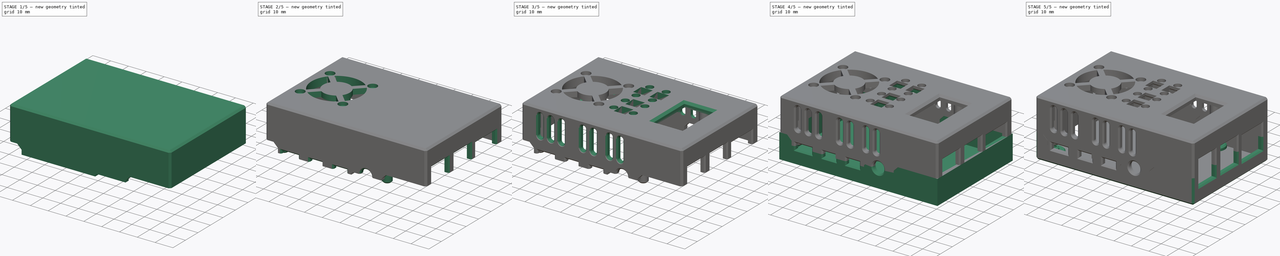
[diagram: build sequence overview — one tinted view per stage of 5, left to right]
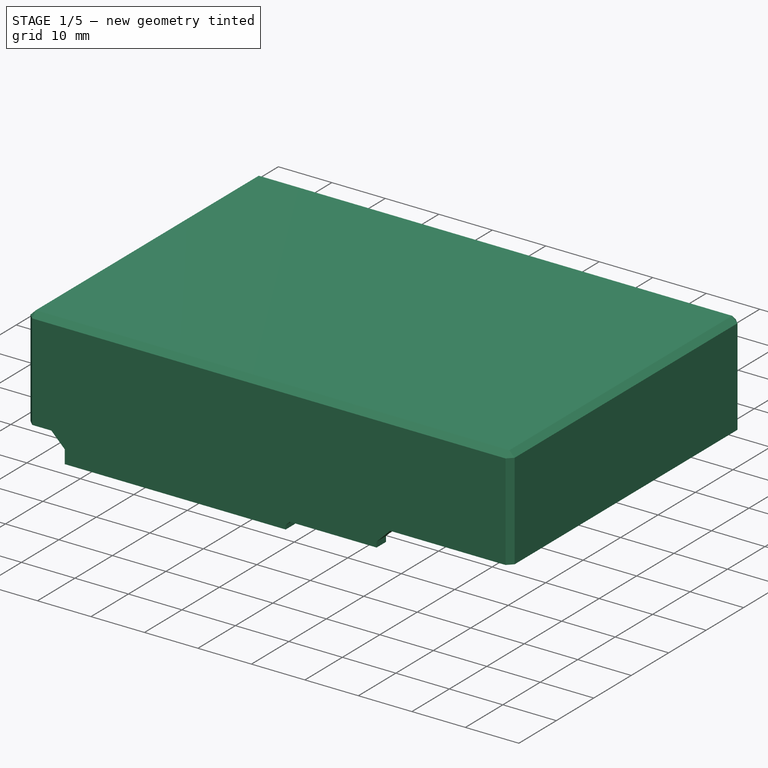
[diagram: stage 1 of 5 — iso view after this stage's code; geometry added in this stage tinted green]
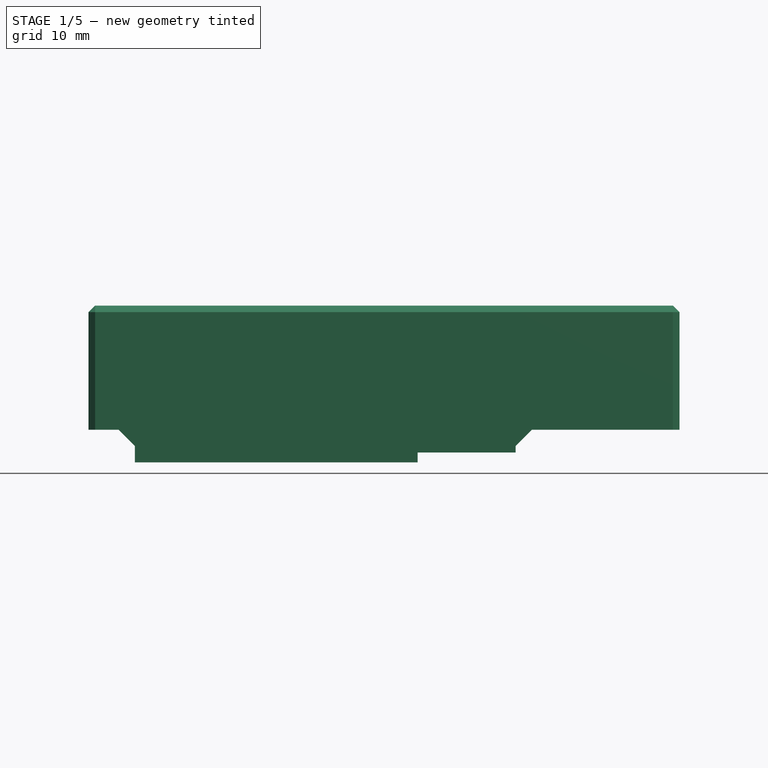
[diagram: stage 1 of 5 — front view after this stage's code; geometry added in this stage tinted green]
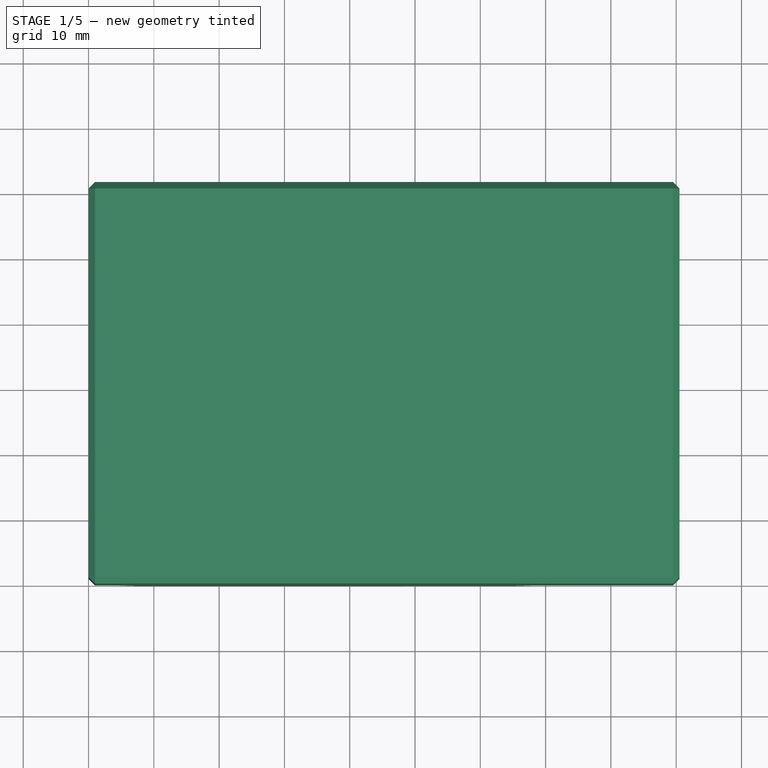
[diagram: stage 1 of 5 — top view after this stage's code; geometry added in this stage tinted green]
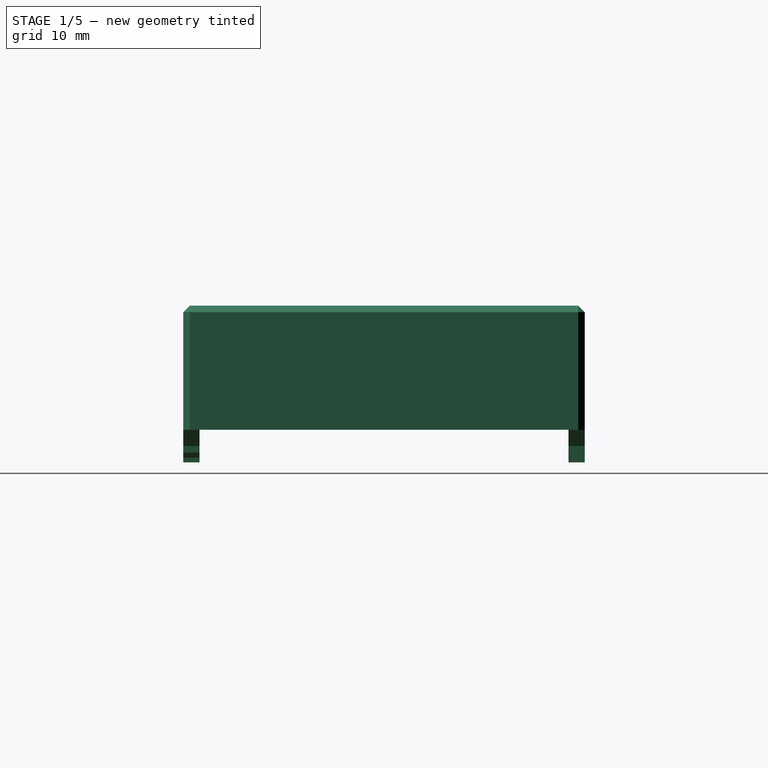
[diagram: stage 1 of 5 — right view after this stage's code; geometry added in this stage tinted green]
FCSTD DOCUMENT  (FreeCAD 0.20R)
Label: lbb-case
License: All rights reserved
LicenseURL: http://en.wikipedia.org/wiki/All_rights_reserved
objects: Sketcher::SketchObject×45, PartDesign::Pocket×23, PartDesign::Pad×20, PartDesign::Chamfer×18, PartDesign::Body×3, App::Part×1, Spreadsheet::Sheet×1
note: 170 computed .brp shape members not serialized (recipe doc carries the construction recipe); baked Part::Feature solids carry a one-line shape summary decoded from their .brp

FEATURE [PartDesign::Body] Body002  label="Bottom"
  Group = -> [Sketch043,Pad022,Sketch,Pocket,Sketch044,Pad,Chamfer,Sketch045,Pad023,Chamfer001,Sketch046,Pocket001,Chamfer002,Sketch047,Pocket002,Chamfer003,Sketch048,Pocket003,Sketch049,Pocket004,Chamfer005,Chamfer006,Sketch050,Pad024,Chamfer007,Sketch051,Pad025,Chamfer008,Sketch052,Pocket005,Sketch053,Pocket006]
  Origin = -> Origin003
  Tip = -> Pocket006
FEATURE [Sketcher::SketchObject] Sketch064  label="T_box_full"
  AttachmentOffset = pos=(0,0,14) rot=(0,0,1;0rad)
  FullyConstrained = true
  MapMode = 5
  Placement = pos=(0,0,14) rot=(0,0,1;0rad)
  Support = -> [XY_Plane005]
  expr: .AttachmentOffset.Base.z = <<dim>>.cl_top_base
  expr: Constraints[10] = <<dim>>.box_length
  expr: Constraints[9] = <<dim>>.box_width
  sketch-geometry (4):
    g0: LineSegment StartX=0 StartY=0 StartZ=0 EndX=90.5 EndY=0 EndZ=0
    g1: LineSegment StartX=90.5 StartY=0 StartZ=0 EndX=90.5 EndY=61.5 EndZ=0
    g2: LineSegment StartX=90.5 StartY=61.5 StartZ=0 EndX=0 EndY=61.5 EndZ=0
    g3: LineSegment StartX=0 StartY=61.5 StartZ=0 EndX=0 EndY=0 EndZ=0
  constraints (11):
    c: Coincident(g0,g1)
    c: Coincident(g1,g2)
    c: Coincident(g2,g3)
    c: Coincident(g3,g0)
    c: Horizontal(g0)
    c: Horizontal(g2)
    c: Vertical(g1)
    c: Vertical(g3)
    c: Coincident(g-1,g0)
    c: DistanceY(g3,g3) = 61.5
    c: DistanceX(g2,g2) = 90.5
FEATURE [PartDesign::Pad] Pad026  label="T_box_full_pad"
  Direction = (0,0,1)
  Length = 19
  Length2 = 10
  Profile = -> Sketch064
  ReferenceAxis = -> Sketch064 [N_Axis]
  Type = 0
  expr: Length = <<dim>>.top_height
FEATURE [Sketcher::SketchObject] Sketch065  label="T_box_cave"
  AttachmentOffset = pos=(0,0,14) rot=(0,0,1;0rad)
  FullyConstrained = true
  MapMode = 5
  Placement = pos=(0,0,14) rot=(0,0,1;0rad)
  Support = -> [XY_Plane005]
  expr: .AttachmentOffset.Base.z = <<dim>>.cl_top_base
  expr: Constraints[10] = <<dim>>.box_width - <<dim>>.wall_width
  expr: Constraints[11] = <<dim>>.box_length - <<dim>>.wall_width
  expr: Constraints[8] = <<dim>>.wall_width
  expr: Constraints[9] = <<dim>>.wall_width
  sketch-geometry (4):
    g0: LineSegment StartX=2.5 StartY=2.5 StartZ=0 EndX=88 EndY=2.5 EndZ=0
    g1: LineSegment StartX=88 StartY=2.5 StartZ=0 EndX=88 EndY=59 EndZ=0
    g2: LineSegment StartX=88 StartY=59 StartZ=0 EndX=2.5 EndY=59 EndZ=0
    g3: LineSegment StartX=2.5 StartY=59 StartZ=0 EndX=2.5 EndY=2.5 EndZ=0
  constraints (12):
    c: Coincident(g0,g1)
    c: Coincident(g1,g2)
    c: Coincident(g2,g3)
    c: Coincident(g3,g0)
    c: Horizontal(g0)
    c: Horizontal(g2)
    c: Vertical(g1)
    c: Vertical(g3)
    c: DistanceX(g-1,g0) = 2.5
    c: DistanceY(g-1,g0) = 2.5
    c: DistanceY(g-1,g2) = 59
    c: DistanceX(g-1,g0) = 88
FEATURE [PartDesign::Pocket] Pocket007  label="T_box_cave_pad"
  BaseFeature = -> Pad026
  Direction = (0,0,-1)
  Length = 16.5
  Length2 = 5
  Profile = -> Sketch065
  ReferenceAxis = -> Sketch065 [N_Axis]
  Reversed = true
  Type = 0
  expr: Length = <<dim>>.top_height - <<dim>>.wall_width
FEATURE [Sketcher::SketchObject] Sketch066  label="T_audio4_interlocking"
  AttachmentOffset = pos=(0,0,11.5) rot=(0,0,1;0rad)
  FullyConstrained = true
  MapMode = 5
  Placement = pos=(0,0,11.5) rot=(0,0,1;0rad)
  Support = -> [XY_Plane005]
  expr: .AttachmentOffset.Base.z = <<dim>>.cl_top_audio4
  expr: Constraints[10] = <<dim>>.wall_width
  expr: Constraints[11] = <<dim>>.box_length - <<dim>>.box_interlocking_audio_right_width - <<dim>>.box_spacing + <<dim>>.box_interlocking_height / 2
  expr: Constraints[8] = <<dim>>.box_interlocking_audio_left_width + <<dim>>.box_spacing - <<dim>>.box_interlocking_height / 2
  sketch-geometry (4):
    g0: LineSegment StartX=4.6 StartY=2.5 StartZ=0 EndX=67.9 EndY=2.5 EndZ=0
    g1: LineSegment StartX=67.9 StartY=2.5 StartZ=0 EndX=67.9 EndY=0 EndZ=0
    g2: LineSegment StartX=67.9 StartY=0 StartZ=0 EndX=4.6 EndY=0 EndZ=0
    g3: LineSegment StartX=4.6 StartY=0 StartZ=0 EndX=4.6 EndY=2.5 EndZ=0
  constraints (12):
    c: Coincident(g0,g1)
    c: Coincident(g1,g2)
    c: Coincident(g2,g3)
    c: Coincident(g3,g0)
    c: Horizontal(g0)
    c: Horizontal(g2)
    c: Vertical(g1)
    c: Vertical(g3)
    c: DistanceX(g-1,g2) = 4.6
    c: Horizontal(g2,g-1)
    c: DistanceY(g1,g1) = 2.5
    c: DistanceX(g-1,g1) = 67.9
FEATURE [PartDesign::Pad] Pad027  label="T_audio4_interlocking_pad"
  BaseFeature = -> Pocket007
  Direction = (0,0,1)
  Length = 2.5
  Length2 = 10
  Profile = -> Sketch066
  ReferenceAxis = -> Sketch066 [N_Axis]
  Type = 0
  expr: Length = <<dim>>.box_interlocking_height / 2
FEATURE [PartDesign::Chamfer] Chamfer009  label="T_audio4_interlocking_chamfer"
  Angle = 45
  Base = -> Pad027 [Edge26,Edge37]
  BaseFeature = -> Pad027
  ChamferType = 0
  FlipDirection = false
  Size = 2.49
  Size2 = 1
  SupportTransform = false
  UseAllEdges = false
  expr: Size = <<dim>>.chamfer_interlocking
FEATURE [Sketcher::SketchObject] Sketch067  label="T_audio3_level"
  AttachmentOffset = pos=(0,0,10.5) rot=(0,0,1;0rad)
  FullyConstrained = true
  MapMode = 5
  Placement = pos=(0,0,10.5) rot=(0,0,1;0rad)
  Support = -> [XY_Plane005]
  expr: .AttachmentOffset.Base.z = <<dim>>.cl_top_audio3
  expr: Constraints[10] = Sketch066.Constraints[10]
  expr: Constraints[11] = <<dim>>.box_length - <<dim>>.box_interlocking_audio_right_width - <<dim>>.box_spacing
  expr: Constraints[8] = <<dim>>.box_interlocking_audio_left_width + <<dim>>.box_spacing
  sketch-geometry (4):
    g0: LineSegment StartX=7.1 StartY=2.5 StartZ=0 EndX=65.4 EndY=2.5 EndZ=0
    g1: LineSegment StartX=65.4 StartY=2.5 StartZ=0 EndX=65.4 EndY=0 EndZ=0
    g2: LineSegment StartX=65.4 StartY=0 StartZ=0 EndX=7.1 EndY=0 EndZ=0
    g3: LineSegment StartX=7.1 StartY=0 StartZ=0 EndX=7.1 EndY=2.5 EndZ=0
  constraints (12):
    c: Coincident(g0,g1)
    c: Coincident(g1,g2)
    c: Coincident(g2,g3)
    c: Coincident(g3,g0)
    c: Horizontal(g0)
    c: Horizontal(g2)
    c: Vertical(g1)
    c: Vertical(g3)
    c: DistanceX(g-1,g2) = 7.1
    c: Horizontal(g2,g-1)
    c: DistanceY(g1,g1) = 2.5
    c: DistanceX(g-1,g1) = 65.4
FEATURE [PartDesign::Pad] Pad028  label="T_audio3_level_pad"
  BaseFeature = -> Chamfer009
  Direction = (0,0,1)
  Length = 1
  Length2 = 10
  Profile = -> Sketch067
  ReferenceAxis = -> Sketch067 [N_Axis]
  Type = 0
  expr: Length = <<dim>>.audio3_level_height
FEATURE [Sketcher::SketchObject] Sketch068  label="T_audio2_level"
  AttachmentOffset = pos=(0,0,9.75) rot=(0,0,1;0rad)
  FullyConstrained = true
  MapMode = 5
  Placement = pos=(0,0,9.75) rot=(0,0,1;0rad)
  Support = -> [XY_Plane005]
  expr: .AttachmentOffset.Base.z = <<dim>>.cl_top_audio2
  expr: Constraints[10] = <<dim>>.box_interlocking_audio_left_width + <<dim>>.box_spacing
  expr: Constraints[11] = <<dim>>.box_length - <<dim>>.box_interlocking_audio_right_width - <<dim>>.audio_level_length - <<dim>>.box_spacing + <<dim>>.audio_level_height / 2
  expr: Constraints[8] = <<dim>>.wall_width
  sketch-geometry (4):
    g0: LineSegment StartX=7.1 StartY=0 StartZ=0 EndX=49.15 EndY=0 EndZ=0
    g1: LineSegment StartX=49.15 StartY=0 StartZ=0 EndX=49.15 EndY=2.5 EndZ=0
    g2: LineSegment StartX=49.15 StartY=2.5 StartZ=0 EndX=7.1 EndY=2.5 EndZ=0
    g3: LineSegment StartX=7.1 StartY=2.5 StartZ=0 EndX=7.1 EndY=0 EndZ=0
  constraints (12):
    c: Coincident(g0,g1)
    c: Coincident(g1,g2)
    c: Coincident(g2,g3)
    c: Coincident(g3,g0)
    c: Horizontal(g0)
    c: Horizontal(g2)
    c: Vertical(g1)
    c: Vertical(g3)
    c: DistanceY(g1,g1) = 2.5
    c: Horizontal(g-1,g0)
    c: DistanceX(g-1,g0) = 7.1
    c: DistanceX(g-1,g0) = 49.15
FEATURE [PartDesign::Pad] Pad029  label="T_audio2_level_pad"
  BaseFeature = -> Pad028
  Direction = (0,0,1)
  Length = 0.75
  Length2 = 10
  Profile = -> Sketch068
  ReferenceAxis = -> Sketch068 [N_Axis]
  Type = 0
  expr: Length = <<dim>>.audio_level_height / 2
FEATURE [PartDesign::Chamfer] Chamfer010  label="T_audio2_level_chamfer"
  Angle = 45
  Base = -> Pad029 [Edge68]
  BaseFeature = -> Pad029
  ChamferType = 0
  FlipDirection = false
  Size = 0.74
  Size2 = 1
  SupportTransform = false
  UseAllEdges = false
  expr: Size = <<dim>>.chamfer_audio
FEATURE [Sketcher::SketchObject] Sketch069  label="T_audio1_level"
  AttachmentOffset = pos=(0,0,9) rot=(0,0,1;0rad)
  FullyConstrained = true
  MapMode = 5
  Placement = pos=(0,0,9) rot=(0,0,1;0rad)
  Support = -> [XY_Plane005]
  expr: .AttachmentOffset.Base.z = <<dim>>.cl_top_audio1
  expr: Constraints[10] = <<dim>>.box_interlocking_audio_left_width + <<dim>>.box_spacing
  expr: Constraints[11] = <<dim>>.box_length - <<dim>>.box_interlocking_audio_right_width - <<dim>>.audio_level_length - <<dim>>.box_spacing
  expr: Constraints[8] = <<dim>>.wall_width
  sketch-geometry (4):
    g0: LineSegment StartX=7.1 StartY=0 StartZ=0 EndX=48.4 EndY=0 EndZ=0
    g1: LineSegment StartX=48.4 StartY=0 StartZ=0 EndX=48.4 EndY=2.5 EndZ=0
    g2: LineSegment StartX=48.4 StartY=2.5 StartZ=0 EndX=7.1 EndY=2.5 EndZ=0
    g3: LineSegment StartX=7.1 StartY=2.5 StartZ=0 EndX=7.1 EndY=0 EndZ=0
  constraints (12):
    c: Coincident(g0,g1)
    c: Coincident(g1,g2)
    c: Coincident(g2,g3)
    c: Coincident(g3,g0)
    c: Horizontal(g0)
    c: Horizontal(g2)
    c: Vertical(g1)
    c: Vertical(g3)
    c: DistanceY(g3,g3) = 2.5
    c: Horizontal(g-1,g0)
    c: DistanceX(g-1,g0) = 7.1
    c: DistanceX(g-1,g0) = 48.4
FEATURE [PartDesign::Pad] Pad030  label="T_audio1_level_pad"
  BaseFeature = -> Chamfer010
  Direction = (0,0,1)
  Length = 0.75
  Length2 = 10
  Profile = -> Sketch069
  ReferenceAxis = -> Sketch069 [N_Axis]
  Type = 0
  expr: Length = <<dim>>.audio_level_height / 2
FEATURE [Sketcher::SketchObject] Sketch070  label="T_empty_interlocking"
  AttachmentOffset = pos=(0,0,11.5) rot=(0,0,1;0rad)
  FullyConstrained = true
  MapMode = 5
  Placement = pos=(0,0,11.5) rot=(0,0,1;0rad)
  Support = -> [XY_Plane005]
  expr: .AttachmentOffset.Base.z = <<dim>>.cl_top_base - <<dim>>.box_interlocking_height / 2
  expr: Constraints[10] = <<dim>>.box_interlocking_empty_left_width + <<dim>>.box_spacing - <<dim>>.box_interlocking_height / 2
  expr: Constraints[11] = <<dim>>.box_length - <<dim>>.box_interlocking_empty_right_width - <<dim>>.box_spacing + <<dim>>.box_interlocking_height / 2
  expr: Constraints[8] = <<dim>>.wall_width
  expr: Constraints[9] = <<dim>>.box_width
  sketch-geometry (4):
    g0: LineSegment StartX=52.9 StartY=61.5 StartZ=0 EndX=12.6 EndY=61.5 EndZ=0
    g1: LineSegment StartX=12.6 StartY=61.5 StartZ=0 EndX=12.6 EndY=59 EndZ=0
    g2: LineSegment StartX=12.6 StartY=59 StartZ=0 EndX=52.9 EndY=59 EndZ=0
    g3: LineSegment StartX=52.9 StartY=59 StartZ=0 EndX=52.9 EndY=61.5 EndZ=0
  constraints (12):
    c: Coincident(g0,g1)
    c: Coincident(g1,g2)
    c: Coincident(g2,g3)
    c: Coincident(g3,g0)
    c: Horizontal(g0)
    c: Horizontal(g2)
    c: Vertical(g1)
    c: Vertical(g3)
    c: DistanceY(g1,g1) = 2.5
    c: DistanceY(g-1,g0) = 61.5
    c: DistanceX(g-1,g0) = 12.6
    c: DistanceX(g-1,g0) = 52.9
FEATURE [PartDesign::Pad] Pad031  label="T_empty_interlocking_pad"
  BaseFeature = -> Pad030
  Direction = (0,0,1)
  Length = 2.5
  Length2 = 10
  Profile = -> Sketch070
  ReferenceAxis = -> Sketch070 [N_Axis]
  Type = 0
  expr: Length = <<dim>>.box_interlocking_height / 2
FEATURE [PartDesign::Chamfer] Chamfer011  label="T_empty_interlocking_chamfer"
  Angle = 45
  Base = -> Pad031 [Edge91,Edge94]
  BaseFeature = -> Pad031
  ChamferType = 0
  FlipDirection = false
  Size = 2.49
  Size2 = 1
  SupportTransform = false
  UseAllEdges = false
  expr: Size = <<dim>>.chamfer_interlocking
FEATURE [Sketcher::SketchObject] Sketch071  label="T_empty_level"
  AttachmentOffset = pos=(0,0,9) rot=(0,0,1;0rad)
  FullyConstrained = true
  MapMode = 5
  Placement = pos=(0,0,9) rot=(0,0,1;0rad)
  Support = -> [XY_Plane005]
  expr: .AttachmentOffset.Base.z = <<dim>>.cl_top_base - <<dim>>.box_interlocking_height
  expr: Constraints[10] = <<dim>>.box_interlocking_empty_left_width + <<dim>>.box_spacing
  expr: Constraints[11] = <<dim>>.box_length - <<dim>>.box_interlocking_empty_right_width - <<dim>>.box_spacing
  expr: Constraints[8] = <<dim>>.wall_width
  expr: Constraints[9] = <<dim>>.box_width
  sketch-geometry (4):
    g0: LineSegment StartX=15.1 StartY=61.5 StartZ=0 EndX=50.4 EndY=61.5 EndZ=0
    g1: LineSegment StartX=50.4 StartY=61.5 StartZ=0 EndX=50.4 EndY=59 EndZ=0
    g2: LineSegment StartX=50.4 StartY=59 StartZ=0 EndX=15.1 EndY=59 EndZ=0
    g3: LineSegment StartX=15.1 StartY=59 StartZ=0 EndX=15.1 EndY=61.5 EndZ=0
  constraints (12):
    c: Coincident(g0,g1)
    c: Coincident(g1,g2)
    c: Coincident(g2,g3)
    c: Coincident(g3,g0)
    c: Horizontal(g0)
    c: Horizontal(g2)
    c: Vertical(g1)
    c: Vertical(g3)
    c: DistanceY(g1,g1) = 2.5
    c: DistanceY(g-1,g0) = 61.5
    c: DistanceX(g-1,g0) = 15.1
    c: DistanceX(g-1,g0) = 50.4
FEATURE [PartDesign::Pad] Pad032  label="T_empty_level_pad"
  BaseFeature = -> Chamfer011
  Direction = (0,0,1)
  Length = 2.5
  Length2 = 10
  Profile = -> Sketch071
  ReferenceAxis = -> Sketch071 [N_Axis]
  Type = 0
  expr: Length = <<dim>>.box_interlocking_height / 2
FEATURE [PartDesign::Chamfer] Chamfer012  label="T_body_chamfer"
  Angle = 45
  Base = -> Pad032 [Edge43,Edge48,Edge67,Edge42,Edge44,Edge39,Edge45,Edge40]
  BaseFeature = -> Pad032
  ChamferType = 0
  FlipDirection = false
  Size = 1
  Size2 = 1
  SupportTransform = false
  UseAllEdges = false
  expr: Size = <<dim>>.chamfer_body
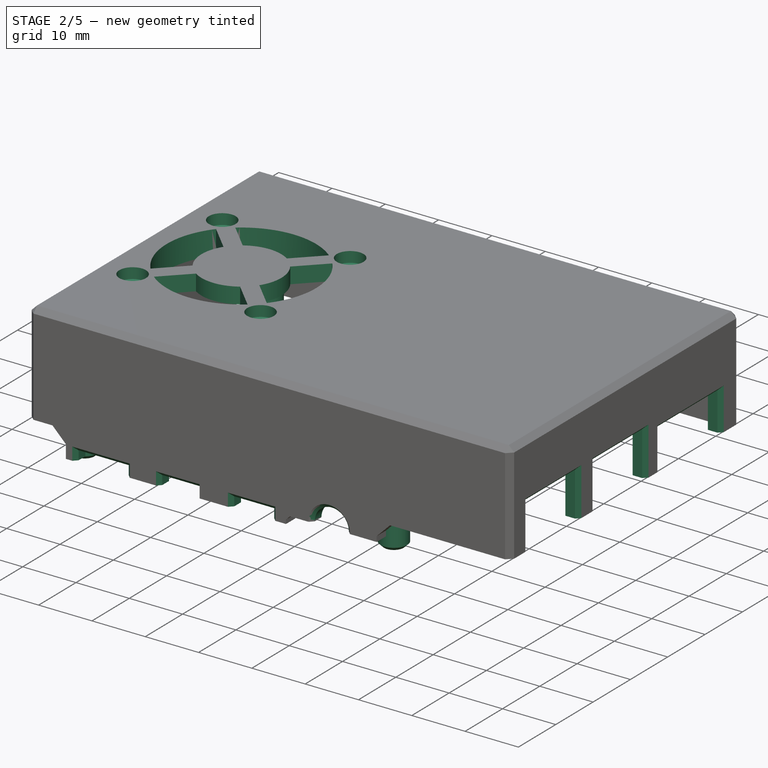
[diagram: stage 2 of 5 — iso view after this stage's code; geometry added in this stage tinted green]
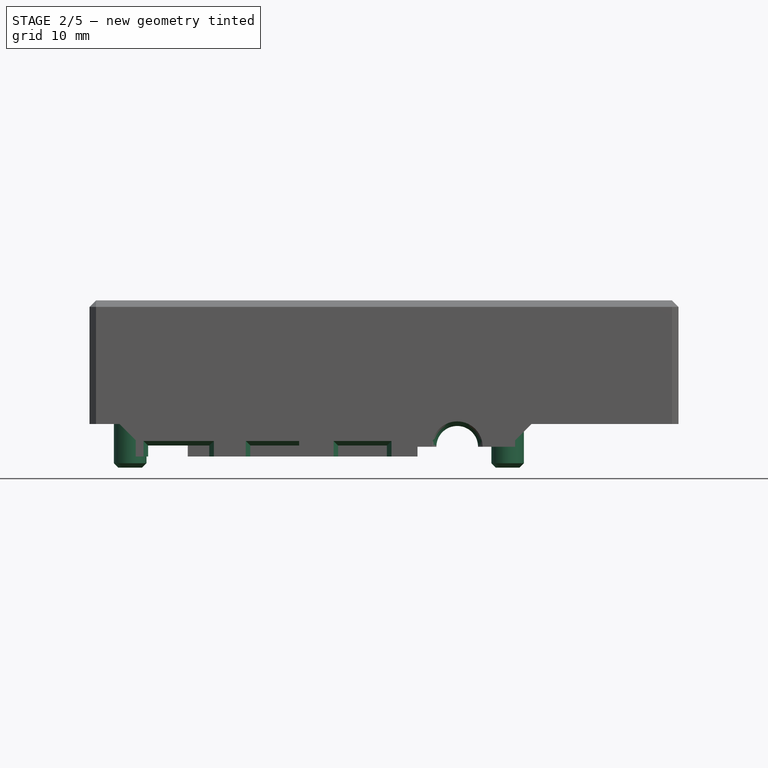
[diagram: stage 2 of 5 — front view after this stage's code; geometry added in this stage tinted green]
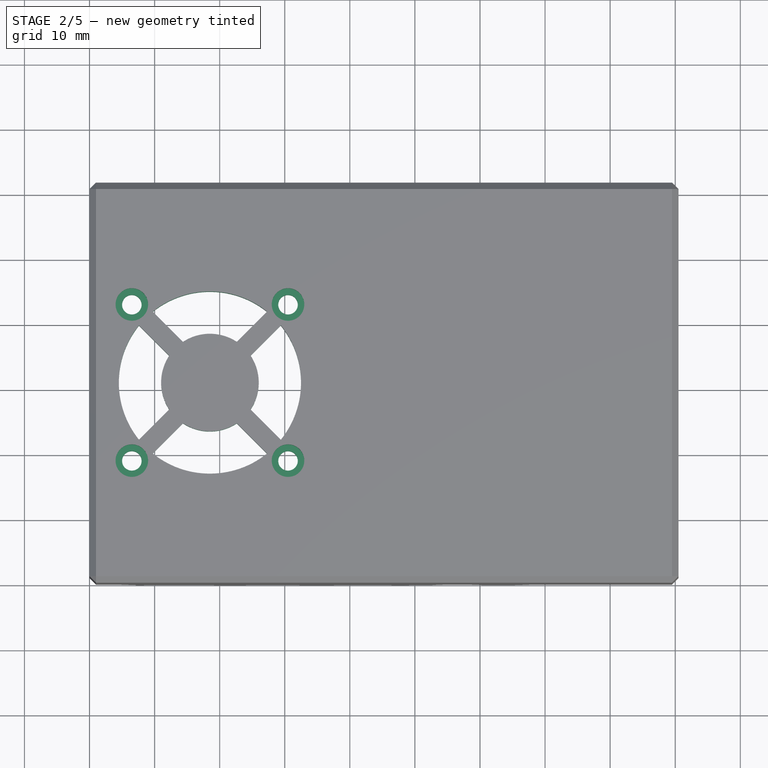
[diagram: stage 2 of 5 — top view after this stage's code; geometry added in this stage tinted green]
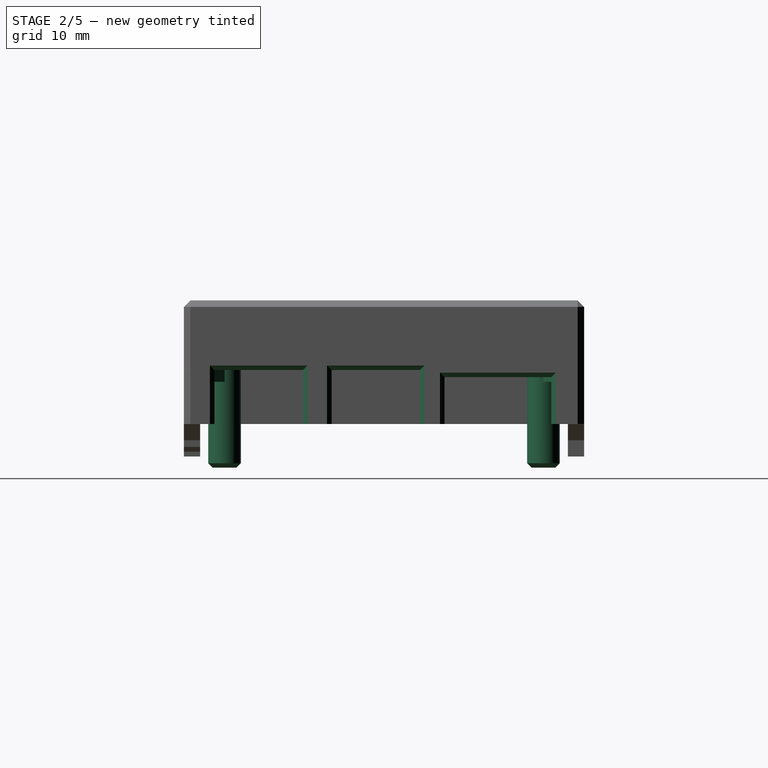
[diagram: stage 2 of 5 — right view after this stage's code; geometry added in this stage tinted green]
FEATURE [Sketcher::SketchObject] Sketch072  label="T_audio"
  FullyConstrained = true
  MapMode = 5
  Placement = pos=(0,0,0) rot=(1,0,0;1.5708rad)
  Support = -> [XZ_Plane005]
  expr: Constraints[24] = Sketch046.Constraints[24]
  expr: Constraints[25] = Sketch046.Constraints[25]
  expr: Constraints[26] = Sketch046.Constraints[26]
  expr: Constraints[27] = Sketch046.Constraints[27]
  expr: Constraints[28] = Sketch046.Constraints[28]
  expr: Constraints[29] = Sketch046.Constraints[29]
  expr: Constraints[30] = Sketch046.Constraints[30]
  expr: Constraints[31] = Sketch046.Constraints[31]
  expr: Constraints[32] = Sketch046.Constraints[32]
  expr: Constraints[33] = Sketch046.Constraints[33]
  expr: Constraints[34] = Sketch046.Constraints[34]
  expr: Constraints[35] = Sketch046.Constraints[35]
  expr: Constraints[36] = Sketch046.Constraints[36]
  expr: Constraints[37] = Sketch046.Constraints[37]
  expr: Constraints[38] = Sketch046.Constraints[38]
  sketch-geometry (13):
    g0: LineSegment StartX=9 StartY=10.7 StartZ=0 EndX=18.4 EndY=10.7 EndZ=0
    g1: LineSegment StartX=18.4 StartY=10.7 StartZ=0 EndX=18.4 EndY=7.3 EndZ=0
    g2: LineSegment StartX=18.4 StartY=7.3 StartZ=0 EndX=9 EndY=7.3 EndZ=0
    g3: LineSegment StartX=9 StartY=7.3 StartZ=0 EndX=9 EndY=10.7 EndZ=0
    g4: LineSegment StartX=24.7 StartY=10.7 StartZ=0 EndX=32.2 EndY=10.7 EndZ=0
    g5: LineSegment StartX=32.2 StartY=10.7 StartZ=0 EndX=32.2 EndY=7.3 EndZ=0
    g6: LineSegment StartX=32.2 StartY=7.3 StartZ=0 EndX=24.7 EndY=7.3 EndZ=0
    g7: LineSegment StartX=24.7 StartY=7.3 StartZ=0 EndX=24.7 EndY=10.7 EndZ=0
    g8: LineSegment StartX=38.2 StartY=10.7 StartZ=0 EndX=45.7 EndY=10.7 EndZ=0
    g9: LineSegment StartX=45.7 StartY=10.7 StartZ=0 EndX=45.7 EndY=7.3 EndZ=0
    g10: LineSegment StartX=45.7 StartY=7.3 StartZ=0 EndX=38.2 EndY=7.3 EndZ=0
    g11: LineSegment StartX=38.2 StartY=7.3 StartZ=0 EndX=38.2 EndY=10.7 EndZ=0
    g12: Circle CenterX=56.5 CenterY=10.5 CenterZ=0 NormalX=0 NormalY=0 NormalZ=1 AngleXU=0 Radius=3.2
  constraints (39):
    c: Coincident(g0,g1)
    c: Coincident(g1,g2)
    c: Coincident(g2,g3)
    c: Coincident(g3,g0)
    c: Horizontal(g0)
    c: Horizontal(g2)
    c: Vertical(g1)
    c: Vertical(g3)
    c: Coincident(g4,g5)
    c: Coincident(g5,g6)
    c: Coincident(g6,g7)
    c: Coincident(g7,g4)
    c: Horizontal(g4)
    c: Horizontal(g6)
    c: Vertical(g5)
    c: Vertical(g7)
    c: Coincident(g8,g9)
    c: Coincident(g9,g10)
    c: Coincident(g10,g11)
    c: Coincident(g11,g8)
    c: Horizontal(g8)
    c: Horizontal(g10)
    c: Vertical(g9)
    c: Vertical(g11)
    c: DistanceY(g3,g3) = 3.4
    c: DistanceY(g7,g7) = 3.4
    c: DistanceY(g11,g11) = 3.4
    c: Diameter(g12) = 6.4
    c: DistanceX(g2,g2) = 9.4
    c: DistanceX(g4,g4) = 7.5
    c: DistanceX(g8,g8) = 7.5
    c: DistanceX(g-1,g2) = 9
    c: DistanceX(g-1,g6) = 24.7
    c: DistanceX(g-1,g10) = 38.2
    c: DistanceX(g-1,g12) = 56.5
    c: DistanceY(g12) = 10.5
    c: DistanceY(g-1,g2) = 7.3
    c: DistanceY(g-1,g6) = 7.3
    c: DistanceY(g-1,g10) = 7.3
FEATURE [PartDesign::Pocket] Pocket008  label="T_audio_pocket"
  BaseFeature = -> Chamfer012
  Direction = (0,1,2e-16)
  Length = 2.5
  Length2 = 5
  Profile = -> Sketch072
  ReferenceAxis = -> Sketch072 [N_Axis]
  Type = 0
  expr: Length = <<dim>>.wall_width
FEATURE [PartDesign::Chamfer] Chamfer013  label="T_audio_pocket_chamfer"
  Angle = 45
  Base = -> Pocket008 [Edge192,Edge186,Edge179,Edge128,Edge124,Edge166,Edge120,Edge160,Edge112]
  BaseFeature = -> Pocket008
  ChamferType = 0
  FlipDirection = false
  Size = 0.7
  Size2 = 1
  SupportTransform = false
  UseAllEdges = false
  expr: Size = <<dim>>.champfer_plugs
FEATURE [Sketcher::SketchObject] Sketch073  label="T_rj45"
  AttachmentOffset = pos=(0,0,90.5) rot=(0,0,1;0rad)
  FullyConstrained = true
  MapMode = 5
  Placement = pos=(90.5,-2.01e-14,2.01e-14) rot=(0.57735,0.57735,0.57735;2.0944rad)
  Support = -> [YZ_Plane005]
  expr: .AttachmentOffset.Base.z = <<dim>>.cl_box_length
  expr: Constraints[24] = Sketch047.Constraints[24]
  expr: Constraints[25] = Sketch047.Constraints[25]
  expr: Constraints[26] = Sketch047.Constraints[26]
  expr: Constraints[27] = Sketch047.Constraints[27]
  expr: Constraints[28] = Sketch047.Constraints[28]
  expr: Constraints[29] = Sketch047.Constraints[29]
  expr: Constraints[30] = Sketch047.Constraints[30]
  expr: Constraints[31] = Sketch047.Constraints[31]
  expr: Constraints[32] = Sketch047.Constraints[32]
  expr: Constraints[33] = Sketch047.Constraints[33]
  expr: Constraints[34] = Sketch047.Constraints[34]
  expr: Constraints[35] = Sketch047.Constraints[35]
  sketch-geometry (12):
    g0: LineSegment StartX=4.7 StartY=22.3 StartZ=0 EndX=18.3 EndY=22.3 EndZ=0
    g1: LineSegment StartX=18.3 StartY=22.3 StartZ=0 EndX=18.3 EndY=7.9 EndZ=0
    g2: LineSegment StartX=18.3 StartY=7.9 StartZ=0 EndX=4.7 EndY=7.9 EndZ=0
    g3: LineSegment StartX=4.7 StartY=7.9 StartZ=0 EndX=4.7 EndY=22.3 EndZ=0
    g4: LineSegment StartX=22.7 StartY=22.3 StartZ=0 EndX=36.3 EndY=22.3 EndZ=0
    g5: LineSegment StartX=36.3 StartY=22.3 StartZ=0 EndX=36.3 EndY=7.9 EndZ=0
    g6: LineSegment StartX=36.3 StartY=7.9 StartZ=0 EndX=22.7 EndY=7.9 EndZ=0
    g7: LineSegment StartX=22.7 StartY=7.9 StartZ=0 EndX=22.7 EndY=22.3 EndZ=0
    g8: LineSegment StartX=40.05 StartY=21.2 StartZ=0 EndX=56.45 EndY=21.2 EndZ=0
    g9: LineSegment StartX=56.45 StartY=21.2 StartZ=0 EndX=56.45 EndY=7.3 EndZ=0
    g10: LineSegment StartX=56.45 StartY=7.3 StartZ=0 EndX=40.05 EndY=7.3 EndZ=0
    g11: LineSegment StartX=40.05 StartY=7.3 StartZ=0 EndX=40.05 EndY=21.2 EndZ=0
  constraints (36):
    c: Coincident(g0,g1)
    c: Coincident(g1,g2)
    c: Coincident(g2,g3)
    c: Coincident(g3,g0)
    c: Horizontal(g0)
    c: Horizontal(g2)
    c: Vertical(g1)
    c: Vertical(g3)
    c: Coincident(g4,g5)
    c: Coincident(g5,g6)
    c: Coincident(g6,g7)
    c: Coincident(g7,g4)
    c: Horizontal(g4)
    c: Horizontal(g6)
    c: Vertical(g5)
    c: Vertical(g7)
    c: Coincident(g8,g9)
    c: Coincident(g9,g10)
    c: Coincident(g10,g11)
    c: Coincident(g11,g8)
    c: Horizontal(g8)
    c: Horizontal(g10)
    c: Vertical(g9)
    c: Vertical(g11)
    c: DistanceY(g-1,g2) = 7.9
    c: DistanceY(g-1,g6) = 7.9
    c: DistanceY(g-1,g10) = 7.3
    c: DistanceX(g-1,g2) = 4.7
    c: DistanceX(g-1,g6) = 22.7
    c: DistanceX(g-1,g10) = 40.05
    c: DistanceX(g0,g0) = 13.6
    c: DistanceX(g4,g4) = 13.6
    c: DistanceX(g8,g8) = 16.4
    c: DistanceY(g3,g3) = 14.4
    c: DistanceY(g7,g7) = 14.4
    c: DistanceY(g11,g11) = 13.9
FEATURE [PartDesign::Pocket] Pocket009  label="T_rj45_pocket"
  BaseFeature = -> Chamfer013
  Direction = (-1,2e-16,-3e-16)
  Length = 2.5
  Length2 = 5
  Profile = -> Sketch073
  ReferenceAxis = -> Sketch073 [N_Axis]
  Type = 0
  expr: Length = <<dim>>.wall_width
FEATURE [PartDesign::Chamfer] Chamfer014  label="T_rj45_chamfer"
  Angle = 45
  Base = -> Pocket009 [Edge64,Edge65,Edge66,Edge68,Edge69,Edge70,Edge72,Edge73,Edge74]
  BaseFeature = -> Pocket009
  ChamferType = 0
  FlipDirection = false
  Size = 0.7
  Size2 = 1
  SupportTransform = false
  UseAllEdges = false
  expr: Size = <<dim>>.champfer_plugs
FEATURE [Sketcher::SketchObject] Sketch074  label="T_fan"
  AttachmentOffset = pos=(0,0,30.5) rot=(0,0,1;0rad)
  FullyConstrained = true
  MapMode = 5
  Placement = pos=(0,0,30.5) rot=(0,0,1;0rad)
  Support = -> [XY_Plane005]
  expr: .AttachmentOffset.Base.z = Spreadsheet.cl_top_inner
  expr: Constraints[10] = <<dim>>.fan_width
  expr: Constraints[11] = <<dim>>.box_width / 2
  expr: Constraints[12] = <<dim>>.wall_width + 1 + <<dim>>.fan_length / 2
  expr: Constraints[9] = <<dim>>.fan_length
  sketch-geometry (5):
    g0: LineSegment StartX=3.5 StartY=15.75 StartZ=0 EndX=33.5 EndY=15.75 EndZ=0
    g1: LineSegment StartX=33.5 StartY=15.75 StartZ=0 EndX=33.5 EndY=45.75 EndZ=0
    g2: LineSegment StartX=33.5 StartY=45.75 StartZ=0 EndX=3.5 EndY=45.75 EndZ=0
    g3: LineSegment StartX=3.5 StartY=45.75 StartZ=0 EndX=3.5 EndY=15.75 EndZ=0
    g4: GeomPoint X=18.5 Y=30.75 Z=0
  constraints (13):
    c: Coincident(g0,g1)
    c: Coincident(g1,g2)
    c: Coincident(g2,g3)
    c: Coincident(g3,g0)
    c: Horizontal(g0)
    c: Horizontal(g2)
    c: Vertical(g1)
    c: Vertical(g3)
    c: Symmetric(g0,g1,g4)
    c: DistanceX(g0,g0) = 30
    c: DistanceY(g3,g3) = 30
    c: DistanceY(g-1,g4) = 30.75
    c: DistanceX(g-1,g4) = 18.5
FEATURE [PartDesign::Pad] Pad033  label="T_fan_pad"
  BaseFeature = -> Chamfer014
  Direction = (0,0,1)
  Length = 2
  Length2 = 10
  Profile = -> Sketch074
  ReferenceAxis = -> Sketch074 [N_Axis]
  Reversed = true
  Type = 0
  expr: Length = Spreadsheet.fan_socket_height
FEATURE [Sketcher::SketchObject] Sketch075  label="T_fan_drills"
  AttachmentOffset = pos=(0,0,33) rot=(0,0,1;0rad)
  FullyConstrained = true
  MapMode = 5
  Placement = pos=(0,0,33) rot=(0,0,1;0rad)
  Support = -> [XY_Plane005]
  expr: .AttachmentOffset.Base.z = <<dim>>.cl_top_outer
  expr: Constraints[10] = Sketch074.Constraints[10]
  expr: Constraints[11] = Sketch074.Constraints[11]
  expr: Constraints[12] = Sketch074.Constraints[12]
  expr: Constraints[20] = <<dim>>.fan_dist_drill_x
  expr: Constraints[21] = <<dim>>.fan_dist_drill_y
  expr: Constraints[22] = <<dim>>.fan_drill_diam
  expr: Constraints[24] = <<dim>>.fan_diameter_outer
  expr: Constraints[9] = Sketch074.Constraints[9]
  sketch-geometry (10):
    g0: LineSegment StartX=3.5 StartY=15.75 StartZ=0 EndX=33.5 EndY=15.75 EndZ=0
    g1: LineSegment StartX=33.5 StartY=15.75 StartZ=0 EndX=33.5 EndY=45.75 EndZ=0
    g2: LineSegment StartX=33.5 StartY=45.75 StartZ=0 EndX=3.5 EndY=45.75 EndZ=0
    g3: LineSegment StartX=3.5 StartY=45.75 StartZ=0 EndX=3.5 EndY=15.75 EndZ=0
    g4: GeomPoint X=18.5 Y=30.75 Z=0
    g5: Circle CenterX=6.5 CenterY=42.75 CenterZ=0 NormalX=0 NormalY=0 NormalZ=1 AngleXU=0 Radius=1.5
    g6: Circle CenterX=30.5 CenterY=42.75 CenterZ=0 NormalX=0 NormalY=0 NormalZ=1 AngleXU=0 Radius=1.5
    g7: Circle CenterX=30.5 CenterY=18.75 CenterZ=0 NormalX=0 NormalY=0 NormalZ=1 AngleXU=0 Radius=1.5
    g8: Circle CenterX=6.5 CenterY=18.75 CenterZ=0 NormalX=0 NormalY=0 NormalZ=1 AngleXU=0 Radius=1.5
    g9: Circle CenterX=18.5 CenterY=30.75 CenterZ=0 NormalX=0 NormalY=0 NormalZ=1 AngleXU=0 Radius=14
  constraints (25):
    c: Coincident(g0,g1)
    c: Coincident(g1,g2)
    c: Coincident(g2,g3)
    c: Coincident(g3,g0)
    c: Horizontal(g0)
    c: Horizontal(g2)
    c: Vertical(g1)
    c: Vertical(g3)
    c: Symmetric(g0,g1,g4)
    c: DistanceX(g0,g0) = 30
    c: DistanceY(g3,g3) = 30
    c: DistanceY(g-1,g4) = 30.75
    c: DistanceX(g-1,g4) = 18.5
    c: Symmetric(g5,g7,g4)
    c: Symmetric(g8,g6,g4)
    c: Equal(g5,g6)
    c: Equal(g5,g7)
    c: Equal(g5,g8)
    c: Vertical(g5,g8)
    c: Horizontal(g5,g6)
    c: DistanceX(g5,g6) = 24
    c: DistanceY(g7,g6) = 24
    c: Diameter(g5) = 3
    c: Coincident(g9,g4)
    c: Diameter(g9) = 28
FEATURE [PartDesign::Pocket] Pocket010  label="T_fan_dills_pocket"
  BaseFeature = -> Pad033
  Direction = (0,0,-1)
  Length = 4.5
  Length2 = 5
  Profile = -> Sketch075
  ReferenceAxis = -> Sketch075 [N_Axis]
  Type = 0
  expr: Length = <<dim>>.wall_width + Spreadsheet.fan_socket_height
FEATURE [Sketcher::SketchObject] Sketch076  label="T_fan_sunk"
  AttachmentOffset = pos=(0,0,33) rot=(0,0,1;0rad)
  FullyConstrained = true
  MapMode = 5
  Placement = pos=(0,0,33) rot=(0,0,1;0rad)
  Support = -> [XY_Plane005]
  expr: .AttachmentOffset.Base.z = <<dim>>.cl_top_outer
  expr: Constraints[10] = Sketch075.Constraints[10]
  expr: Constraints[11] = Sketch075.Constraints[11]
  expr: Constraints[12] = Sketch075.Constraints[12]
  expr: Constraints[20] = Sketch075.Constraints[20]
  expr: Constraints[21] = Sketch075.Constraints[21]
  expr: Constraints[22] = Spreadsheet.sunk_case_diam
  expr: Constraints[9] = Sketch075.Constraints[9]
  sketch-geometry (9):
    g0: LineSegment StartX=3.5 StartY=15.75 StartZ=0 EndX=33.5 EndY=15.75 EndZ=0
    g1: LineSegment StartX=33.5 StartY=15.75 StartZ=0 EndX=33.5 EndY=45.75 EndZ=0
    g2: LineSegment StartX=33.5 StartY=45.75 StartZ=0 EndX=3.5 EndY=45.75 EndZ=0
    g3: LineSegment StartX=3.5 StartY=45.75 StartZ=0 EndX=3.5 EndY=15.75 EndZ=0
    g4: GeomPoint X=18.5 Y=30.75 Z=0
    g5: Circle CenterX=6.5 CenterY=42.75 CenterZ=0 NormalX=0 NormalY=0 NormalZ=1 AngleXU=0 Radius=2.5
    g6: Circle CenterX=30.5 CenterY=42.75 CenterZ=0 NormalX=0 NormalY=0 NormalZ=1 AngleXU=0 Radius=2.5
    g7: Circle CenterX=30.5 CenterY=18.75 CenterZ=0 NormalX=0 NormalY=0 NormalZ=1 AngleXU=0 Radius=2.5
    g8: Circle CenterX=6.5 CenterY=18.75 CenterZ=0 NormalX=0 NormalY=0 NormalZ=1 AngleXU=0 Radius=2.5
  constraints (23):
    c: Coincident(g0,g1)
    c: Coincident(g1,g2)
    c: Coincident(g2,g3)
    c: Coincident(g3,g0)
    c: Horizontal(g0)
    c: Horizontal(g2)
    c: Vertical(g1)
    c: Vertical(g3)
    c: Symmetric(g0,g1,g4)
    c: DistanceX(g0,g0) = 30
    c: DistanceY(g3,g3) = 30
    c: DistanceY(g-1,g4) = 30.75
    c: DistanceX(g-1,g4) = 18.5
    c: Symmetric(g5,g7,g4)
    c: Symmetric(g8,g6,g4)
    c: Equal(g5,g6)
    c: Equal(g5,g7)
    c: Equal(g5,g8)
    c: Vertical(g5,g8)
    c: Horizontal(g5,g6)
    c: DistanceX(g5,g6) = 24
    c: DistanceY(g7,g6) = 24
    c: Diameter(g5) = 5
FEATURE [PartDesign::Pocket] Pocket011  label="T_fan_sunk_pocket"
  BaseFeature = -> Pocket010
  Direction = (0,0,-1)
  Length = 2
  Length2 = 5
  Profile = -> Sketch076
  ReferenceAxis = -> Sketch076 [N_Axis]
  Type = 0
  expr: Length = Spreadsheet.sunk_case_height
FEATURE [Sketcher::SketchObject] Sketch077  label="T_fan_protect"
  AttachmentOffset = pos=(0,0,33) rot=(0,0,1;0rad)
  FullyConstrained = true
  MapMode = 5
  Placement = pos=(0,0,33) rot=(0,0,1;0rad)
  Support = -> [XY_Plane005]
  expr: .AttachmentOffset.Base.z = <<dim>>.cl_top_outer
  expr: Constraints[10] = Sketch075.Constraints[10]
  expr: Constraints[11] = Sketch075.Constraints[11]
  expr: Constraints[12] = Sketch075.Constraints[12]
  expr: Constraints[14] = Sketch075.Constraints[24]
  expr: Constraints[22] = <<dim>>.fan_diameter_outer
  expr: Constraints[27] = <<dim>>.fan_diameter_inner
  expr: Constraints[37] = <<dim>>.fan_protection_width / 2
  expr: Constraints[9] = Sketch075.Constraints[9]
  sketch-geometry (49):
    g0: LineSegment StartX=3.5 StartY=15.75 StartZ=0 EndX=33.5 EndY=15.75 EndZ=0
    g1: LineSegment StartX=33.5 StartY=15.75 StartZ=0 EndX=33.5 EndY=45.75 EndZ=0
    g2: LineSegment StartX=33.5 StartY=45.75 StartZ=0 EndX=3.5 EndY=45.75 EndZ=0
    g3: LineSegment StartX=3.5 StartY=45.75 StartZ=0 EndX=3.5 EndY=15.75 EndZ=0
    g4: GeomPoint X=18.5 Y=30.75 Z=0
    g5: Circle CenterX=18.5 CenterY=30.75 CenterZ=0 NormalX=0 NormalY=0 NormalZ=1 AngleXU=0 Radius=14
    g6: LineSegment StartX=33.5 StartY=45.75 StartZ=0 EndX=3.5 EndY=15.75 EndZ=0
    g7: LineSegment StartX=3.5 StartY=45.75 StartZ=0 EndX=33.5 EndY=15.75 EndZ=0
    g8: GeomPoint X=8.60051 Y=40.6495 Z=0
    g9: GeomPoint X=28.3995 Y=40.6495 Z=0
    g10: GeomPoint X=28.3995 Y=20.8505 Z=0
    g11: GeomPoint X=8.60051 Y=20.8505 Z=0
    g12: Circle CenterX=18.5 CenterY=30.75 CenterZ=0 NormalX=0 NormalY=0 NormalZ=1 AngleXU=0 Radius=7.5
    g13: LineSegment StartX=8.60051 StartY=20.8505 StartZ=0 EndX=9.66117 EndY=19.7898 EndZ=0
    g14: LineSegment StartX=8.60051 StartY=20.8505 StartZ=0 EndX=7.53984 EndY=21.9112 EndZ=0
    g15: LineSegment StartX=28.3995 StartY=20.8505 StartZ=0 EndX=29.4602 EndY=21.9112 EndZ=0
    g16: LineSegment StartX=28.3995 StartY=20.8505 StartZ=0 EndX=27.3388 EndY=19.7898 EndZ=0
    g17: LineSegment StartX=8.60051 StartY=40.6495 StartZ=0 EndX=9.66117 EndY=41.7102 EndZ=0
    g18: LineSegment StartX=8.60051 StartY=40.6495 StartZ=0 EndX=7.53984 EndY=39.5888 EndZ=0
    g19: LineSegment StartX=28.3995 StartY=40.6495 StartZ=0 EndX=27.3388 EndY=41.7102 EndZ=0
    g20: LineSegment StartX=28.3995 StartY=40.6495 StartZ=0 EndX=29.4602 EndY=39.5888 EndZ=0
    g21: LineSegment StartX=9.66117 StartY=41.7102 StartZ=0 EndX=29.4602 EndY=21.9112 EndZ=0
    g22: LineSegment StartX=7.53984 StartY=39.5888 StartZ=0 EndX=27.3388 EndY=19.7898 EndZ=0
    g23: LineSegment StartX=27.3388 StartY=41.7102 StartZ=0 EndX=7.53984 EndY=21.9112 EndZ=0
    g24: LineSegment StartX=9.66117 StartY=19.7898 StartZ=0 EndX=29.4602 EndY=39.5888 EndZ=0
    g25: GeomPoint X=12.2432 Y=26.6145 Z=0
    g26: GeomPoint X=14.3645 Y=24.4932 Z=0
    g27: GeomPoint X=22.6355 Y=24.4932 Z=0
    g28: GeomPoint X=24.7568 Y=26.6145 Z=0
    g29: GeomPoint X=24.7568 Y=34.8855 Z=0
    g30: GeomPoint X=22.6355 Y=37.0068 Z=0
    g31: GeomPoint X=14.3645 Y=37.0068 Z=0
    g32: GeomPoint X=12.2432 Y=34.8855 Z=0
    g33: ArcOfCircle CenterX=18.5 CenterY=30.75 CenterZ=0 NormalX=0 NormalY=0 NormalZ=1 AngleXU=0 Radius=7.5 StartAngle=2.55755 EndAngle=3.72563
    g34: ArcOfCircle CenterX=18.5 CenterY=30.75 CenterZ=0 NormalX=0 NormalY=0 NormalZ=1 AngleXU=0 Radius=7.5 StartAngle=0.986756 EndAngle=2.15484
    g35: ArcOfCircle CenterX=18.5 CenterY=30.75 CenterZ=0 NormalX=0 NormalY=0 NormalZ=1 AngleXU=0 Radius=7.5 StartAngle=5.69915 EndAngle=6.86723
    g36: ArcOfCircle CenterX=18.5 CenterY=30.75 CenterZ=0 NormalX=0 NormalY=0 NormalZ=1 AngleXU=0 Radius=7.5 StartAngle=4.12835 EndAngle=5.29643
    g37: LineSegment StartX=7.53984 StartY=21.9112 StartZ=0 EndX=9.66117 EndY=19.7898 EndZ=0
    g38: LineSegment StartX=9.66117 StartY=19.7898 StartZ=0 EndX=14.3645 EndY=24.4932 EndZ=0
    g39: LineSegment StartX=7.53984 StartY=21.9112 StartZ=0 EndX=12.2432 EndY=26.6145 EndZ=0
    g40: LineSegment StartX=29.4602 StartY=21.9112 StartZ=0 EndX=27.3388 EndY=19.7898 EndZ=0
    g41: LineSegment StartX=27.3388 StartY=19.7898 StartZ=0 EndX=22.6355 EndY=24.4932 EndZ=0
    g42: LineSegment StartX=29.4602 StartY=21.9112 StartZ=0 EndX=24.7568 EndY=26.6145 EndZ=0
    g43: LineSegment StartX=27.3388 StartY=41.7102 StartZ=0 EndX=22.6355 EndY=37.0068 EndZ=0
    g44: LineSegment StartX=27.3388 StartY=41.7102 StartZ=0 EndX=29.4602 EndY=39.5888 EndZ=0
    g45: LineSegment StartX=29.4602 StartY=39.5888 StartZ=0 EndX=24.7568 EndY=34.8855 EndZ=0
    g46: LineSegment StartX=9.66117 StartY=41.7102 StartZ=0 EndX=14.3645 EndY=37.0068 EndZ=0
    g47: LineSegment StartX=9.66117 StartY=41.7102 StartZ=0 EndX=7.53984 EndY=39.5888 EndZ=0
    g48: LineSegment StartX=7.53984 StartY=39.5888 StartZ=0 EndX=12.2432 EndY=34.8855 EndZ=0
  constraints (108):
    c: Coincident(g0,g1)
    c: Coincident(g1,g2)
    c: Coincident(g2,g3)
    c: Coincident(g3,g0)
    c: Horizontal(g0)
    c: Horizontal(g2)
    c: Vertical(g1)
    c: Vertical(g3)
    c: Symmetric(g0,g1,g4)
    c: DistanceX(g0,g0) = 30
    c: DistanceY(g3,g3) = 30
    c: DistanceY(g-1,g4) = 30.75
    c: DistanceX(g-1,g4) = 18.5
    c: Coincident(g5,g4)
    c: Diameter(g5) = 28
    c: Coincident(g6,g1)
    c: Coincident(g6,g0)
    c: Coincident(g7,g2)
    c: Coincident(g7,g0)
    c: PointOnObject(g8,g7)
    c: PointOnObject(g9,g6)
    c: PointOnObject(g10,g7)
    c: Distance(g11,g9) = 28
    c: Symmetric(g9,g11,g4)
    c: Horizontal(g8,g9)
    c: Vertical(g9,g10)
    c: Coincident(g12,g4)
    c: Diameter(g12) = 15
    c: Coincident(g13,g11)
    c: Coincident(g14,g11)
    c: Coincident(g15,g10)
    c: Coincident(g16,g10)
    c: Perpendicular(g15,g7)
    c: Perpendicular(g6,g13)
    c: Symmetric(g15,g16,g10)
    c: Symmetric(g14,g13,g11)
    c: Equal(g13,g16)
    c: Distance(g13) = 1.5
    c: Coincident(g17,g8)
    c: Coincident(g18,g8)
    c: Coincident(g19,g9)
    c: Coincident(g20,g9)
    c: Perpendicular(g19,g6)
    c: Perpendicular(g20,g6)
    c: Perpendicular(g17,g7)
    c: Perpendicular(g18,g7)
    c: Equal(g20,g19)
    c: Equal(g17,g18)
    c: Equal(g18,g13)
    c: Coincident(g21,g17)
    c: Coincident(g21,g15)
    c: Coincident(g22,g18)
    c: Coincident(g22,g16)
    c: Coincident(g23,g19)
    c: Coincident(g23,g14)
    c: Coincident(g24,g13)
    c: Coincident(g24,g20)
    c: Equal(g17,g19)
    c: PointOnObject(g32,g12)
    c: PointOnObject(g32,g22)
    c: PointOnObject(g31,g21)
    c: PointOnObject(g31,g12)
    c: PointOnObject(g30,g23)
    c: PointOnObject(g29,g12)
    c: PointOnObject(g29,g24)
    c: PointOnObject(g28,g12)
    c: PointOnObject(g28,g21)
    c: PointOnObject(g27,g22)
    c: PointOnObject(g27,g12)
    c: PointOnObject(g26,g12)
    c: PointOnObject(g26,g24)
    c: Coincident(g33,g4)
    c: Coincident(g33,g25)
    c: Coincident(g33,g32)
    c: Coincident(g34,g33)
    c: Coincident(g34,g31)
    c: Coincident(g34,g30)
    c: Coincident(g35,g33)
    c: Coincident(g35,g29)
    c: Coincident(g36,g33)
    c: Coincident(g36,g27)
    c: PointOnObject(g36,g24)
    c: Coincident(g14,g37)
    c: Coincident(g37,g13)
    c: Coincident(g37,g38)
    c: Coincident(g38,g36)
    c: Coincident(g37,g39)
    c: Coincident(g39,g33)
    c: Coincident(g15,g40)
    c: Coincident(g40,g16)
    c: Coincident(g40,g41)
    c: Coincident(g41,g36)
    c: Coincident(g40,g42)
    c: Coincident(g42,g35)
    c: Coincident(g19,g43)
    c: Coincident(g43,g34)
    c: Coincident(g43,g44)
    c: Coincident(g44,g20)
    c: Coincident(g44,g45)
    c: Coincident(g45,g35)
    c: Coincident(g17,g46)
    c: Coincident(g46,g34)
    c: Coincident(g46,g47)
    c: Coincident(g47,g18)
    c: Coincident(g47,g48)
    c: Coincident(g48,g33)
    c: Parallel(g21,g42)
    c: Parallel(g39,g23)
FEATURE [PartDesign::Pad] Pad034  label="T_fan_protect_pad"
  BaseFeature = -> Pocket011
  Direction = (0,0,1)
  Length = 3
  Length2 = 10
  Profile = -> Sketch077
  ReferenceAxis = -> Sketch077 [N_Axis]
  Reversed = true
  Type = 0
  expr: Length = <<dim>>.fan_protection_height
FEATURE [Sketcher::SketchObject] Sketch078  label="T_socket"
  AttachmentOffset = pos=(0,0,30.5) rot=(0,0,1;0rad)
  ExternalGeometry = -> [Pad034]
  FullyConstrained = true
  MapMode = 5
  Placement = pos=(0,0,30.5) rot=(0,0,1;0rad)
  Support = -> [XY_Plane005]
  expr: .AttachmentOffset.Base.z = <<dim>>.cl_top_inner
  expr: Constraints[10] = Sketch050.Constraints[10]
  expr: Constraints[11] = <<dim>>.socket3_diam
  expr: Constraints[7] = Sketch050.Constraints[7]
  expr: Constraints[8] = Sketch050.Constraints[8]
  expr: Constraints[9] = Sketch050.Constraints[9]
  sketch-geometry (4):
    g0: Circle CenterX=6.25 CenterY=55.25 CenterZ=0 NormalX=0 NormalY=0 NormalZ=1 AngleXU=0 Radius=2.5
    g1: Circle CenterX=6.25 CenterY=6.25 CenterZ=0 NormalX=0 NormalY=0 NormalZ=1 AngleXU=0 Radius=2.5
    g2: Circle CenterX=64.25 CenterY=55.25 CenterZ=0 NormalX=0 NormalY=0 NormalZ=1 AngleXU=0 Radius=2.5
    g3: Circle CenterX=64.25 CenterY=6.25 CenterZ=0 NormalX=0 NormalY=0 NormalZ=1 AngleXU=0 Radius=2.5
  constraints (12):
    c: Equal(g0,g2)
    c: Equal(g0,g3)
    c: Equal(g0,g1)
    c: Horizontal(g0,g2)
    c: Vertical(g0,g1)
    c: Vertical(g2,g3)
    c: Horizontal(g1,g3)
    c: DistanceX(g-1,g1) = 6.25
    c: DistanceY(g-1,g1) = 6.25
    c: DistanceX(g1,g3) = 58
    c: DistanceY(g1,g0) = 49
    c: Diameter(g0) = 5
FEATURE [PartDesign::Pad] Pad035  label="T_socket_pad"
  BaseFeature = -> Pad034
  Direction = (0,0,1)
  Length = 23.2
  Length2 = 10
  Profile = -> Sketch078
  ReferenceAxis = -> Sketch078 [N_Axis]
  Reversed = true
  Type = 0
  expr: Length = <<dim>>.socket3_height
FEATURE [Sketcher::SketchObject] Sketch079  label="T_socket_stabilizer"
  AttachmentOffset = pos=(0,0,30.5) rot=(0,0,1;0rad)
  ExternalGeometry = -> [Pad034]
  FullyConstrained = true
  MapMode = 5
  Placement = pos=(0,0,30.5) rot=(0,0,1;0rad)
  Support = -> [XY_Plane005]
  expr: .AttachmentOffset.Base.z = <<dim>>.cl_top_inner
  expr: Constraints[10] = Sketch078.Constraints[10]
  expr: Constraints[11] = Sketch078.Constraints[11]
  expr: Constraints[20] = <<dim>>.socket3_diam
  expr: Constraints[21] = <<dim>>.socket3_diam * 2
  expr: Constraints[22] = <<dim>>.socket3_diam / 2
  expr: Constraints[7] = Sketch078.Constraints[7]
  expr: Constraints[8] = Sketch078.Constraints[8]
  expr: Constraints[9] = Sketch078.Constraints[9]
  sketch-geometry (23):
    g0: Circle CenterX=6.25 CenterY=55.25 CenterZ=0 NormalX=0 NormalY=0 NormalZ=1 AngleXU=0 Radius=2.5
    g1: Circle CenterX=6.25 CenterY=6.25 CenterZ=0 NormalX=0 NormalY=0 NormalZ=1 AngleXU=0 Radius=2.5
    g2: Circle CenterX=64.25 CenterY=55.25 CenterZ=0 NormalX=0 NormalY=0 NormalZ=1 AngleXU=0 Radius=2.5
    g3: Circle CenterX=64.25 CenterY=6.25 CenterZ=0 NormalX=0 NormalY=0 NormalZ=1 AngleXU=0 Radius=2.5
    g4: LineSegment StartX=59.25 StartY=2.5 StartZ=0 EndX=61.75 EndY=6.25 EndZ=0
    g5: LineSegment StartX=61.75 StartY=6.25 StartZ=0 EndX=66.75 EndY=6.25 EndZ=0
    g6: LineSegment StartX=66.75 StartY=6.25 StartZ=0 EndX=69.25 EndY=2.5 EndZ=0
    g7: LineSegment StartX=69.25 StartY=2.5 StartZ=0 EndX=59.25 EndY=2.5 EndZ=0
    g8: LineSegment StartX=59.25 StartY=59 StartZ=0 EndX=69.25 EndY=59 EndZ=0
    g9: LineSegment StartX=69.25 StartY=59 StartZ=0 EndX=66.75 EndY=55.25 EndZ=0
    g10: LineSegment StartX=66.75 StartY=55.25 StartZ=0 EndX=61.75 EndY=55.25 EndZ=0
    g11: LineSegment StartX=61.75 StartY=55.25 StartZ=0 EndX=59.25 EndY=59 EndZ=0
    g12: LineSegment StartX=2.5 StartY=2.5 StartZ=0 EndX=8.01777 EndY=2.5 EndZ=0
    g13: LineSegment StartX=8.01777 StartY=2.5 StartZ=0 EndX=8.01777 EndY=4.48223 EndZ=0
    g14: LineSegment StartX=8.01777 StartY=4.48223 StartZ=0 EndX=4.48223 EndY=8.01777 EndZ=0
    g15: LineSegment StartX=4.48223 StartY=8.01777 StartZ=0 EndX=2.5 EndY=8.01777 EndZ=0
    g16: LineSegment StartX=2.5 StartY=8.01777 StartZ=0 EndX=2.5 EndY=2.5 EndZ=0
    g17: LineSegment StartX=2.5 StartY=2.5 StartZ=0 EndX=9.57107 EndY=9.57107 EndZ=0
    g18: LineSegment StartX=2.5 StartY=59 StartZ=0 EndX=8.01777 EndY=59 EndZ=0
    g19: LineSegment StartX=8.01777 StartY=59 StartZ=0 EndX=8.01777 EndY=57.0178 EndZ=0
    g20: LineSegment StartX=8.01777 StartY=57.0178 StartZ=0 EndX=4.48223 EndY=53.4822 EndZ=0
    g21: LineSegment StartX=4.48223 StartY=53.4822 StartZ=0 EndX=2.5 EndY=53.4822 EndZ=0
    g22: LineSegment StartX=2.5 StartY=53.4822 StartZ=0 EndX=2.5 EndY=59 EndZ=0
  constraints (63):
    c: Equal(g0,g2)
    c: Equal(g0,g3)
    c: Equal(g0,g1)
    c: Horizontal(g0,g2)
    c: Vertical(g0,g1)
    c: Vertical(g2,g3)
    c: Horizontal(g1,g3)
    c: DistanceX(g-1,g1) = 6.25
    c: DistanceY(g-1,g1) = 6.25
    c: DistanceX(g1,g3) = 58
    c: DistanceY(g1,g0) = 49
    c: Diameter(g0) = 5
    c: Coincident(g4,g5)
    c: Horizontal(g5)
    c: Coincident(g5,g6)
    c: Coincident(g6,g7)
    c: Horizontal(g7)
    c: Coincident(g7,g4)
    c: Symmetric(g4,g5,g3)
    c: Horizontal(g4,g-6)
    c: DistanceX(g5,g5) = 5
    c: DistanceX(g7,g7) = 10
    c: DistanceX(g5,g6) = 2.5
    c: Coincident(g8,g9)
    c: Coincident(g9,g10)
    c: Horizontal(g10)
    c: Coincident(g10,g11)
    c: Coincident(g11,g8)
    c: Horizontal(g8)
    c: Horizontal(g8,g-5)
    c: Vertical(g4,g8)
    c: Vertical(g10,g4)
    c: Vertical(g9,g5)
    c: Vertical(g8,g6)
    c: Equal(g4,g11)
    c: Coincident(g12,g-6)
    c: Horizontal(g12)
    c: Coincident(g12,g13)
    c: PointOnObject(g13,g1)
    c: Coincident(g13,g14)
    c: Coincident(g14,g15)
    c: Coincident(g15,g16)
    c: Coincident(g16,g12)
    c: Vertical(g16)
    c: Symmetric(g13,g14,g1)
    c: Coincident(g17,g12)
    c: Symmetric(g12,g15,g17)
    c: Parallel(g15,g12)
    c: Parallel(g13,g16)
    c: Coincident(g18,g-5)
    c: Coincident(g19,g20)
    c: Coincident(g20,g21)
    c: Horizontal(g21)
    c: Coincident(g21,g22)
    c: Vertical(g22)
    c: Coincident(g22,g-5)
    c: Vertical(g19)
    c: Coincident(g18,g19)
    c: Symmetric(g20,g19,g0)
    c: Equal(g15,g21)
    c: Horizontal(g18)
    c: Equal(g19,g13)
    c: Distance(g17) = 10
FEATURE [PartDesign::Pad] Pad036  label="T_socket_stabilizer_pad"
  BaseFeature = -> Pad035
  Direction = (0,0,1)
  Length = 10
  Length2 = 10
  Profile = -> Sketch079
  ReferenceAxis = -> Sketch079 [N_Axis]
  Reversed = true
  Type = 0
FEATURE [Sketcher::SketchObject] Sketch080  label="T_socket_drill"
  AttachmentOffset = pos=(0,0,7.3) rot=(0,0,1;0rad)
  ExternalGeometry = -> [Pad034]
  FullyConstrained = true
  MapMode = 5
  Placement = pos=(0,0,7.3) rot=(0,0,1;0rad)
  Support = -> [XY_Plane005]
  expr: .AttachmentOffset.Base.z = <<dim>>.cl_top_inner - <<dim>>.socket3_height
  expr: Constraints[10] = Sketch078.Constraints[10]
  expr: Constraints[11] = <<dim>>.socket3_drill_diam
  expr: Constraints[7] = Sketch078.Constraints[7]
  expr: Constraints[8] = Sketch078.Constraints[8]
  expr: Constraints[9] = Sketch078.Constraints[9]
  sketch-geometry (4):
    g0: Circle CenterX=6.25 CenterY=55.25 CenterZ=0 NormalX=0 NormalY=0 NormalZ=1 AngleXU=0 Radius=1.15
    g1: Circle CenterX=6.25 CenterY=6.25 CenterZ=0 NormalX=0 NormalY=0 NormalZ=1 AngleXU=0 Radius=1.15
    g2: Circle CenterX=64.25 CenterY=55.25 CenterZ=0 NormalX=0 NormalY=0 NormalZ=1 AngleXU=0 Radius=1.15
    g3: Circle CenterX=64.25 CenterY=6.25 CenterZ=0 NormalX=0 NormalY=0 NormalZ=1 AngleXU=0 Radius=1.15
  constraints (12):
    c: Equal(g0,g2)
    c: Equal(g0,g3)
    c: Equal(g0,g1)
    c: Horizontal(g0,g2)
    c: Vertical(g0,g1)
    c: Vertical(g2,g3)
    c: Horizontal(g1,g3)
    c: DistanceX(g-1,g1) = 6.25
    c: DistanceY(g-1,g1) = 6.25
    c: DistanceX(g1,g3) = 58
    c: DistanceY(g1,g0) = 49
    c: Diameter(g0) = 2.3
FEATURE [PartDesign::Pocket] Pocket012  label="T_socket_drill_pocket"
  BaseFeature = -> Pad036
  Direction = (0,0,-1)
  Length = 23.2
  Length2 = 5
  Profile = -> Sketch080
  ReferenceAxis = -> Sketch080 [N_Axis]
  Reversed = true
  Type = 0
  expr: Length = <<dim>>.socket3_height
FEATURE [PartDesign::Chamfer] Chamfer015  label="T_socket_drill_chamfer"
  Angle = 45
  Base = -> Pocket012 [Edge266,Edge273,Edge271,Edge269]
  BaseFeature = -> Pocket012
  ChamferType = 0
  FlipDirection = false
  Size = 0.675
  Size2 = 1
  SupportTransform = false
  UseAllEdges = false
  expr: Size = <<dim>>.socket_chamfer
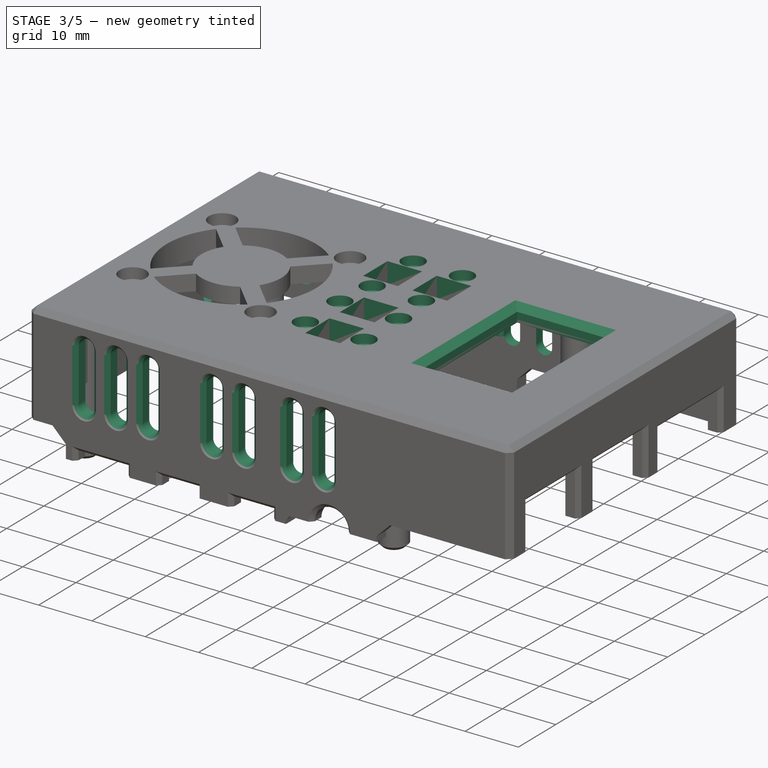
[diagram: stage 3 of 5 — iso view after this stage's code; geometry added in this stage tinted green]
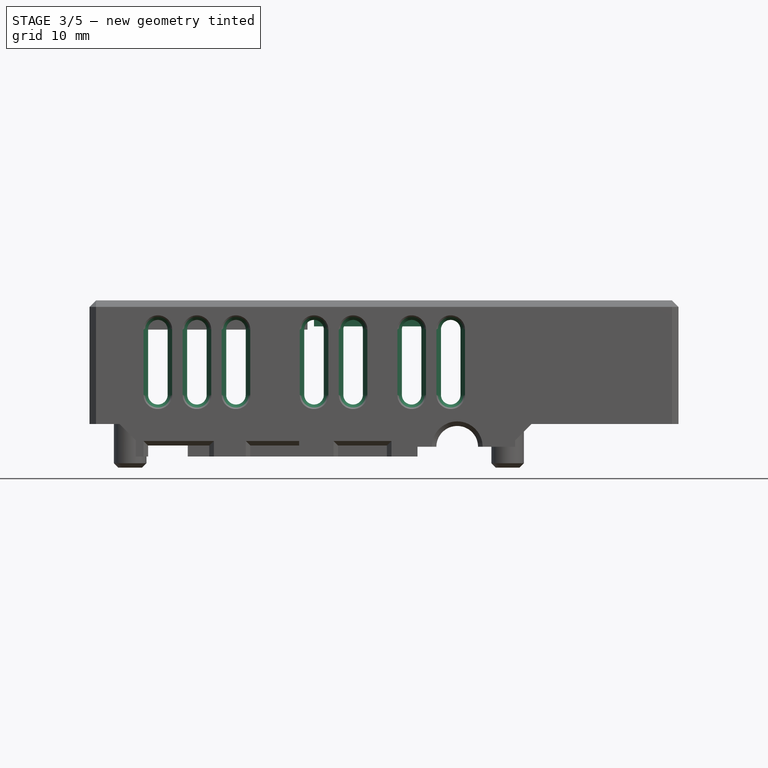
[diagram: stage 3 of 5 — front view after this stage's code; geometry added in this stage tinted green]
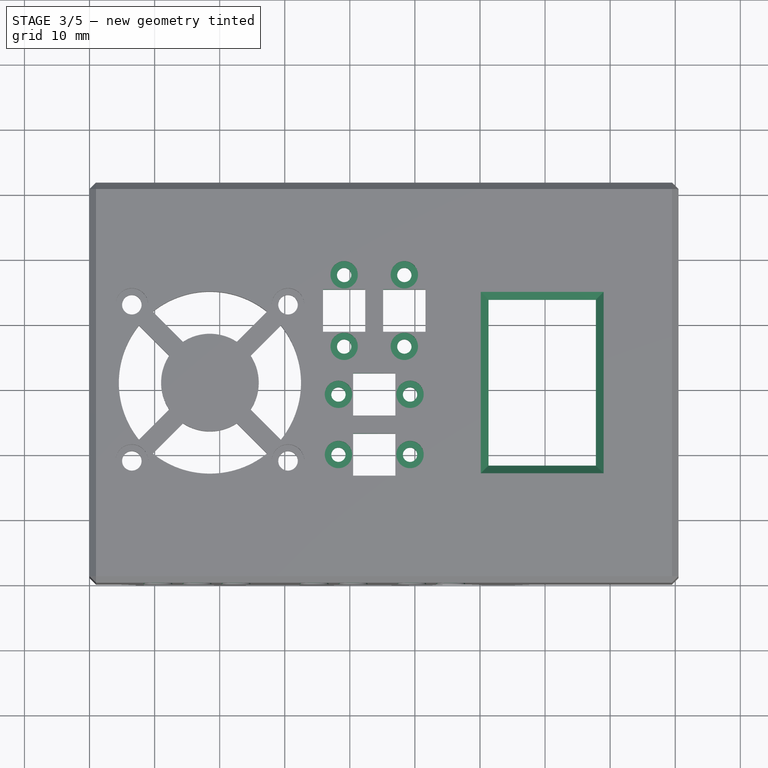
[diagram: stage 3 of 5 — top view after this stage's code; geometry added in this stage tinted green]
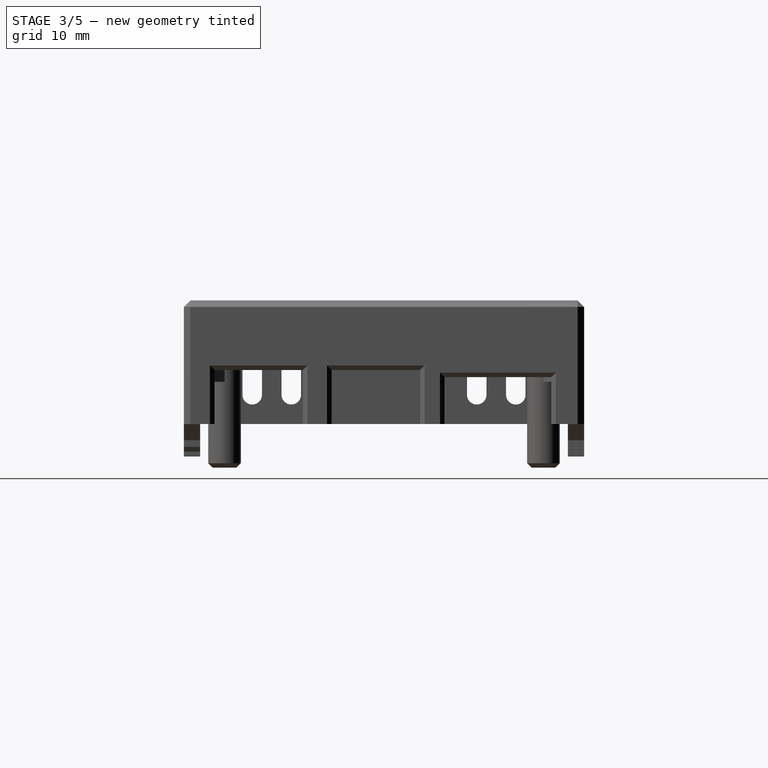
[diagram: stage 3 of 5 — right view after this stage's code; geometry added in this stage tinted green]
FEATURE [Sketcher::SketchObject] Sketch081  label="T_cooling_audio"
  FullyConstrained = true
  MapMode = 5
  Placement = pos=(0,0,0) rot=(1,0,0;1.5708rad)
  Support = -> [XZ_Plane005]
  expr: Constraints[17] = <<dim>>.cooling_dist
  expr: Constraints[47] = <<dim>>.cooling_dist
  expr: Constraints[48] = 3 * <<dim>>.cooling_dist
  expr: Constraints[49] = <<dim>>.cooling_dist
  expr: Constraints[68] = 2 * <<dim>>.cooling_dist
  expr: Constraints[69] = <<dim>>.cooling_dist
  expr: Constraints[6] = <<dim>>.cooling_width
  expr: Constraints[7] = <<dim>>.cooling_dist * 3
  expr: Constraints[8] = <<dim>>.bottom_height + <<dim>>.box_interlocking_height + 1.5 * <<dim>>.cooling_dist
  expr: Constraints[9] = <<dim>>.bottom_height + <<dim>>.box_interlocking_height + <<dim>>.top_height - 1.5 * <<dim>>.cooling_dist
  sketch-geometry (28):
    g0: ArcOfCircle CenterX=10.5 CenterY=28.5 CenterZ=0 NormalX=0 NormalY=0 NormalZ=1 AngleXU=0 Radius=1.5 StartAngle=-1.8e-15 EndAngle=3.14159
    g1: ArcOfCircle CenterX=10.5 CenterY=18.5 CenterZ=0 NormalX=0 NormalY=0 NormalZ=1 AngleXU=0 Radius=1.5 StartAngle=3.14159 EndAngle=6.28319
    g2: LineSegment StartX=9 StartY=28.5 StartZ=0 EndX=9 EndY=18.5 EndZ=0
    g3: LineSegment StartX=12 StartY=18.5 StartZ=0 EndX=12 EndY=28.5 EndZ=0
    g4: ArcOfCircle CenterX=16.5 CenterY=28.5 CenterZ=0 NormalX=0 NormalY=0 NormalZ=1 AngleXU=0 Radius=1.5 StartAngle=2e-16 EndAngle=3.14159
    g5: ArcOfCircle CenterX=16.5 CenterY=18.5 CenterZ=0 NormalX=0 NormalY=0 NormalZ=1 AngleXU=0 Radius=1.5 StartAngle=3.14159 EndAngle=6.28319
    g6: LineSegment StartX=15 StartY=28.5 StartZ=0 EndX=15 EndY=18.5 EndZ=0
    g7: LineSegment StartX=18 StartY=18.5 StartZ=0 EndX=18 EndY=28.5 EndZ=0
    g8: ArcOfCircle CenterX=22.5 CenterY=28.5 CenterZ=0 NormalX=0 NormalY=0 NormalZ=1 AngleXU=0 Radius=1.5 StartAngle=-9e-16 EndAngle=3.14159
    g9: ArcOfCircle CenterX=22.5 CenterY=18.5 CenterZ=0 NormalX=0 NormalY=0 NormalZ=1 AngleXU=0 Radius=1.5 StartAngle=3.14159 EndAngle=6.28319
    g10: LineSegment StartX=21 StartY=28.5 StartZ=0 EndX=21 EndY=18.5 EndZ=0
    g11: LineSegment StartX=24 StartY=18.5 StartZ=0 EndX=24 EndY=28.5 EndZ=0
    g12: ArcOfCircle CenterX=34.5 CenterY=28.5 CenterZ=0 NormalX=0 NormalY=0 NormalZ=1 AngleXU=0 Radius=1.5 StartAngle=-9e-16 EndAngle=3.14159
    g13: ArcOfCircle CenterX=34.5 CenterY=18.5 CenterZ=0 NormalX=0 NormalY=0 NormalZ=1 AngleXU=0 Radius=1.5 StartAngle=3.14159 EndAngle=6.28319
    g14: LineSegment StartX=33 StartY=28.5 StartZ=0 EndX=33 EndY=18.5 EndZ=0
    g15: LineSegment StartX=36 StartY=18.5 StartZ=0 EndX=36 EndY=28.5 EndZ=0
    g16: ArcOfCircle CenterX=40.5 CenterY=28.5 CenterZ=0 NormalX=0 NormalY=0 NormalZ=1 AngleXU=0 Radius=1.5 StartAngle=2e-16 EndAngle=3.14159
    g17: ArcOfCircle CenterX=40.5 CenterY=18.5 CenterZ=0 NormalX=0 NormalY=0 NormalZ=1 AngleXU=0 Radius=1.5 StartAngle=3.14159 EndAngle=6.28319
    g18: LineSegment StartX=39 StartY=28.5 StartZ=0 EndX=39 EndY=18.5 EndZ=0
    g19: LineSegment StartX=42 StartY=18.5 StartZ=0 EndX=42 EndY=28.5 EndZ=0
    g20: ArcOfCircle CenterX=49.5 CenterY=28.5 CenterZ=0 NormalX=0 NormalY=0 NormalZ=1 AngleXU=0 Radius=1.5 StartAngle=7e-16 EndAngle=3.14159
    g21: ArcOfCircle CenterX=49.5 CenterY=18.5 CenterZ=0 NormalX=0 NormalY=0 NormalZ=1 AngleXU=0 Radius=1.5 StartAngle=3.14159 EndAngle=6.28319
    g22: LineSegment StartX=48 StartY=28.5 StartZ=0 EndX=48 EndY=18.5 EndZ=0
    g23: LineSegment StartX=51 StartY=18.5 StartZ=0 EndX=51 EndY=28.5 EndZ=0
    g24: ArcOfCircle CenterX=55.5 CenterY=28.5 CenterZ=0 NormalX=0 NormalY=0 NormalZ=1 AngleXU=0 Radius=1.5 StartAngle=7e-16 EndAngle=3.14159
    g25: ArcOfCircle CenterX=55.5 CenterY=18.5 CenterZ=0 NormalX=0 NormalY=0 NormalZ=1 AngleXU=0 Radius=1.5 StartAngle=3.14159 EndAngle=6.28319
    g26: LineSegment StartX=54 StartY=28.5 StartZ=0 EndX=54 EndY=18.5 EndZ=0
    g27: LineSegment StartX=57 StartY=18.5 StartZ=0 EndX=57 EndY=28.5 EndZ=0
  constraints (70):
    c: Tangent(g0,g2) = -1.5708
    c: Tangent(g2,g1) = -1.5708
    c: Tangent(g1,g3) = -1.5708
    c: Tangent(g3,g0) = -1.5708
    c: Equal(g0,g1)
    c: Vertical(g2)
    c: DistanceX(g0,g0) = 3
    c: DistanceX(g-1,g1) = 9
    c: DistanceY(g-1,g1) = 18.5
    c: DistanceY(g-1,g0) = 28.5
    c: Tangent(g4,g6) = -1.5708
    c: Tangent(g6,g5) = -1.5708
    c: Tangent(g5,g7) = -1.5708
    c: Tangent(g7,g4) = -1.5708
    c: Equal(g4,g5)
    c: Vertical(g6)
    c: Equal(g0,g4) = 3
    c: DistanceX(g1,g5) = 3
    c: Horizontal(g1,g5)
    c: Horizontal(g0,g4)
    c: Tangent(g8,g10) = -1.5708
    c: Tangent(g10,g9) = -1.5708
    c: Tangent(g9,g11) = -1.5708
    c: Tangent(g11,g8) = -1.5708
    c: Equal(g8,g9)
    c: Vertical(g10)
    c: Tangent(g12,g14) = -1.5708
    c: Tangent(g14,g13) = -1.5708
    c: Tangent(g13,g15) = -1.5708
    c: Tangent(g15,g12) = -1.5708
    c: Equal(g12,g13)
    c: Vertical(g14)
    c: Tangent(g16,g18) = -1.5708
    c: Tangent(g18,g17) = -1.5708
    c: Tangent(g17,g19) = -1.5708
    c: Tangent(g19,g16) = -1.5708
    c: Equal(g16,g17)
    c: Vertical(g18)
    c: Horizontal(g5,g9)
    c: Horizontal(g9,g13)
    c: Horizontal(g13,g17)
    c: Horizontal(g4,g8)
    c: Horizontal(g8,g12)
    c: Horizontal(g12,g16)
    c: Equal(g4,g8)
    c: Equal(g8,g12)
    c: Equal(g12,g16)
    c: DistanceX(g5,g9) = 3
    c: DistanceX(g9,g13) = 9
    c: DistanceX(g13,g17) = 3
    c: Tangent(g20,g22) = -1.5708
    c: Tangent(g22,g21) = -1.5708
    c: Tangent(g21,g23) = -1.5708
    c: Tangent(g23,g20) = -1.5708
    c: Equal(g20,g21)
    c: Vertical(g22)
    c: Tangent(g24,g26) = -1.5708
    c: Tangent(g26,g25) = -1.5708
    c: Tangent(g25,g27) = -1.5708
    c: Tangent(g27,g24) = -1.5708
    c: Equal(g24,g25)
    c: Vertical(g26)
    c: Horizontal(g16,g20)
    c: Horizontal(g16,g24)
    c: Equal(g16,g20)
    c: Equal(g16,g24)
    c: Horizontal(g17,g21)
    c: Horizontal(g17,g25)
    c: DistanceX(g17,g21) = 6
    c: DistanceX(g21,g25) = 3
FEATURE [PartDesign::Pocket] Pocket013  label="T_cooling_audio_pocket"
  BaseFeature = -> Chamfer015
  Direction = (0,1,2e-16)
  Length = 2.5
  Length2 = 5
  Profile = -> Sketch081
  ReferenceAxis = -> Sketch081 [N_Axis]
  Type = 0
  expr: Length = <<dim>>.wall_width
FEATURE [Sketcher::SketchObject] Sketch082  label="T_cooling_empty"
  AttachmentOffset = pos=(0,0,-61.5) rot=(0,0,1;0rad)
  FullyConstrained = true
  MapMode = 5
  Placement = pos=(0,61.5,1.37e-14) rot=(1,0,0;1.5708rad)
  Support = -> [XZ_Plane005]
  expr: .AttachmentOffset.Base.z = -<<dim>>.box_width
  expr: Constraints[17] = Sketch081.Constraints[17]
  expr: Constraints[47] = Sketch081.Constraints[47]
  expr: Constraints[48] = Sketch081.Constraints[48]
  expr: Constraints[49] = Sketch081.Constraints[49]
  expr: Constraints[68] = Sketch081.Constraints[68]
  expr: Constraints[69] = Sketch081.Constraints[69]
  expr: Constraints[6] = Sketch081.Constraints[6]
  expr: Constraints[7] = Sketch081.Constraints[7]
  expr: Constraints[8] = Sketch081.Constraints[8]
  expr: Constraints[9] = Sketch081.Constraints[9]
  sketch-geometry (28):
    g0: ArcOfCircle CenterX=10.5 CenterY=28.5 CenterZ=0 NormalX=0 NormalY=0 NormalZ=1 AngleXU=0 Radius=1.5 StartAngle=1e-15 EndAngle=3.14159
    g1: ArcOfCircle CenterX=10.5 CenterY=18.5 CenterZ=0 NormalX=0 NormalY=0 NormalZ=1 AngleXU=0 Radius=1.5 StartAngle=3.14159 EndAngle=6.28319
    g2: LineSegment StartX=9 StartY=28.5 StartZ=0 EndX=9 EndY=18.5 EndZ=0
    g3: LineSegment StartX=12 StartY=18.5 StartZ=0 EndX=12 EndY=28.5 EndZ=0
    g4: ArcOfCircle CenterX=16.5 CenterY=28.5 CenterZ=0 NormalX=0 NormalY=0 NormalZ=1 AngleXU=0 Radius=1.5 StartAngle=0 EndAngle=3.14159
    g5: ArcOfCircle CenterX=16.5 CenterY=18.5 CenterZ=0 NormalX=0 NormalY=0 NormalZ=1 AngleXU=0 Radius=1.5 StartAngle=3.14159 EndAngle=6.28319
    g6: LineSegment StartX=15 StartY=28.5 StartZ=0 EndX=15 EndY=18.5 EndZ=0
    g7: LineSegment StartX=18 StartY=18.5 StartZ=0 EndX=18 EndY=28.5 EndZ=0
    g8: ArcOfCircle CenterX=22.5 CenterY=28.5 CenterZ=0 NormalX=0 NormalY=0 NormalZ=1 AngleXU=0 Radius=1.5 StartAngle=0 EndAngle=3.14159
    g9: ArcOfCircle CenterX=22.5 CenterY=18.5 CenterZ=0 NormalX=0 NormalY=0 NormalZ=1 AngleXU=0 Radius=1.5 StartAngle=3.14159 EndAngle=6.28319
    g10: LineSegment StartX=21 StartY=28.5 StartZ=0 EndX=21 EndY=18.5 EndZ=0
    g11: LineSegment StartX=24 StartY=18.5 StartZ=0 EndX=24 EndY=28.5 EndZ=0
    g12: ArcOfCircle CenterX=34.5 CenterY=28.5 CenterZ=0 NormalX=0 NormalY=0 NormalZ=1 AngleXU=0 Radius=1.5 StartAngle=8e-16 EndAngle=3.14159
    g13: ArcOfCircle CenterX=34.5 CenterY=18.5 CenterZ=0 NormalX=0 NormalY=0 NormalZ=1 AngleXU=0 Radius=1.5 StartAngle=3.14159 EndAngle=6.28319
    g14: LineSegment StartX=33 StartY=28.5 StartZ=0 EndX=33 EndY=18.5 EndZ=0
    g15: LineSegment StartX=36 StartY=18.5 StartZ=0 EndX=36 EndY=28.5 EndZ=0
    g16: ArcOfCircle CenterX=40.5 CenterY=28.5 CenterZ=0 NormalX=0 NormalY=0 NormalZ=1 AngleXU=0 Radius=1.5 StartAngle=7e-16 EndAngle=3.14159
    g17: ArcOfCircle CenterX=40.5 CenterY=18.5 CenterZ=0 NormalX=0 NormalY=0 NormalZ=1 AngleXU=0 Radius=1.5 StartAngle=3.14159 EndAngle=6.28319
    g18: LineSegment StartX=39 StartY=28.5 StartZ=0 EndX=39 EndY=18.5 EndZ=0
    g19: LineSegment StartX=42 StartY=18.5 StartZ=0 EndX=42 EndY=28.5 EndZ=0
    g20: ArcOfCircle CenterX=49.5 CenterY=28.5 CenterZ=0 NormalX=0 NormalY=0 NormalZ=1 AngleXU=0 Radius=1.5 StartAngle=1.1e-15 EndAngle=3.14159
    g21: ArcOfCircle CenterX=49.5 CenterY=18.5 CenterZ=0 NormalX=0 NormalY=0 NormalZ=1 AngleXU=0 Radius=1.5 StartAngle=3.14159 EndAngle=6.28319
    g22: LineSegment StartX=48 StartY=28.5 StartZ=0 EndX=48 EndY=18.5 EndZ=0
    g23: LineSegment StartX=51 StartY=18.5 StartZ=0 EndX=51 EndY=28.5 EndZ=0
    g24: ArcOfCircle CenterX=55.5 CenterY=28.5 CenterZ=0 NormalX=0 NormalY=0 NormalZ=1 AngleXU=0 Radius=1.5 StartAngle=0 EndAngle=3.14159
    g25: ArcOfCircle CenterX=55.5 CenterY=18.5 CenterZ=0 NormalX=0 NormalY=0 NormalZ=1 AngleXU=0 Radius=1.5 StartAngle=3.14159 EndAngle=6.28319
    g26: LineSegment StartX=54 StartY=28.5 StartZ=0 EndX=54 EndY=18.5 EndZ=0
    g27: LineSegment StartX=57 StartY=18.5 StartZ=0 EndX=57 EndY=28.5 EndZ=0
  constraints (70):
    c: Tangent(g0,g2) = -1.5708
    c: Tangent(g2,g1) = -1.5708
    c: Tangent(g1,g3) = -1.5708
    c: Tangent(g3,g0) = -1.5708
    c: Equal(g0,g1)
    c: Vertical(g2)
    c: DistanceX(g0,g0) = 3
    c: DistanceX(g-1,g1) = 9
    c: DistanceY(g-1,g1) = 18.5
    c: DistanceY(g-1,g0) = 28.5
    c: Tangent(g4,g6) = -1.5708
    c: Tangent(g6,g5) = -1.5708
    c: Tangent(g5,g7) = -1.5708
    c: Tangent(g7,g4) = -1.5708
    c: Equal(g4,g5)
    c: Vertical(g6)
    c: Equal(g0,g4) = 3
    c: DistanceX(g1,g5) = 3
    c: Horizontal(g1,g5)
    c: Horizontal(g0,g4)
    c: Tangent(g8,g10) = -1.5708
    c: Tangent(g10,g9) = -1.5708
    c: Tangent(g9,g11) = -1.5708
    c: Tangent(g11,g8) = -1.5708
    c: Equal(g8,g9)
    c: Vertical(g10)
    c: Tangent(g12,g14) = -1.5708
    c: Tangent(g14,g13) = -1.5708
    c: Tangent(g13,g15) = -1.5708
    c: Tangent(g15,g12) = -1.5708
    c: Equal(g12,g13)
    c: Vertical(g14)
    c: Tangent(g16,g18) = -1.5708
    c: Tangent(g18,g17) = -1.5708
    c: Tangent(g17,g19) = -1.5708
    c: Tangent(g19,g16) = -1.5708
    c: Equal(g16,g17)
    c: Vertical(g18)
    c: Horizontal(g5,g9)
    c: Horizontal(g9,g13)
    c: Horizontal(g13,g17)
    c: Horizontal(g4,g8)
    c: Horizontal(g8,g12)
    c: Horizontal(g12,g16)
    c: Equal(g4,g8)
    c: Equal(g8,g12)
    c: Equal(g12,g16)
    c: DistanceX(g5,g9) = 3
    c: DistanceX(g9,g13) = 9
    c: DistanceX(g13,g17) = 3
    c: Tangent(g20,g22) = -1.5708
    c: Tangent(g22,g21) = -1.5708
    c: Tangent(g21,g23) = -1.5708
    c: Tangent(g23,g20) = -1.5708
    c: Equal(g20,g21)
    c: Vertical(g22)
    c: Tangent(g24,g26) = -1.5708
    c: Tangent(g26,g25) = -1.5708
    c: Tangent(g25,g27) = -1.5708
    c: Tangent(g27,g24) = -1.5708
    c: Equal(g24,g25)
    c: Vertical(g26)
    c: Horizontal(g16,g20)
    c: Horizontal(g16,g24)
    c: Equal(g16,g20)
    c: Equal(g16,g24)
    c: Horizontal(g17,g21)
    c: Horizontal(g17,g25)
    c: DistanceX(g17,g21) = 6
    c: DistanceX(g21,g25) = 3
FEATURE [PartDesign::Pocket] Pocket014  label="T_cooling_empty_pocket"
  BaseFeature = -> Pocket013
  Direction = (0,1,2e-16)
  Length = 2.5
  Length2 = 5
  Profile = -> Sketch082
  ReferenceAxis = -> Sketch082 [N_Axis]
  Reversed = true
  Type = 0
  expr: Length = <<dim>>.wall_width
FEATURE [Sketcher::SketchObject] Sketch083  label="T_cooling_sd"
  FullyConstrained = true
  MapMode = 5
  Placement = pos=(0,0,0) rot=(0.57735,0.57735,0.57735;2.0944rad)
  Support = -> [YZ_Plane005]
  expr: Constraints[36] = <<dim>>.cooling_dist * 3
  expr: Constraints[37] = <<dim>>.cooling_dist
  expr: Constraints[38] = <<dim>>.box_width - <<dim>>.cooling_dist * 3
  expr: Constraints[39] = <<dim>>.cooling_dist
  expr: Constraints[6] = <<dim>>.bottom_height + <<dim>>.box_interlocking_height + 1.5 * <<dim>>.cooling_dist
  expr: Constraints[7] = <<dim>>.bottom_height + <<dim>>.box_interlocking_height + <<dim>>.top_height - 1.5 * <<dim>>.cooling_dist
  expr: Constraints[8] = <<dim>>.cooling_width
  sketch-geometry (16):
    g0: ArcOfCircle CenterX=45 CenterY=28.5 CenterZ=0 NormalX=0 NormalY=0 NormalZ=1 AngleXU=0 Radius=1.5 StartAngle=1e-16 EndAngle=3.14159
    g1: ArcOfCircle CenterX=45 CenterY=18.5 CenterZ=0 NormalX=0 NormalY=0 NormalZ=1 AngleXU=0 Radius=1.5 StartAngle=3.14159 EndAngle=6.28319
    g2: LineSegment StartX=43.5 StartY=28.5 StartZ=0 EndX=43.5 EndY=18.5 EndZ=0
    g3: LineSegment StartX=46.5 StartY=18.5 StartZ=0 EndX=46.5 EndY=28.5 EndZ=0
    g4: ArcOfCircle CenterX=10.5 CenterY=28.5 CenterZ=0 NormalX=0 NormalY=0 NormalZ=1 AngleXU=0 Radius=1.5 StartAngle=7e-16 EndAngle=3.14159
    g5: ArcOfCircle CenterX=10.5 CenterY=18.5 CenterZ=0 NormalX=0 NormalY=0 NormalZ=1 AngleXU=0 Radius=1.5 StartAngle=3.14159 EndAngle=6.28319
    g6: LineSegment StartX=9 StartY=28.5 StartZ=0 EndX=9 EndY=18.5 EndZ=0
    g7: LineSegment StartX=12 StartY=18.5 StartZ=0 EndX=12 EndY=28.5 EndZ=0
    g8: ArcOfCircle CenterX=16.5 CenterY=28.5 CenterZ=0 NormalX=0 NormalY=0 NormalZ=1 AngleXU=0 Radius=1.5 StartAngle=1.1e-15 EndAngle=3.14159
    g9: ArcOfCircle CenterX=16.5 CenterY=18.5 CenterZ=0 NormalX=0 NormalY=0 NormalZ=1 AngleXU=0 Radius=1.5 StartAngle=3.14159 EndAngle=6.28319
    g10: LineSegment StartX=15 StartY=28.5 StartZ=0 EndX=15 EndY=18.5 EndZ=0
    g11: LineSegment StartX=18 StartY=18.5 StartZ=0 EndX=18 EndY=28.5 EndZ=0
    g12: ArcOfCircle CenterX=51 CenterY=28.5 CenterZ=0 NormalX=0 NormalY=0 NormalZ=1 AngleXU=0 Radius=1.5 StartAngle=0 EndAngle=3.14159
    g13: ArcOfCircle CenterX=51 CenterY=18.5 CenterZ=0 NormalX=0 NormalY=0 NormalZ=1 AngleXU=0 Radius=1.5 StartAngle=3.14159 EndAngle=6.28319
    g14: LineSegment StartX=49.5 StartY=28.5 StartZ=0 EndX=49.5 EndY=18.5 EndZ=0
    g15: LineSegment StartX=52.5 StartY=18.5 StartZ=0 EndX=52.5 EndY=28.5 EndZ=0
  constraints (40):
    c: Tangent(g0,g2) = -1.5708
    c: Tangent(g2,g1) = -1.5708
    c: Tangent(g1,g3) = -1.5708
    c: Tangent(g3,g0) = -1.5708
    c: Equal(g0,g1)
    c: Vertical(g2)
    c: DistanceY(g-1,g1) = 18.5
    c: DistanceY(g-1,g0) = 28.5
    c: DistanceX(g0,g0) = 3
    c: Tangent(g4,g6) = -1.5708
    c: Tangent(g6,g5) = -1.5708
    c: Tangent(g5,g7) = -1.5708
    c: Tangent(g7,g4) = -1.5708
    c: Equal(g4,g5)
    c: Vertical(g6)
    c: Equal(g0,g4) = 3
    c: Tangent(g8,g10) = -1.5708
    c: Tangent(g10,g9) = -1.5708
    c: Tangent(g9,g11) = -1.5708
    c: Tangent(g11,g8) = -1.5708
    c: Equal(g8,g9)
    c: Vertical(g10)
    c: Equal(g0,g8) = 3
    c: Tangent(g12,g14) = -1.5708
    c: Tangent(g14,g13) = -1.5708
    c: Tangent(g13,g15) = -1.5708
    c: Tangent(g15,g12) = -1.5708
    c: Equal(g12,g13)
    c: Vertical(g14)
    c: Equal(g0,g12) = 3
    c: Horizontal(g5,g1)
    c: Horizontal(g9,g5)
    c: Horizontal(g4,g0)
    c: Horizontal(g4,g8)
    c: Horizontal(g0,g12)
    c: Horizontal(g1,g13)
    c: DistanceX(g-1,g5) = 9
    c: DistanceX(g5,g9) = 3
    c: DistanceX(g-1,g13) = 52.5
    c: DistanceX(g1,g13) = 3
FEATURE [PartDesign::Pocket] Pocket015  label="T_cooling_sd_pocket"
  BaseFeature = -> Pocket014
  Direction = (-1,2e-16,-3e-16)
  Length = 2.5
  Length2 = 5
  Profile = -> Sketch083
  ReferenceAxis = -> Sketch083 [N_Axis]
  Reversed = true
  Type = 0
  expr: Length = <<dim>>.wall_width
FEATURE [PartDesign::Chamfer] Chamfer016  label="T_cooling_chamfer"
  Angle = 45
  Base = -> Pocket015 [Edge213,Edge189,Edge197,Edge205,Edge332,Edge348,Edge356,Edge364,Edge372,Edge380,Edge340,Edge236,Edge244,Edge252,Edge260,Edge268,Edge276,Edge284]
  BaseFeature = -> Pocket015
  ChamferType = 0
  FlipDirection = false
  Size = 0.7
  Size2 = 1
  SupportTransform = false
  UseAllEdges = false
  expr: Size = <<dim>>.champfer_plugs
FEATURE [Sketcher::SketchObject] Sketch084  label="T_display_pattern"
  AttachmentOffset = pos=(0,0,30.5) rot=(0,0,1;0rad)
  FullyConstrained = true
  MapMode = 5
  Placement = pos=(0,0,30.5) rot=(0,0,1;0rad)
  Support = -> [XY_Plane005]
  expr: .AttachmentOffset.Base.z = <<dim>>.cl_top_inner
  expr: Constraints[10] = Spreadsheet.disp_visible_length
  expr: Constraints[11] = Spreadsheet.disp_glas_width
  expr: Constraints[12] = <<dim>>.disp_dist_window_to_case + <<dim>>.disp_gap_board_to_case
  expr: Constraints[27] = <<dim>>.disp_border_top_length
  expr: Constraints[29] = <<dim>>.disp_border_lat_width
  expr: Constraints[38] = <<dim>>.disp_foil_cable_width
  expr: Constraints[41] = <<dim>>.disp_lat_border_length
  expr: Constraints[48] = <<dim>>.disp_dist_pin_border + <<dim>>.disp_gap_board_to_case
  expr: Constraints[50] = <<dim>>.disp_pin_dist_y
  expr: Constraints[51] = <<dim>>.disp_pin_dist_x
  expr: Constraints[52] = <<dim>>.box_width / 2
  expr: Constraints[53] = <<dim>>.box_length - <<dim>>.wall_width
  expr: Constraints[54] = <<dim>>.disp_dist_pin_border * 1.5 + <<dim>>.disp_gap_board_to_case
  sketch-geometry (21):
    g0: LineSegment StartX=61.3 StartY=30.75 StartZ=0 EndX=88 EndY=30.75 EndZ=0
    g1: LineSegment StartX=61.3 StartY=18 StartZ=0 EndX=77.8 EndY=18 EndZ=0
    g2: LineSegment StartX=77.8 StartY=18 StartZ=0 EndX=77.8 EndY=43.5 EndZ=0
    g3: LineSegment StartX=77.8 StartY=43.5 StartZ=0 EndX=61.3 EndY=43.5 EndZ=0
    g4: LineSegment StartX=61.3 StartY=43.5 StartZ=0 EndX=61.3 EndY=18 EndZ=0
    g5: LineSegment StartX=77.8 StartY=43.5 StartZ=0 EndX=79.8 EndY=43.5 EndZ=0
    g6: LineSegment StartX=79.8 StartY=43.5 StartZ=0 EndX=79.8 EndY=45.5 EndZ=0
    g7: LineSegment StartX=79.8 StartY=45.5 StartZ=0 EndX=60.3 EndY=45.5 EndZ=0
    g8: LineSegment StartX=60.3 StartY=45.5 StartZ=0 EndX=60.3 EndY=16 EndZ=0
    g9: LineSegment StartX=60.3 StartY=16 StartZ=0 EndX=79.8 EndY=16 EndZ=0
    g10: LineSegment StartX=79.8 StartY=16 StartZ=0 EndX=79.8 EndY=18 EndZ=0
    g11: LineSegment StartX=79.8 StartY=18 StartZ=0 EndX=77.8 EndY=18 EndZ=0
    g12: LineSegment StartX=79.8 StartY=43.5 StartZ=0 EndX=84.6 EndY=40.75 EndZ=0
    g13: LineSegment StartX=84.6 StartY=40.75 StartZ=0 EndX=88 EndY=40.75 EndZ=0
    g14: LineSegment StartX=88 StartY=40.75 StartZ=0 EndX=88 EndY=20.75 EndZ=0
    g15: LineSegment StartX=88 StartY=20.75 StartZ=0 EndX=84.6 EndY=20.75 EndZ=0
    g16: LineSegment StartX=84.6 StartY=20.75 StartZ=0 EndX=79.8 EndY=18 EndZ=0
    g17: GeomPoint X=85.4 Y=42.5 Z=0
    g18: GeomPoint X=85.4 Y=19 Z=0
    g19: GeomPoint X=58.9 Y=42.5 Z=0
    g20: GeomPoint X=58.9 Y=19 Z=0
  constraints (55):
    c: Horizontal(g0)
    c: Coincident(g1,g2)
    c: Coincident(g2,g3)
    c: Coincident(g3,g4)
    c: Coincident(g4,g1)
    c: Horizontal(g1)
    c: Horizontal(g3)
    c: Vertical(g2)
    c: Vertical(g4)
    c: Symmetric(g3,g1,g0)
    c: DistanceX(g3,g3) = 16.5
    c: DistanceY(g4,g4) = 25.5
    c: DistanceX(g2,g0) = 10.2
    c: Coincident(g2,g5)
    c: Horizontal(g5)
    c: Coincident(g5,g6)
    c: Vertical(g6)
    c: Coincident(g6,g7)
    c: Horizontal(g7)
    c: Coincident(g7,g8)
    c: Vertical(g8)
    c: Coincident(g8,g9)
    c: Horizontal(g9)
    c: Coincident(g9,g10)
    c: Coincident(g10,g11)
    c: Coincident(g11,g1)
    c: Horizontal(g11)
    c: DistanceX(g7,g3) = 1
    c: Equal(g6,g10)
    c: DistanceY(g6,g6) = 2
    c: Coincident(g5,g12)
    c: Coincident(g12,g13)
    c: Coincident(g13,g14)
    c: Vertical(g14)
    c: Coincident(g14,g15)
    c: Horizontal(g15)
    c: Coincident(g15,g16)
    c: Coincident(g16,g10)
    c: DistanceY(g14,g14) = 20
    c: Vertical(g12,g15)
    c: Parallel(g15,g13)
    c: DistanceX(g9,g9) = 19.5
    c: Vertical(g10)
    c: Vertical(g5,g10)
    c: Symmetric(g13,g14,g0)
    c: Horizontal(g19,g17)
    c: Horizontal(g20,g18)
    c: Vertical(g19,g20)
    c: DistanceX(g18,g14) = 2.6
    c: Symmetric(g18,g17,g0)
    c: DistanceY(g18,g17) = 23.5
    c: DistanceX(g19,g17) = 26.5
    c: DistanceY(g-1,g0) = 30.75
    c: DistanceX(g-1,g0) = 88
    c: DistanceX(g15,g14) = 3.4
FEATURE [Sketcher::SketchObject] Sketch085  label="T_display_window"
  AttachmentOffset = pos=(0,0,30.5) rot=(0,0,1;0rad)
  FullyConstrained = true
  MapMode = 5
  Placement = pos=(0,0,30.5) rot=(0,0,1;0rad)
  Support = -> [XY_Plane005]
  expr: .AttachmentOffset.Base.z = <<dim>>.cl_top_inner
  expr: Constraints[10] = Sketch084.Constraints[10]
  expr: Constraints[11] = Sketch084.Constraints[11]
  expr: Constraints[12] = Sketch084.Constraints[12]
  expr: Constraints[27] = Sketch084.Constraints[27]
  expr: Constraints[29] = Sketch084.Constraints[29]
  expr: Constraints[38] = Sketch084.Constraints[38]
  expr: Constraints[41] = Sketch084.Constraints[41]
  expr: Constraints[48] = Sketch084.Constraints[48]
  expr: Constraints[50] = Sketch084.Constraints[50]
  expr: Constraints[51] = Sketch084.Constraints[51]
  expr: Constraints[52] = Sketch084.Constraints[52]
  expr: Constraints[53] = Sketch084.Constraints[53]
  expr: Constraints[54] = Sketch084.Constraints[54]
  sketch-geometry (25):
    g0: LineSegment StartX=61.3 StartY=30.75 StartZ=0 EndX=88 EndY=30.75 EndZ=0
    g1: LineSegment StartX=61.3 StartY=18 StartZ=0 EndX=77.8 EndY=18 EndZ=0
    g2: LineSegment StartX=77.8 StartY=18 StartZ=0 EndX=77.8 EndY=43.5 EndZ=0
    g3: LineSegment StartX=77.8 StartY=43.5 StartZ=0 EndX=61.3 EndY=43.5 EndZ=0
    g4: LineSegment StartX=61.3 StartY=43.5 StartZ=0 EndX=61.3 EndY=18 EndZ=0
    g5: LineSegment StartX=77.8 StartY=43.5 StartZ=0 EndX=79.8 EndY=43.5 EndZ=0
    g6: LineSegment StartX=79.8 StartY=43.5 StartZ=0 EndX=79.8 EndY=45.5 EndZ=0
    g7: LineSegment StartX=79.8 StartY=45.5 StartZ=0 EndX=60.3 EndY=45.5 EndZ=0
    g8: LineSegment StartX=60.3 StartY=45.5 StartZ=0 EndX=60.3 EndY=16 EndZ=0
    g9: LineSegment StartX=60.3 StartY=16 StartZ=0 EndX=79.8 EndY=16 EndZ=0
    g10: LineSegment StartX=79.8 StartY=16 StartZ=0 EndX=79.8 EndY=18 EndZ=0
    g11: LineSegment StartX=79.8 StartY=18 StartZ=0 EndX=77.8 EndY=18 EndZ=0
    g12: LineSegment StartX=79.8 StartY=43.5 StartZ=0 EndX=84.6 EndY=40.75 EndZ=0
    g13: LineSegment StartX=84.6 StartY=40.75 StartZ=0 EndX=88 EndY=40.75 EndZ=0
    g14: LineSegment StartX=88 StartY=40.75 StartZ=0 EndX=88 EndY=20.75 EndZ=0
    g15: LineSegment StartX=88 StartY=20.75 StartZ=0 EndX=84.6 EndY=20.75 EndZ=0
    g16: LineSegment StartX=84.6 StartY=20.75 StartZ=0 EndX=79.8 EndY=18 EndZ=0
    g17: GeomPoint X=85.4 Y=42.5 Z=0
    g18: GeomPoint X=85.4 Y=19 Z=0
    g19: GeomPoint X=58.9 Y=42.5 Z=0
    g20: GeomPoint X=58.9 Y=19 Z=0
    g21: LineSegment StartX=61.3 StartY=43.5 StartZ=0 EndX=77.8 EndY=43.5 EndZ=0
    g22: LineSegment StartX=77.8 StartY=43.5 StartZ=0 EndX=77.8 EndY=18 EndZ=0
    g23: LineSegment StartX=77.8 StartY=18 StartZ=0 EndX=61.3 EndY=18 EndZ=0
    g24: LineSegment StartX=61.3 StartY=18 StartZ=0 EndX=61.3 EndY=43.5 EndZ=0
  constraints (65):
    c: Horizontal(g0)
    c: Coincident(g1,g2)
    c: Coincident(g2,g3)
    c: Coincident(g3,g4)
    c: Coincident(g4,g1)
    c: Horizontal(g1)
    c: Horizontal(g3)
    c: Vertical(g2)
    c: Vertical(g4)
    c: Symmetric(g3,g1,g0)
    c: DistanceX(g3,g3) = 16.5
    c: DistanceY(g4,g4) = 25.5
    c: DistanceX(g2,g0) = 10.2
    c: Coincident(g2,g5)
    c: Horizontal(g5)
    c: Coincident(g5,g6)
    c: Vertical(g6)
    c: Coincident(g6,g7)
    c: Horizontal(g7)
    c: Coincident(g7,g8)
    c: Vertical(g8)
    c: Coincident(g8,g9)
    c: Horizontal(g9)
    c: Coincident(g9,g10)
    c: Coincident(g10,g11)
    c: Coincident(g11,g1)
    c: Horizontal(g11)
    c: DistanceX(g7,g3) = 1
    c: Equal(g6,g10)
    c: DistanceY(g6,g6) = 2
    c: Coincident(g5,g12)
    c: Coincident(g12,g13)
    c: Coincident(g13,g14)
    c: Vertical(g14)
    c: Coincident(g14,g15)
    c: Horizontal(g15)
    c: Coincident(g15,g16)
    c: Coincident(g16,g10)
    c: DistanceY(g14,g14) = 20
    c: Vertical(g12,g15)
    c: Parallel(g15,g13)
    c: DistanceX(g9,g9) = 19.5
    c: Vertical(g10)
    c: Vertical(g5,g10)
    c: Symmetric(g13,g14,g0)
    c: Horizontal(g19,g17)
    c: Horizontal(g20,g18)
    c: Vertical(g19,g20)
    c: DistanceX(g18,g14) = 2.6
    c: Symmetric(g18,g17,g0)
    c: DistanceY(g18,g17) = 23.5
    c: DistanceX(g19,g17) = 26.5
    c: DistanceY(g-1,g0) = 30.75
    c: DistanceX(g-1,g0) = 88
    c: DistanceX(g15,g14) = 3.4
    c: Coincident(g21,g22)
    c: Coincident(g22,g23)
    c: Coincident(g23,g24)
    c: Coincident(g24,g21)
    c: Horizontal(g21)
    c: Horizontal(g23)
    c: Vertical(g22)
    c: Vertical(g24)
    c: Coincident(g21,g3)
    c: Coincident(g22,g1)
FEATURE [PartDesign::Pocket] Pocket016  label="T_display_window_pocket"
  BaseFeature = -> Chamfer016
  Direction = (0,0,-1)
  Length = 2.5
  Length2 = 5
  Profile = -> Sketch085
  ReferenceAxis = -> Sketch085 [N_Axis]
  Reversed = true
  Type = 0
  expr: Length = <<dim>>.wall_width
FEATURE [Sketcher::SketchObject] Sketch086  label="T_display_border"
  AttachmentOffset = pos=(0,0,30.5) rot=(0,0,1;0rad)
  FullyConstrained = true
  MapMode = 5
  Placement = pos=(0,0,30.5) rot=(0,0,1;0rad)
  Support = -> [XY_Plane005]
  expr: .AttachmentOffset.Base.z = <<dim>>.cl_top_inner
  expr: Constraints[10] = Sketch084.Constraints[10]
  expr: Constraints[11] = Sketch084.Constraints[11]
  expr: Constraints[12] = Sketch084.Constraints[12]
  expr: Constraints[27] = Sketch084.Constraints[27]
  expr: Constraints[29] = Sketch084.Constraints[29]
  expr: Constraints[38] = Sketch084.Constraints[38]
  expr: Constraints[41] = Sketch084.Constraints[41]
  expr: Constraints[48] = Sketch084.Constraints[48]
  expr: Constraints[50] = Sketch084.Constraints[50]
  expr: Constraints[51] = Sketch084.Constraints[51]
  expr: Constraints[52] = Sketch084.Constraints[52]
  expr: Constraints[53] = Sketch084.Constraints[53]
  expr: Constraints[54] = Sketch084.Constraints[54]
  sketch-geometry (29):
    g0: LineSegment StartX=61.3 StartY=30.75 StartZ=0 EndX=88 EndY=30.75 EndZ=0
    g1: LineSegment StartX=61.3 StartY=18 StartZ=0 EndX=77.8 EndY=18 EndZ=0
    g2: LineSegment StartX=77.8 StartY=18 StartZ=0 EndX=77.8 EndY=43.5 EndZ=0
    g3: LineSegment StartX=77.8 StartY=43.5 StartZ=0 EndX=61.3 EndY=43.5 EndZ=0
    g4: LineSegment StartX=61.3 StartY=43.5 StartZ=0 EndX=61.3 EndY=18 EndZ=0
    g5: LineSegment StartX=77.8 StartY=43.5 StartZ=0 EndX=79.8 EndY=43.5 EndZ=0
    g6: LineSegment StartX=79.8 StartY=43.5 StartZ=0 EndX=79.8 EndY=45.5 EndZ=0
    g7: LineSegment StartX=79.8 StartY=45.5 StartZ=0 EndX=60.3 EndY=45.5 EndZ=0
    g8: LineSegment StartX=60.3 StartY=45.5 StartZ=0 EndX=60.3 EndY=16 EndZ=0
    g9: LineSegment StartX=60.3 StartY=16 StartZ=0 EndX=79.8 EndY=16 EndZ=0
    g10: LineSegment StartX=79.8 StartY=16 StartZ=0 EndX=79.8 EndY=18 EndZ=0
    g11: LineSegment StartX=79.8 StartY=18 StartZ=0 EndX=77.8 EndY=18 EndZ=0
    g12: LineSegment StartX=79.8 StartY=43.5 StartZ=0 EndX=84.6 EndY=40.75 EndZ=0
    g13: LineSegment StartX=84.6 StartY=40.75 StartZ=0 EndX=88 EndY=40.75 EndZ=0
    g14: LineSegment StartX=88 StartY=40.75 StartZ=0 EndX=88 EndY=20.75 EndZ=0
    g15: LineSegment StartX=88 StartY=20.75 StartZ=0 EndX=84.6 EndY=20.75 EndZ=0
    g16: LineSegment StartX=84.6 StartY=20.75 StartZ=0 EndX=79.8 EndY=18 EndZ=0
    g17: GeomPoint X=85.4 Y=42.5 Z=0
    g18: GeomPoint X=85.4 Y=19 Z=0
    g19: GeomPoint X=58.9 Y=42.5 Z=0
    g20: GeomPoint X=58.9 Y=19 Z=0
    g21: LineSegment StartX=79.8 StartY=45.5 StartZ=0 EndX=60.3 EndY=45.5 EndZ=0
    g22: LineSegment StartX=60.3 StartY=45.5 StartZ=0 EndX=60.3 EndY=16 EndZ=0
    g23: LineSegment StartX=60.3 StartY=16 StartZ=0 EndX=79.8 EndY=16 EndZ=0
    g24: LineSegment StartX=79.8 StartY=16 StartZ=0 EndX=79.8 EndY=18 EndZ=0
    g25: LineSegment StartX=79.8 StartY=18 StartZ=0 EndX=61.3 EndY=18 EndZ=0
    g26: LineSegment StartX=61.3 StartY=18 StartZ=0 EndX=61.3 EndY=43.5 EndZ=0
    g27: LineSegment StartX=61.3 StartY=43.5 StartZ=0 EndX=79.8 EndY=43.5 EndZ=0
    g28: LineSegment StartX=79.8 StartY=43.5 StartZ=0 EndX=79.8 EndY=45.5 EndZ=0
  constraints (71):
    c: Horizontal(g0)
    c: Coincident(g1,g2)
    c: Coincident(g2,g3)
    c: Coincident(g3,g4)
    c: Coincident(g4,g1)
    c: Horizontal(g1)
    c: Horizontal(g3)
    c: Vertical(g2)
    c: Vertical(g4)
    c: Symmetric(g3,g1,g0)
    c: DistanceX(g3,g3) = 16.5
    c: DistanceY(g4,g4) = 25.5
    c: DistanceX(g2,g0) = 10.2
    c: Coincident(g2,g5)
    c: Horizontal(g5)
    c: Coincident(g5,g6)
    c: Vertical(g6)
    c: Coincident(g6,g7)
    c: Horizontal(g7)
    c: Coincident(g7,g8)
    c: Vertical(g8)
    c: Coincident(g8,g9)
    c: Horizontal(g9)
    c: Coincident(g9,g10)
    c: Coincident(g10,g11)
    c: Coincident(g11,g1)
    c: Horizontal(g11)
    c: DistanceX(g7,g3) = 1
    c: Equal(g6,g10)
    c: DistanceY(g6,g6) = 2
    c: Coincident(g5,g12)
    c: Coincident(g12,g13)
    c: Coincident(g13,g14)
    c: Vertical(g14)
    c: Coincident(g14,g15)
    c: Horizontal(g15)
    c: Coincident(g15,g16)
    c: Coincident(g16,g10)
    c: DistanceY(g14,g14) = 20
    c: Vertical(g12,g15)
    c: Parallel(g15,g13)
    c: DistanceX(g9,g9) = 19.5
    c: Vertical(g10)
    c: Vertical(g5,g10)
    c: Symmetric(g13,g14,g0)
    c: Horizontal(g19,g17)
    c: Horizontal(g20,g18)
    c: Vertical(g19,g20)
    c: DistanceX(g18,g14) = 2.6
    c: Symmetric(g18,g17,g0)
    c: DistanceY(g18,g17) = 23.5
    c: DistanceX(g19,g17) = 26.5
    c: DistanceY(g-1,g0) = 30.75
    c: DistanceX(g-1,g0) = 88
    c: DistanceX(g15,g14) = 3.4
    c: Coincident(g6,g21)
    c: Coincident(g21,g7)
    c: Coincident(g21,g22)
    c: Coincident(g22,g8)
    c: Coincident(g22,g23)
    c: Coincident(g23,g9)
    c: Coincident(g23,g24)
    c: Coincident(g24,g10)
    c: Coincident(g24,g25)
    c: Coincident(g25,g1)
    c: Coincident(g25,g26)
    c: Coincident(g26,g3)
    c: Coincident(g26,g27)
    c: Coincident(g27,g5)
    c: Coincident(g27,g28)
    c: Coincident(g28,g21)
FEATURE [PartDesign::Pad] Pad037  label="T_display_border_pad"
  BaseFeature = -> Pocket016
  Direction = (0,0,1)
  Length = 0.5
  Length2 = 10
  Profile = -> Sketch086
  ReferenceAxis = -> Sketch086 [N_Axis]
  Reversed = true
  Type = 0
  expr: Length = <<dim>>.display_border_hight
FEATURE [Sketcher::SketchObject] Sketch087  label="T_display_deepening"
  AttachmentOffset = pos=(0,0,30.5) rot=(0,0,1;0rad)
  FullyConstrained = true
  MapMode = 5
  Placement = pos=(0,0,30.5) rot=(0,0,1;0rad)
  Support = -> [XY_Plane005]
  expr: .AttachmentOffset.Base.z = <<dim>>.cl_top_inner
  expr: Constraints[10] = Sketch084.Constraints[10]
  expr: Constraints[11] = Sketch084.Constraints[11]
  expr: Constraints[12] = Sketch084.Constraints[12]
  expr: Constraints[27] = Sketch084.Constraints[27]
  expr: Constraints[29] = Sketch084.Constraints[29]
  expr: Constraints[38] = Sketch084.Constraints[38]
  expr: Constraints[41] = Sketch084.Constraints[41]
  expr: Constraints[48] = Sketch084.Constraints[48]
  expr: Constraints[50] = Sketch084.Constraints[50]
  expr: Constraints[51] = Sketch084.Constraints[51]
  expr: Constraints[52] = Sketch084.Constraints[52]
  expr: Constraints[53] = Sketch084.Constraints[53]
  expr: Constraints[54] = Sketch084.Constraints[54]
  sketch-geometry (29):
    g0: LineSegment StartX=61.3 StartY=30.75 StartZ=0 EndX=88 EndY=30.75 EndZ=0
    g1: LineSegment StartX=61.3 StartY=18 StartZ=0 EndX=77.8 EndY=18 EndZ=0
    g2: LineSegment StartX=77.8 StartY=18 StartZ=0 EndX=77.8 EndY=43.5 EndZ=0
    g3: LineSegment StartX=77.8 StartY=43.5 StartZ=0 EndX=61.3 EndY=43.5 EndZ=0
    g4: LineSegment StartX=61.3 StartY=43.5 StartZ=0 EndX=61.3 EndY=18 EndZ=0
    g5: LineSegment StartX=77.8 StartY=43.5 StartZ=0 EndX=79.8 EndY=43.5 EndZ=0
    g6: LineSegment StartX=79.8 StartY=43.5 StartZ=0 EndX=79.8 EndY=45.5 EndZ=0
    g7: LineSegment StartX=79.8 StartY=45.5 StartZ=0 EndX=60.3 EndY=45.5 EndZ=0
    g8: LineSegment StartX=60.3 StartY=45.5 StartZ=0 EndX=60.3 EndY=16 EndZ=0
    g9: LineSegment StartX=60.3 StartY=16 StartZ=0 EndX=79.8 EndY=16 EndZ=0
    g10: LineSegment StartX=79.8 StartY=16 StartZ=0 EndX=79.8 EndY=18 EndZ=0
    g11: LineSegment StartX=79.8 StartY=18 StartZ=0 EndX=77.8 EndY=18 EndZ=0
    g12: LineSegment StartX=79.8 StartY=43.5 StartZ=0 EndX=84.6 EndY=40.75 EndZ=0
    g13: LineSegment StartX=84.6 StartY=40.75 StartZ=0 EndX=88 EndY=40.75 EndZ=0
    g14: LineSegment StartX=88 StartY=40.75 StartZ=0 EndX=88 EndY=20.75 EndZ=0
    g15: LineSegment StartX=88 StartY=20.75 StartZ=0 EndX=84.6 EndY=20.75 EndZ=0
    g16: LineSegment StartX=84.6 StartY=20.75 StartZ=0 EndX=79.8 EndY=18 EndZ=0
    g17: GeomPoint X=85.4 Y=42.5 Z=0
    g18: GeomPoint X=85.4 Y=19 Z=0
    g19: GeomPoint X=58.9 Y=42.5 Z=0
    g20: GeomPoint X=58.9 Y=19 Z=0
    g21: LineSegment StartX=77.8 StartY=43.5 StartZ=0 EndX=77.8 EndY=18 EndZ=0
    g22: LineSegment StartX=77.8 StartY=18 StartZ=0 EndX=79.8 EndY=18 EndZ=0
    g23: LineSegment StartX=79.8 StartY=18 StartZ=0 EndX=84.6 EndY=20.75 EndZ=0
    g24: LineSegment StartX=84.6 StartY=20.75 StartZ=0 EndX=88 EndY=20.75 EndZ=0
    g25: LineSegment StartX=88 StartY=20.75 StartZ=0 EndX=88 EndY=40.75 EndZ=0
    g26: LineSegment StartX=88 StartY=40.75 StartZ=0 EndX=84.6 EndY=40.75 EndZ=0
    g27: LineSegment StartX=84.6 StartY=40.75 StartZ=0 EndX=79.8 EndY=43.5 EndZ=0
    g28: LineSegment StartX=79.8 StartY=43.5 StartZ=0 EndX=77.8 EndY=43.5 EndZ=0
  constraints (71):
    c: Horizontal(g0)
    c: Coincident(g1,g2)
    c: Coincident(g2,g3)
    c: Coincident(g3,g4)
    c: Coincident(g4,g1)
    c: Horizontal(g1)
    c: Horizontal(g3)
    c: Vertical(g2)
    c: Vertical(g4)
    c: Symmetric(g3,g1,g0)
    c: DistanceX(g3,g3) = 16.5
    c: DistanceY(g4,g4) = 25.5
    c: DistanceX(g2,g0) = 10.2
    c: Coincident(g2,g5)
    c: Horizontal(g5)
    c: Coincident(g5,g6)
    c: Vertical(g6)
    c: Coincident(g6,g7)
    c: Horizontal(g7)
    c: Coincident(g7,g8)
    c: Vertical(g8)
    c: Coincident(g8,g9)
    c: Horizontal(g9)
    c: Coincident(g9,g10)
    c: Coincident(g10,g11)
    c: Coincident(g11,g1)
    c: Horizontal(g11)
    c: DistanceX(g7,g3) = 1
    c: Equal(g6,g10)
    c: DistanceY(g6,g6) = 2
    c: Coincident(g5,g12)
    c: Coincident(g12,g13)
    c: Coincident(g13,g14)
    c: Vertical(g14)
    c: Coincident(g14,g15)
    c: Horizontal(g15)
    c: Coincident(g15,g16)
    c: Coincident(g16,g10)
    c: DistanceY(g14,g14) = 20
    c: Vertical(g12,g15)
    c: Parallel(g15,g13)
    c: DistanceX(g9,g9) = 19.5
    c: Vertical(g10)
    c: Vertical(g5,g10)
    c: Symmetric(g13,g14,g0)
    c: Horizontal(g19,g17)
    c: Horizontal(g20,g18)
    c: Vertical(g19,g20)
    c: DistanceX(g18,g14) = 2.6
    c: Symmetric(g18,g17,g0)
    c: DistanceY(g18,g17) = 23.5
    c: DistanceX(g19,g17) = 26.5
    c: DistanceY(g-1,g0) = 30.75
    c: DistanceX(g-1,g0) = 88
    c: DistanceX(g15,g14) = 3.4
    c: Coincident(g2,g21)
    c: Coincident(g21,g1)
    c: Coincident(g21,g22)
    c: Coincident(g22,g10)
    c: Coincident(g22,g23)
    c: Coincident(g23,g15)
    c: Coincident(g23,g24)
    c: Coincident(g24,g14)
    c: Coincident(g24,g25)
    c: Coincident(g25,g13)
    c: Coincident(g25,g26)
    c: Coincident(g26,g12)
    c: Coincident(g26,g27)
    c: Coincident(g27,g5)
    c: Coincident(g27,g28)
    c: Coincident(g28,g21)
FEATURE [PartDesign::Pocket] Pocket017  label="T_display_deepening_pocket"
  BaseFeature = -> Pad037
  Direction = (0,0,-1)
  Length = 1.3
  Length2 = 5
  Profile = -> Sketch087
  ReferenceAxis = -> Sketch087 [N_Axis]
  Reversed = true
  Type = 0
  expr: Length = <<dim>>.disp_dist_face_to_board - <<dim>>.display_border_hight
FEATURE [Sketcher::SketchObject] Sketch088  label="T_display_glue_sunks"
  AttachmentOffset = pos=(0,0,30.5) rot=(0,0,1;0rad)
  FullyConstrained = true
  MapMode = 5
  Placement = pos=(0,0,30.5) rot=(0,0,1;0rad)
  Support = -> [XY_Plane005]
  expr: .AttachmentOffset.Base.z = <<dim>>.cl_top_inner
  expr: Constraints[10] = Sketch084.Constraints[10]
  expr: Constraints[11] = Sketch084.Constraints[11]
  expr: Constraints[12] = Sketch084.Constraints[12]
  expr: Constraints[27] = Sketch084.Constraints[27]
  expr: Constraints[29] = Sketch084.Constraints[29]
  expr: Constraints[38] = Sketch084.Constraints[38]
  expr: Constraints[41] = Sketch084.Constraints[41]
  expr: Constraints[48] = Sketch084.Constraints[48]
  expr: Constraints[50] = Sketch084.Constraints[50]
  expr: Constraints[51] = Sketch084.Constraints[51]
  expr: Constraints[52] = Sketch084.Constraints[52]
  expr: Constraints[53] = Sketch084.Constraints[53]
  expr: Constraints[54] = Sketch084.Constraints[54]
  sketch-geometry (49):
    g0: LineSegment StartX=61.3 StartY=30.75 StartZ=0 EndX=88 EndY=30.75 EndZ=0
    g1: LineSegment StartX=61.3 StartY=18 StartZ=0 EndX=77.8 EndY=18 EndZ=0
    g2: LineSegment StartX=77.8 StartY=18 StartZ=0 EndX=77.8 EndY=43.5 EndZ=0
    g3: LineSegment StartX=77.8 StartY=43.5 StartZ=0 EndX=61.3 EndY=43.5 EndZ=0
    g4: LineSegment StartX=61.3 StartY=43.5 StartZ=0 EndX=61.3 EndY=18 EndZ=0
    g5: LineSegment StartX=77.8 StartY=43.5 StartZ=0 EndX=79.8 EndY=43.5 EndZ=0
    g6: LineSegment StartX=79.8 StartY=43.5 StartZ=0 EndX=79.8 EndY=45.5 EndZ=0
    g7: LineSegment StartX=79.8 StartY=45.5 StartZ=0 EndX=60.3 EndY=45.5 EndZ=0
    g8: LineSegment StartX=60.3 StartY=45.5 StartZ=0 EndX=60.3 EndY=16 EndZ=0
    g9: LineSegment StartX=60.3 StartY=16 StartZ=0 EndX=79.8 EndY=16 EndZ=0
    g10: LineSegment StartX=79.8 StartY=16 StartZ=0 EndX=79.8 EndY=18 EndZ=0
    g11: LineSegment StartX=79.8 StartY=18 StartZ=0 EndX=77.8 EndY=18 EndZ=0
    g12: LineSegment StartX=79.8 StartY=43.5 StartZ=0 EndX=84.6 EndY=40.75 EndZ=0
    g13: LineSegment StartX=84.6 StartY=40.75 StartZ=0 EndX=88 EndY=40.75 EndZ=0
    g14: LineSegment StartX=88 StartY=40.75 StartZ=0 EndX=88 EndY=20.75 EndZ=0
    g15: LineSegment StartX=88 StartY=20.75 StartZ=0 EndX=84.6 EndY=20.75 EndZ=0
    g16: LineSegment StartX=84.6 StartY=20.75 StartZ=0 EndX=79.8 EndY=18 EndZ=0
    g17: GeomPoint X=85.4 Y=42.5 Z=0
    g18: GeomPoint X=85.4 Y=19 Z=0
    g19: GeomPoint X=58.9 Y=42.5 Z=0
    g20: GeomPoint X=58.9 Y=19 Z=0
    g21: LineSegment StartX=57.5 StartY=41.6917 StartZ=0 EndX=58.9 EndY=40.8834 EndZ=0
    g22: LineSegment StartX=58.9 StartY=40.8834 StartZ=0 EndX=60.3 EndY=41.6917 EndZ=0
    g23: LineSegment StartX=60.3 StartY=41.6917 StartZ=0 EndX=60.3 EndY=43.3083 EndZ=0
    g24: LineSegment StartX=60.3 StartY=43.3083 StartZ=0 EndX=58.9 EndY=44.1166 EndZ=0
    g25: LineSegment StartX=58.9 StartY=44.1166 StartZ=0 EndX=57.5 EndY=43.3083 EndZ=0
    g26: LineSegment StartX=57.5 StartY=43.3083 StartZ=0 EndX=57.5 EndY=41.6917 EndZ=0
    g27: Circle CenterX=58.9 CenterY=42.5 CenterZ=0 NormalX=0 NormalY=0 NormalZ=1 AngleXU=0 Radius=1.61658
    g28: LineSegment StartX=57.5 StartY=18.1917 StartZ=0 EndX=58.9 EndY=17.3834 EndZ=0
    g29: LineSegment StartX=58.9 StartY=17.3834 StartZ=0 EndX=60.3 EndY=18.1917 EndZ=0
    g30: LineSegment StartX=60.3 StartY=18.1917 StartZ=0 EndX=60.3 EndY=19.8083 EndZ=0
    g31: LineSegment StartX=60.3 StartY=19.8083 StartZ=0 EndX=58.9 EndY=20.6166 EndZ=0
    g32: LineSegment StartX=58.9 StartY=20.6166 StartZ=0 EndX=57.5 EndY=19.8083 EndZ=0
    g33: LineSegment StartX=57.5 StartY=19.8083 StartZ=0 EndX=57.5 EndY=18.1917 EndZ=0
    g34: Circle CenterX=58.9 CenterY=19 CenterZ=0 NormalX=0 NormalY=0 NormalZ=1 AngleXU=0 Radius=1.61658
    g35: LineSegment StartX=84 StartY=41.6917 StartZ=0 EndX=85.4 EndY=40.8834 EndZ=0
    g36: LineSegment StartX=85.4 StartY=40.8834 StartZ=0 EndX=86.8 EndY=41.6917 EndZ=0
    g37: LineSegment StartX=86.8 StartY=41.6917 StartZ=0 EndX=86.8 EndY=43.3083 EndZ=0
    g38: LineSegment StartX=86.8 StartY=43.3083 StartZ=0 EndX=85.4 EndY=44.1166 EndZ=0
    g39: LineSegment StartX=85.4 StartY=44.1166 StartZ=0 EndX=84 EndY=43.3083 EndZ=0
    g40: LineSegment StartX=84 StartY=43.3083 StartZ=0 EndX=84 EndY=41.6917 EndZ=0
    g41: Circle CenterX=85.4 CenterY=42.5 CenterZ=0 NormalX=0 NormalY=0 NormalZ=1 AngleXU=0 Radius=1.61658
    g42: LineSegment StartX=84 StartY=18.1917 StartZ=0 EndX=85.4 EndY=17.3834 EndZ=0
    g43: LineSegment StartX=85.4 StartY=17.3834 StartZ=0 EndX=86.8 EndY=18.1917 EndZ=0
    g44: LineSegment StartX=86.8 StartY=18.1917 StartZ=0 EndX=86.8 EndY=19.8083 EndZ=0
    g45: LineSegment StartX=86.8 StartY=19.8083 StartZ=0 EndX=85.4 EndY=20.6166 EndZ=0
    g46: LineSegment StartX=85.4 StartY=20.6166 StartZ=0 EndX=84 EndY=19.8083 EndZ=0
    g47: LineSegment StartX=84 StartY=19.8083 StartZ=0 EndX=84 EndY=18.1917 EndZ=0
    g48: Circle CenterX=85.4 CenterY=19 CenterZ=0 NormalX=0 NormalY=0 NormalZ=1 AngleXU=0 Radius=1.61658
  constraints (119):
    c: Horizontal(g0)
    c: Coincident(g1,g2)
    c: Coincident(g2,g3)
    c: Coincident(g3,g4)
    c: Coincident(g4,g1)
    c: Horizontal(g1)
    c: Horizontal(g3)
    c: Vertical(g2)
    c: Vertical(g4)
    c: Symmetric(g3,g1,g0)
    c: DistanceX(g3,g3) = 16.5
    c: DistanceY(g4,g4) = 25.5
    c: DistanceX(g2,g0) = 10.2
    c: Coincident(g2,g5)
    c: Horizontal(g5)
    c: Coincident(g5,g6)
    c: Vertical(g6)
    c: Coincident(g6,g7)
    c: Horizontal(g7)
    c: Coincident(g7,g8)
    c: Vertical(g8)
    c: Coincident(g8,g9)
    c: Horizontal(g9)
    c: Coincident(g9,g10)
    c: Coincident(g10,g11)
    c: Coincident(g11,g1)
    c: Horizontal(g11)
    c: DistanceX(g7,g3) = 1
    c: Equal(g6,g10)
    c: DistanceY(g6,g6) = 2
    c: Coincident(g5,g12)
    c: Coincident(g12,g13)
    c: Coincident(g13,g14)
    c: Vertical(g14)
    c: Coincident(g14,g15)
    c: Horizontal(g15)
    c: Coincident(g15,g16)
    c: Coincident(g16,g10)
    c: DistanceY(g14,g14) = 20
    c: Vertical(g12,g15)
    c: Parallel(g15,g13)
    c: DistanceX(g9,g9) = 19.5
    c: Vertical(g10)
    c: Vertical(g5,g10)
    c: Symmetric(g13,g14,g0)
    c: Horizontal(g19,g17)
    c: Horizontal(g20,g18)
    c: Vertical(g19,g20)
    c: DistanceX(g18,g14) = 2.6
    c: Symmetric(g18,g17,g0)
    c: DistanceY(g18,g17) = 23.5
    c: DistanceX(g19,g17) = 26.5
    c: DistanceY(g-1,g0) = 30.75
    c: DistanceX(g-1,g0) = 88
    c: DistanceX(g15,g14) = 3.4
    c: Coincident(g21,g22)
    c: Coincident(g22,g23)
    c: Coincident(g23,g24)
    c: Coincident(g24,g25)
    c: Coincident(g25,g26)
    c: Coincident(g26,g21)
    c: Equal(g21, g22-g26) x5
    c: PointOnObject(g21,g27)
    c: PointOnObject(g22,g27)
    c: PointOnObject(g23,g27)
    c: PointOnObject(g24,g27)
    c: PointOnObject(g25,g27)
    c: PointOnObject(g26,g27)
    c: Coincident(g27,g19)
    c: Coincident(g28,g29)
    c: Coincident(g29,g30)
    c: Coincident(g30,g31)
    c: Coincident(g31,g32)
    c: Coincident(g32,g33)
    c: Coincident(g33,g28)
    c: Equal(g28, g29-g33) x5
    c: PointOnObject(g28,g34)
    c: PointOnObject(g29,g34)
    c: PointOnObject(g30,g34)
    c: PointOnObject(g31,g34)
    c: PointOnObject(g32,g34)
    c: PointOnObject(g33,g34)
    c: Coincident(g34,g20)
    c: Coincident(g35,g36)
    c: Coincident(g36,g37)
    c: Coincident(g37,g38)
    c: Coincident(g38,g39)
    c: Coincident(g39,g40)
    c: Coincident(g40,g35)
    c: Equal(g35, g36-g40) x5
    c: PointOnObject(g35,g41)
    c: PointOnObject(g36,g41)
    c: PointOnObject(g37,g41)
    c: PointOnObject(g38,g41)
    c: PointOnObject(g39,g41)
    c: PointOnObject(g40,g41)
    c: Coincident(g41,g17)
    c: Coincident(g42,g43)
    c: Coincident(g43,g44)
    c: Coincident(g44,g45)
    c: Coincident(g45,g46)
    c: Coincident(g46,g47)
    c: Coincident(g47,g42)
    c: Equal(g42, g43-g47) x5
    c: PointOnObject(g42,g48)
    c: PointOnObject(g43,g48)
    c: PointOnObject(g44,g48)
    c: PointOnObject(g45,g48)
    c: PointOnObject(g46,g48)
    c: PointOnObject(g47,g48)
    c: Coincident(g48,g18)
    c: Vertical(g40)
    c: Vertical(g47)
    c: Vertical(g26)
    c: Vertical(g33)
    c: Vertical(g23,g7)
    c: Vertical(g30,g8)
    c: Equal(g27,g41)
    c: Equal(g41,g48)
FEATURE [PartDesign::Pocket] Pocket018  label="T_display_glue_sunks_pocket"
  BaseFeature = -> Pocket017
  Direction = (0,0,-1)
  Length = 1.5
  Length2 = 5
  Profile = -> Sketch088
  ReferenceAxis = -> Sketch088 [N_Axis]
  Reversed = true
  Type = 0
  expr: Length = <<dim>>.disp_glue_sunk_height
FEATURE [Sketcher::SketchObject] Sketch089  label="T_display_glue_pins"
  AttachmentOffset = pos=(0,0,32) rot=(0,0,1;0rad)
  FullyConstrained = true
  MapMode = 5
  Placement = pos=(0,0,32) rot=(0,0,1;0rad)
  Support = -> [XY_Plane005]
  expr: .AttachmentOffset.Base.z = <<dim>>.cl_top_inner + <<dim>>.disp_glue_sunk_height
  expr: Constraints[10] = Sketch084.Constraints[10]
  expr: Constraints[11] = Sketch084.Constraints[11]
  expr: Constraints[12] = Sketch084.Constraints[12]
  expr: Constraints[27] = Sketch084.Constraints[27]
  expr: Constraints[29] = Sketch084.Constraints[29]
  expr: Constraints[38] = Sketch084.Constraints[38]
  expr: Constraints[41] = Sketch084.Constraints[41]
  expr: Constraints[48] = Sketch084.Constraints[48]
  expr: Constraints[50] = Sketch084.Constraints[50]
  expr: Constraints[51] = Sketch084.Constraints[51]
  expr: Constraints[52] = Sketch084.Constraints[52]
  expr: Constraints[53] = Sketch084.Constraints[53]
  expr: Constraints[54] = Sketch084.Constraints[54]
  expr: Constraints[62] = <<dim>>.disp_pin_diam
  sketch-geometry (25):
    g0: LineSegment StartX=61.3 StartY=30.75 StartZ=0 EndX=88 EndY=30.75 EndZ=0
    g1: LineSegment StartX=61.3 StartY=18 StartZ=0 EndX=77.8 EndY=18 EndZ=0
    g2: LineSegment StartX=77.8 StartY=18 StartZ=0 EndX=77.8 EndY=43.5 EndZ=0
    g3: LineSegment StartX=77.8 StartY=43.5 StartZ=0 EndX=61.3 EndY=43.5 EndZ=0
    g4: LineSegment StartX=61.3 StartY=43.5 StartZ=0 EndX=61.3 EndY=18 EndZ=0
    g5: LineSegment StartX=77.8 StartY=43.5 StartZ=0 EndX=79.8 EndY=43.5 EndZ=0
    g6: LineSegment StartX=79.8 StartY=43.5 StartZ=0 EndX=79.8 EndY=45.5 EndZ=0
    g7: LineSegment StartX=79.8 StartY=45.5 StartZ=0 EndX=60.3 EndY=45.5 EndZ=0
    g8: LineSegment StartX=60.3 StartY=45.5 StartZ=0 EndX=60.3 EndY=16 EndZ=0
    g9: LineSegment StartX=60.3 StartY=16 StartZ=0 EndX=79.8 EndY=16 EndZ=0
    g10: LineSegment StartX=79.8 StartY=16 StartZ=0 EndX=79.8 EndY=18 EndZ=0
    g11: LineSegment StartX=79.8 StartY=18 StartZ=0 EndX=77.8 EndY=18 EndZ=0
    g12: LineSegment StartX=79.8 StartY=43.5 StartZ=0 EndX=84.6 EndY=40.75 EndZ=0
    g13: LineSegment StartX=84.6 StartY=40.75 StartZ=0 EndX=88 EndY=40.75 EndZ=0
    g14: LineSegment StartX=88 StartY=40.75 StartZ=0 EndX=88 EndY=20.75 EndZ=0
    g15: LineSegment StartX=88 StartY=20.75 StartZ=0 EndX=84.6 EndY=20.75 EndZ=0
    g16: LineSegment StartX=84.6 StartY=20.75 StartZ=0 EndX=79.8 EndY=18 EndZ=0
    g17: GeomPoint X=85.4 Y=42.5 Z=0
    g18: GeomPoint X=85.4 Y=19 Z=0
    g19: GeomPoint X=58.9 Y=42.5 Z=0
    g20: GeomPoint X=58.9 Y=19 Z=0
    g21: Circle CenterX=58.9 CenterY=42.5 CenterZ=0 NormalX=0 NormalY=0 NormalZ=1 AngleXU=0 Radius=0.75
    g22: Circle CenterX=58.9 CenterY=19 CenterZ=0 NormalX=0 NormalY=0 NormalZ=1 AngleXU=0 Radius=0.75
    g23: Circle CenterX=85.4 CenterY=42.5 CenterZ=0 NormalX=0 NormalY=0 NormalZ=1 AngleXU=0 Radius=0.75
    g24: Circle CenterX=85.4 CenterY=19 CenterZ=0 NormalX=0 NormalY=0 NormalZ=1 AngleXU=0 Radius=0.75
  constraints (63):
    c: Horizontal(g0)
    c: Coincident(g1,g2)
    c: Coincident(g2,g3)
    c: Coincident(g3,g4)
    c: Coincident(g4,g1)
    c: Horizontal(g1)
    c: Horizontal(g3)
    c: Vertical(g2)
    c: Vertical(g4)
    c: Symmetric(g3,g1,g0)
    c: DistanceX(g3,g3) = 16.5
    c: DistanceY(g4,g4) = 25.5
    c: DistanceX(g2,g0) = 10.2
    c: Coincident(g2,g5)
    c: Horizontal(g5)
    c: Coincident(g5,g6)
    c: Vertical(g6)
    c: Coincident(g6,g7)
    c: Horizontal(g7)
    c: Coincident(g7,g8)
    c: Vertical(g8)
    c: Coincident(g8,g9)
    c: Horizontal(g9)
    c: Coincident(g9,g10)
    c: Coincident(g10,g11)
    c: Coincident(g11,g1)
    c: Horizontal(g11)
    c: DistanceX(g7,g3) = 1
    c: Equal(g6,g10)
    c: DistanceY(g6,g6) = 2
    c: Coincident(g5,g12)
    c: Coincident(g12,g13)
    c: Coincident(g13,g14)
    c: Vertical(g14)
    c: Coincident(g14,g15)
    c: Horizontal(g15)
    c: Coincident(g15,g16)
    c: Coincident(g16,g10)
    c: DistanceY(g14,g14) = 20
    c: Vertical(g12,g15)
    c: Parallel(g15,g13)
    c: DistanceX(g9,g9) = 19.5
    c: Vertical(g10)
    c: Vertical(g5,g10)
    c: Symmetric(g13,g14,g0)
    c: Horizontal(g19,g17)
    c: Horizontal(g20,g18)
    c: Vertical(g19,g20)
    c: DistanceX(g18,g14) = 2.6
    c: Symmetric(g18,g17,g0)
    c: DistanceY(g18,g17) = 23.5
    c: DistanceX(g19,g17) = 26.5
    c: DistanceY(g-1,g0) = 30.75
    c: DistanceX(g-1,g0) = 88
    c: DistanceX(g15,g14) = 3.4
    c: Coincident(g21,g19)
    c: Coincident(g22,g20)
    c: Coincident(g23,g17)
    c: Coincident(g24,g18)
    c: Equal(g21,g23)
    c: Equal(g23,g24)
    c: Equal(g24,g22)
    c: Diameter(g21) = 1.5
FEATURE [PartDesign::Pad] Pad038  label="T_display_glue_pins_pad"
  BaseFeature = -> Pocket018
  Direction = (0,0,1)
  Length = 4.3
  Length2 = 10
  Profile = -> Sketch089
  ReferenceAxis = -> Sketch089 [N_Axis]
  Reversed = true
  Type = 0
  expr: Length = <<dim>>.disp_pin_height
FEATURE [PartDesign::Chamfer] Chamfer017  label="T_display_chamfer"
  Angle = 45
  Base = -> Pad038 [Edge597,Edge594,Edge595,Edge596]
  BaseFeature = -> Pad038
  ChamferType = 0
  FlipDirection = false
  Size = 1.19
  Size2 = 1
  SupportTransform = false
  UseAllEdges = false
  expr: Size = <<dim>>.disp_chamfer
FEATURE [Sketcher::SketchObject] Sketch090  label="T_buttons_pattern"
  AttachmentOffset = pos=(0,0,33) rot=(0,0,1;0rad)
  FullyConstrained = true
  MapMode = 5
  Placement = pos=(0,0,33) rot=(0,0,1;0rad)
  Support = -> [XY_Plane005]
  expr: .AttachmentOffset.Base.z = <<dim>>.cl_top_outer
  expr: Constraints[124] = <<dim>>.box_width / 2
  expr: Constraints[125] = <<dim>>.wall_width + <<dim>>.fan_length + 2
  expr: Constraints[34] = <<dim>>.button_width
  expr: Constraints[35] = <<dim>>.button_length
  expr: Constraints[38] = <<dim>>.button_base_length
  expr: Constraints[39] = <<dim>>.button_base_width
  expr: Constraints[48] = <<dim>>.button_dist_drills
  expr: Constraints[58] = <<dim>>.button_base_drill_diam
  sketch-geometry (51):
    g0: LineSegment StartX=34.5 StartY=50.0625 StartZ=0 EndX=43.75 EndY=50.0625 EndZ=0
    g1: LineSegment StartX=43.75 StartY=50.0625 StartZ=0 EndX=43.75 EndY=33.5625 EndZ=0
    g2: LineSegment StartX=43.75 StartY=33.5625 StartZ=0 EndX=34.5 EndY=33.5625 EndZ=0
    g3: LineSegment StartX=34.5 StartY=33.5625 StartZ=0 EndX=34.5 EndY=50.0625 EndZ=0
    g4: LineSegment StartX=35.5 StartY=33.5625 StartZ=0 EndX=52 EndY=33.5625 EndZ=0
    g5: LineSegment StartX=52 StartY=33.5625 StartZ=0 EndX=52 EndY=24.3125 EndZ=0
    g6: LineSegment StartX=52 StartY=24.3125 StartZ=0 EndX=35.5 EndY=24.3125 EndZ=0
    g7: LineSegment StartX=35.5 StartY=24.3125 StartZ=0 EndX=35.5 EndY=33.5625 EndZ=0
    g8: GeomPoint X=39.125 Y=41.8125 Z=0
    g9: GeomPoint X=43.75 Y=28.9375 Z=0
    g10: LineSegment StartX=35.875 StartY=45.0625 StartZ=0 EndX=42.375 EndY=45.0625 EndZ=0
    g11: LineSegment StartX=42.375 StartY=45.0625 StartZ=0 EndX=42.375 EndY=38.5625 EndZ=0
    g12: LineSegment StartX=42.375 StartY=38.5625 StartZ=0 EndX=35.875 EndY=38.5625 EndZ=0
    g13: LineSegment StartX=35.875 StartY=38.5625 StartZ=0 EndX=35.875 EndY=45.0625 EndZ=0
    g14: LineSegment StartX=40.5 StartY=32.1875 StartZ=0 EndX=47 EndY=32.1875 EndZ=0
    g15: LineSegment StartX=47 StartY=32.1875 StartZ=0 EndX=47 EndY=25.6875 EndZ=0
    g16: LineSegment StartX=47 StartY=25.6875 StartZ=0 EndX=40.5 EndY=25.6875 EndZ=0
    g17: LineSegment StartX=40.5 StartY=25.6875 StartZ=0 EndX=40.5 EndY=32.1875 EndZ=0
    g18: LineSegment StartX=39.125 StartY=47.3125 StartZ=0 EndX=39.125 EndY=36.3125 EndZ=0
    g19: LineSegment StartX=38.25 StartY=28.9375 StartZ=0 EndX=49.25 EndY=28.9375 EndZ=0
    g20: Circle CenterX=39.125 CenterY=47.3125 CenterZ=0 NormalX=0 NormalY=0 NormalZ=1 AngleXU=0 Radius=0
    g21: Circle CenterX=39.125 CenterY=36.3125 CenterZ=0 NormalX=0 NormalY=0 NormalZ=1 AngleXU=0 Radius=1.1
    g22: Circle CenterX=38.25 CenterY=28.9375 CenterZ=0 NormalX=0 NormalY=0 NormalZ=1 AngleXU=0 Radius=1.1
    g23: Circle CenterX=49.25 CenterY=28.9375 CenterZ=0 NormalX=0 NormalY=0 NormalZ=1 AngleXU=0 Radius=1.1
    g24: Circle CenterX=39.125 CenterY=47.3125 CenterZ=0 NormalX=0 NormalY=0 NormalZ=1 AngleXU=0 Radius=1.1
    g25: LineSegment StartX=43.75 StartY=50.0625 StartZ=0 EndX=53 EndY=50.0625 EndZ=0
    g26: LineSegment StartX=53 StartY=50.0625 StartZ=0 EndX=53 EndY=33.5625 EndZ=0
    g27: LineSegment StartX=53 StartY=33.5625 StartZ=0 EndX=43.75 EndY=33.5625 EndZ=0
    g28: LineSegment StartX=43.75 StartY=33.5625 StartZ=0 EndX=43.75 EndY=50.0625 EndZ=0
    g29: GeomPoint X=48.375 Y=41.8125 Z=0
    g30: LineSegment StartX=45.125 StartY=45.0625 StartZ=0 EndX=51.625 EndY=45.0625 EndZ=0
    g31: LineSegment StartX=51.625 StartY=45.0625 StartZ=0 EndX=51.625 EndY=38.5625 EndZ=0
    g32: LineSegment StartX=51.625 StartY=38.5625 StartZ=0 EndX=45.125 EndY=38.5625 EndZ=0
    g33: LineSegment StartX=45.125 StartY=38.5625 StartZ=0 EndX=45.125 EndY=45.0625 EndZ=0
    g34: LineSegment StartX=48.375 StartY=47.3125 StartZ=0 EndX=48.375 EndY=36.3125 EndZ=0
    g35: Circle CenterX=48.375 CenterY=47.3125 CenterZ=0 NormalX=0 NormalY=0 NormalZ=1 AngleXU=0 Radius=0
    g36: Circle CenterX=48.375 CenterY=36.3125 CenterZ=0 NormalX=0 NormalY=0 NormalZ=1 AngleXU=0 Radius=1.1
    g37: Circle CenterX=48.375 CenterY=47.3125 CenterZ=0 NormalX=0 NormalY=0 NormalZ=1 AngleXU=0 Radius=1.1
    g38: LineSegment StartX=35.5 StartY=24.3125 StartZ=0 EndX=52 EndY=24.3125 EndZ=0
    g39: LineSegment StartX=52 StartY=24.3125 StartZ=0 EndX=52 EndY=15.0625 EndZ=0
    g40: LineSegment StartX=52 StartY=15.0625 StartZ=0 EndX=35.5 EndY=15.0625 EndZ=0
    g41: LineSegment StartX=35.5 StartY=15.0625 StartZ=0 EndX=35.5 EndY=24.3125 EndZ=0
    g42: GeomPoint X=43.75 Y=19.6875 Z=0
    g43: LineSegment StartX=40.5 StartY=22.9375 StartZ=0 EndX=47 EndY=22.9375 EndZ=0
    g44: LineSegment StartX=47 StartY=22.9375 StartZ=0 EndX=47 EndY=16.4375 EndZ=0
    g45: LineSegment StartX=47 StartY=16.4375 StartZ=0 EndX=40.5 EndY=16.4375 EndZ=0
    g46: LineSegment StartX=40.5 StartY=16.4375 StartZ=0 EndX=40.5 EndY=22.9375 EndZ=0
    g47: LineSegment StartX=38.25 StartY=19.6875 StartZ=0 EndX=49.25 EndY=19.6875 EndZ=0
    g48: Circle CenterX=38.25 CenterY=19.6875 CenterZ=0 NormalX=0 NormalY=0 NormalZ=1 AngleXU=0 Radius=1.1
    g49: Circle CenterX=49.25 CenterY=19.6875 CenterZ=0 NormalX=0 NormalY=0 NormalZ=1 AngleXU=0 Radius=1.1
    g50: GeomPoint X=46.0625 Y=30.75 Z=0
  constraints (127):
    c: Coincident(g0,g1)
    c: Coincident(g1,g2)
    c: Coincident(g2,g3)
    c: Coincident(g3,g0)
    c: Horizontal(g0)
    c: Horizontal(g2)
    c: Vertical(g1)
    c: Vertical(g3)
    c: Coincident(g4,g5)
    c: Coincident(g5,g6)
    c: Coincident(g6,g7)
    c: Coincident(g7,g4)
    c: Horizontal(g4)
    c: Horizontal(g6)
    c: Vertical(g5)
    c: Vertical(g7)
    c: Symmetric(g0,g1,g8)
    c: Symmetric(g4,g5,g9)
    c: Coincident(g10,g11)
    c: Coincident(g11,g12)
    c: Coincident(g12,g13)
    c: Coincident(g13,g10)
    c: Horizontal(g10)
    c: Horizontal(g12)
    c: Vertical(g11)
    c: Vertical(g13)
    c: Coincident(g14,g15)
    c: Coincident(g15,g16)
    c: Coincident(g16,g17)
    c: Coincident(g17,g14)
    c: Horizontal(g14)
    c: Horizontal(g16)
    c: Vertical(g15)
    c: Vertical(g17)
    c: DistanceX(g10,g10) = 6.5
    c: DistanceY(g13,g13) = 6.5
    c: Symmetric(g10,g11,g8)
    c: Symmetric(g14,g15,g9)
    c: DistanceY(g3,g3) = 16.5
    c: DistanceX(g0,g0) = 9.25
    c: Equal(g0,g7)
    c: Equal(g3,g4)
    c: Equal(g13,g14)
    c: Vertical(g18)
    c: Symmetric(g18,g18,g8)
    c: Horizontal(g19)
    c: Symmetric(g19,g19,g9)
    c: Equal(g18,g19)
    c: DistanceY(g18,g18) = 11
    c: Coincident(g20,g18)
    c: Tangent(g20,g18)
    c: Coincident(g21,g18)
    c: Coincident(g22,g19)
    c: Coincident(g23,g19)
    c: Coincident(g24,g18)
    c: Equal(g24,g21)
    c: Equal(g24,g22)
    c: Equal(g22,g23)
    c: Diameter(g22) = 2.2
    c: Coincident(g25,g26)
    c: Coincident(g26,g27)
    c: Coincident(g27,g28)
    c: Coincident(g28,g25)
    c: Horizontal(g25)
    c: Horizontal(g27)
    c: Vertical(g26)
    c: Vertical(g28)
    c: Symmetric(g25,g26,g29)
    c: Coincident(g30,g31)
    c: Coincident(g31,g32)
    c: Coincident(g32,g33)
    c: Coincident(g33,g30)
    c: Horizontal(g30)
    c: Horizontal(g32)
    c: Vertical(g31)
    c: Vertical(g33)
    c: Equal(g10,g30) = 6.5
    c: Equal(g13,g33) = 6.5
    c: Symmetric(g30,g31,g29)
    c: Equal(g3,g28) = 16.5
    c: Equal(g0,g25) = 9.25
    c: Vertical(g34)
    c: Symmetric(g34,g34,g29)
    c: Equal(g18,g34) = 11
    c: Coincident(g35,g34)
    c: Tangent(g35,g34)
    c: Coincident(g36,g34)
    c: Coincident(g37,g34)
    c: Equal(g37,g36)
    c: Coincident(g38,g39)
    c: Coincident(g39,g40)
    c: Coincident(g40,g41)
    c: Coincident(g41,g38)
    c: Horizontal(g38)
    c: Horizontal(g40)
    c: Vertical(g39)
    c: Vertical(g41)
    c: Symmetric(g38,g39,g42)
    c: Coincident(g43,g44)
    c: Coincident(g44,g45)
    c: Coincident(g45,g46)
    c: Coincident(g46,g43)
    c: Horizontal(g43)
    c: Horizontal(g45)
    c: Vertical(g44)
    c: Vertical(g46)
    c: Symmetric(g43,g44,g42)
    c: Horizontal(g47)
    c: Symmetric(g47,g47,g42)
    c: Coincident(g48,g47)
    c: Coincident(g49,g47)
    c: Equal(g48,g49)
    c: Equal(g22,g48) = 2.5
    c: Equal(g4,g38)
    c: Equal(g5,g39)
    c: Equal(g15,g44)
    c: Equal(g14,g43)
    c: Equal(g19,g47)
    c: Coincident(g6,g38)
    c: Coincident(g0,g25)
    c: Vertical(g1,g9)
    c: Horizontal(g2,g4)
    c: Equal(g30,g15)
    c: Symmetric(g29,g42,g50)
    c: DistanceY(g-1,g50) = 30.75
    c: DistanceX(g-1,g2) = 34.5
    c: Equal(g24,g37)
FEATURE [Sketcher::SketchObject] Sketch091  label="T_buttons_level"
  AttachmentOffset = pos=(0,0,30.5) rot=(0,0,1;0rad)
  FullyConstrained = true
  MapMode = 5
  Placement = pos=(0,0,30.5) rot=(0,0,1;0rad)
  Support = -> [XY_Plane005]
  expr: .AttachmentOffset.Base.z = <<dim>>.cl_top_inner
  expr: Constraints[124] = Sketch090.Constraints[124]
  expr: Constraints[125] = Sketch090.Constraints[125]
  expr: Constraints[34] = Sketch090.Constraints[34]
  expr: Constraints[35] = Sketch090.Constraints[35]
  expr: Constraints[38] = Sketch090.Constraints[38]
  expr: Constraints[39] = Sketch090.Constraints[39]
  expr: Constraints[48] = Sketch090.Constraints[48]
  expr: Constraints[58] = Sketch090.Constraints[58]
  sketch-geometry (53):
    g0: LineSegment StartX=34.5 StartY=50.0625 StartZ=0 EndX=43.75 EndY=50.0625 EndZ=0
    g1: LineSegment StartX=43.75 StartY=50.0625 StartZ=0 EndX=43.75 EndY=33.5625 EndZ=0
    g2: LineSegment StartX=43.75 StartY=33.5625 StartZ=0 EndX=34.5 EndY=33.5625 EndZ=0
    g3: LineSegment StartX=34.5 StartY=33.5625 StartZ=0 EndX=34.5 EndY=50.0625 EndZ=0
    g4: LineSegment StartX=35.5 StartY=33.5625 StartZ=0 EndX=52 EndY=33.5625 EndZ=0
    g5: LineSegment StartX=52 StartY=33.5625 StartZ=0 EndX=52 EndY=24.3125 EndZ=0
    g6: LineSegment StartX=52 StartY=24.3125 StartZ=0 EndX=35.5 EndY=24.3125 EndZ=0
    g7: LineSegment StartX=35.5 StartY=24.3125 StartZ=0 EndX=35.5 EndY=33.5625 EndZ=0
    g8: GeomPoint X=39.125 Y=41.8125 Z=0
    g9: GeomPoint X=43.75 Y=28.9375 Z=0
    g10: LineSegment StartX=35.875 StartY=45.0625 StartZ=0 EndX=42.375 EndY=45.0625 EndZ=0
    g11: LineSegment StartX=42.375 StartY=45.0625 StartZ=0 EndX=42.375 EndY=38.5625 EndZ=0
    g12: LineSegment StartX=42.375 StartY=38.5625 StartZ=0 EndX=35.875 EndY=38.5625 EndZ=0
    g13: LineSegment StartX=35.875 StartY=38.5625 StartZ=0 EndX=35.875 EndY=45.0625 EndZ=0
    g14: LineSegment StartX=40.5 StartY=32.1875 StartZ=0 EndX=47 EndY=32.1875 EndZ=0
    g15: LineSegment StartX=47 StartY=32.1875 StartZ=0 EndX=47 EndY=25.6875 EndZ=0
    g16: LineSegment StartX=47 StartY=25.6875 StartZ=0 EndX=40.5 EndY=25.6875 EndZ=0
    g17: LineSegment StartX=40.5 StartY=25.6875 StartZ=0 EndX=40.5 EndY=32.1875 EndZ=0
    g18: LineSegment StartX=39.125 StartY=47.3125 StartZ=0 EndX=39.125 EndY=36.3125 EndZ=0
    g19: LineSegment StartX=38.25 StartY=28.9375 StartZ=0 EndX=49.25 EndY=28.9375 EndZ=0
    g20: Circle CenterX=39.125 CenterY=47.3125 CenterZ=0 NormalX=0 NormalY=0 NormalZ=1 AngleXU=0 Radius=0
    g21: Circle CenterX=39.125 CenterY=36.3125 CenterZ=0 NormalX=0 NormalY=0 NormalZ=1 AngleXU=0 Radius=1.1
    g22: Circle CenterX=38.25 CenterY=28.9375 CenterZ=0 NormalX=0 NormalY=0 NormalZ=1 AngleXU=0 Radius=1.1
    g23: Circle CenterX=49.25 CenterY=28.9375 CenterZ=0 NormalX=0 NormalY=0 NormalZ=1 AngleXU=0 Radius=1.1
    g24: Circle CenterX=39.125 CenterY=47.3125 CenterZ=0 NormalX=0 NormalY=0 NormalZ=1 AngleXU=0 Radius=1.1
    g25: LineSegment StartX=43.75 StartY=50.0625 StartZ=0 EndX=53 EndY=50.0625 EndZ=0
    g26: LineSegment StartX=53 StartY=50.0625 StartZ=0 EndX=53 EndY=33.5625 EndZ=0
    g27: LineSegment StartX=53 StartY=33.5625 StartZ=0 EndX=43.75 EndY=33.5625 EndZ=0
    g28: LineSegment StartX=43.75 StartY=33.5625 StartZ=0 EndX=43.75 EndY=50.0625 EndZ=0
    g29: GeomPoint X=48.375 Y=41.8125 Z=0
    g30: LineSegment StartX=45.125 StartY=45.0625 StartZ=0 EndX=51.625 EndY=45.0625 EndZ=0
    g31: LineSegment StartX=51.625 StartY=45.0625 StartZ=0 EndX=51.625 EndY=38.5625 EndZ=0
    g32: LineSegment StartX=51.625 StartY=38.5625 StartZ=0 EndX=45.125 EndY=38.5625 EndZ=0
    g33: LineSegment StartX=45.125 StartY=38.5625 StartZ=0 EndX=45.125 EndY=45.0625 EndZ=0
    g34: LineSegment StartX=48.375 StartY=47.3125 StartZ=0 EndX=48.375 EndY=36.3125 EndZ=0
    g35: Circle CenterX=48.375 CenterY=47.3125 CenterZ=0 NormalX=0 NormalY=0 NormalZ=1 AngleXU=0 Radius=0
    g36: Circle CenterX=48.375 CenterY=36.3125 CenterZ=0 NormalX=0 NormalY=0 NormalZ=1 AngleXU=0 Radius=1.1
    g37: Circle CenterX=48.375 CenterY=47.3125 CenterZ=0 NormalX=0 NormalY=0 NormalZ=1 AngleXU=0 Radius=1.1
    g38: LineSegment StartX=35.5 StartY=24.3125 StartZ=0 EndX=52 EndY=24.3125 EndZ=0
    g39: LineSegment StartX=52 StartY=24.3125 StartZ=0 EndX=52 EndY=15.0625 EndZ=0
    g40: LineSegment StartX=52 StartY=15.0625 StartZ=0 EndX=35.5 EndY=15.0625 EndZ=0
    g41: LineSegment StartX=35.5 StartY=15.0625 StartZ=0 EndX=35.5 EndY=24.3125 EndZ=0
    g42: GeomPoint X=43.75 Y=19.6875 Z=0
    g43: LineSegment StartX=40.5 StartY=22.9375 StartZ=0 EndX=47 EndY=22.9375 EndZ=0
    g44: LineSegment StartX=47 StartY=22.9375 StartZ=0 EndX=47 EndY=16.4375 EndZ=0
    g45: LineSegment StartX=47 StartY=16.4375 StartZ=0 EndX=40.5 EndY=16.4375 EndZ=0
    g46: LineSegment StartX=40.5 StartY=16.4375 StartZ=0 EndX=40.5 EndY=22.9375 EndZ=0
    g47: LineSegment StartX=38.25 StartY=19.6875 StartZ=0 EndX=49.25 EndY=19.6875 EndZ=0
    g48: Circle CenterX=38.25 CenterY=19.6875 CenterZ=0 NormalX=0 NormalY=0 NormalZ=1 AngleXU=0 Radius=1.1
    g49: Circle CenterX=49.25 CenterY=19.6875 CenterZ=0 NormalX=0 NormalY=0 NormalZ=1 AngleXU=0 Radius=1.1
    g50: GeomPoint X=46.0625 Y=30.75 Z=0
    g51: LineSegment StartX=52 StartY=33.5625 StartZ=0 EndX=53 EndY=33.5625 EndZ=0
    g52: LineSegment StartX=34.5 StartY=33.5625 StartZ=0 EndX=35.5 EndY=33.5625 EndZ=0
  constraints (131):
    c: Coincident(g0,g1)
    c: Coincident(g1,g2)
    c: Coincident(g2,g3)
    c: Coincident(g3,g0)
    c: Horizontal(g0)
    c: Horizontal(g2)
    c: Vertical(g1)
    c: Vertical(g3)
    c: Coincident(g4,g5)
    c: Coincident(g5,g6)
    c: Coincident(g6,g7)
    c: Coincident(g7,g4)
    c: Horizontal(g4)
    c: Horizontal(g6)
    c: Vertical(g5)
    c: Vertical(g7)
    c: Symmetric(g0,g1,g8)
    c: Symmetric(g4,g5,g9)
    c: Coincident(g10,g11)
    c: Coincident(g11,g12)
    c: Coincident(g12,g13)
    c: Coincident(g13,g10)
    c: Horizontal(g10)
    c: Horizontal(g12)
    c: Vertical(g11)
    c: Vertical(g13)
    c: Coincident(g14,g15)
    c: Coincident(g15,g16)
    c: Coincident(g16,g17)
    c: Coincident(g17,g14)
    c: Horizontal(g14)
    c: Horizontal(g16)
    c: Vertical(g15)
    c: Vertical(g17)
    c: DistanceX(g10,g10) = 6.5
    c: DistanceY(g13,g13) = 6.5
    c: Symmetric(g10,g11,g8)
    c: Symmetric(g14,g15,g9)
    c: DistanceY(g3,g3) = 16.5
    c: DistanceX(g0,g0) = 9.25
    c: Equal(g0,g7)
    c: Equal(g3,g4)
    c: Equal(g13,g14)
    c: Vertical(g18)
    c: Symmetric(g18,g18,g8)
    c: Horizontal(g19)
    c: Symmetric(g19,g19,g9)
    c: Equal(g18,g19)
    c: DistanceY(g18,g18) = 11
    c: Coincident(g20,g18)
    c: Tangent(g20,g18)
    c: Coincident(g21,g18)
    c: Coincident(g22,g19)
    c: Coincident(g23,g19)
    c: Coincident(g24,g18)
    c: Equal(g24,g21)
    c: Equal(g24,g22)
    c: Equal(g22,g23)
    c: Diameter(g22) = 2.2
    c: Coincident(g25,g26)
    c: Coincident(g26,g27)
    c: Coincident(g27,g28)
    c: Coincident(g28,g25)
    c: Horizontal(g25)
    c: Horizontal(g27)
    c: Vertical(g26)
    c: Vertical(g28)
    c: Symmetric(g25,g26,g29)
    c: Coincident(g30,g31)
    c: Coincident(g31,g32)
    c: Coincident(g32,g33)
    c: Coincident(g33,g30)
    c: Horizontal(g30)
    c: Horizontal(g32)
    c: Vertical(g31)
    c: Vertical(g33)
    c: Equal(g10,g30) = 6.5
    c: Equal(g13,g33) = 6.5
    c: Symmetric(g30,g31,g29)
    c: Equal(g3,g28) = 16.5
    c: Equal(g0,g25) = 9.25
    c: Vertical(g34)
    c: Symmetric(g34,g34,g29)
    c: Equal(g18,g34) = 11
    c: Coincident(g35,g34)
    c: Tangent(g35,g34)
    c: Coincident(g36,g34)
    c: Coincident(g37,g34)
    c: Equal(g37,g36)
    c: Coincident(g38,g39)
    c: Coincident(g39,g40)
    c: Coincident(g40,g41)
    c: Coincident(g41,g38)
    c: Horizontal(g38)
    c: Horizontal(g40)
    c: Vertical(g39)
    c: Vertical(g41)
    c: Symmetric(g38,g39,g42)
    c: Coincident(g43,g44)
    c: Coincident(g44,g45)
    c: Coincident(g45,g46)
    c: Coincident(g46,g43)
    c: Horizontal(g43)
    c: Horizontal(g45)
    c: Vertical(g44)
    c: Vertical(g46)
    c: Symmetric(g43,g44,g42)
    c: Horizontal(g47)
    c: Symmetric(g47,g47,g42)
    c: Coincident(g48,g47)
    c: Coincident(g49,g47)
    c: Equal(g48,g49)
    c: Equal(g22,g48) = 2.5
    c: Equal(g4,g38)
    c: Equal(g5,g39)
    c: Equal(g15,g44)
    c: Equal(g14,g43)
    c: Equal(g19,g47)
    c: Coincident(g6,g38)
    c: Coincident(g0,g25)
    c: Vertical(g1,g9)
    c: Horizontal(g2,g4)
    c: Equal(g30,g15)
    c: Symmetric(g29,g42,g50)
    c: DistanceY(g-1,g50) = 30.75
    c: DistanceX(g-1,g2) = 34.5
    c: Equal(g24,g37)
    c: Coincident(g51,g5)
    c: Coincident(g51,g26)
    c: Coincident(g52,g3)
    c: Coincident(g52,g7)
FEATURE [PartDesign::Pad] Pad039  label="T_buttons_level_pad"
  BaseFeature = -> Chamfer017
  Direction = (0,0,1)
  Length = 1.5
  Length2 = 10
  Profile = -> Sketch091
  ReferenceAxis = -> Sketch091 [N_Axis]
  Reversed = true
  Type = 0
  expr: Length = <<dim>>.button_height - <<dim>>.wall_width
FEATURE [Sketcher::SketchObject] Sketch092  label="T_buttons_holes"
  AttachmentOffset = pos=(0,0,33) rot=(0,0,1;0rad)
  FullyConstrained = true
  MapMode = 5
  Placement = pos=(0,0,33) rot=(0,0,1;0rad)
  Support = -> [XY_Plane005]
  expr: .AttachmentOffset.Base.z = <<dim>>.cl_top_outer
  expr: Constraints[124] = Sketch090.Constraints[124]
  expr: Constraints[125] = Sketch090.Constraints[125]
  expr: Constraints[34] = Sketch090.Constraints[34]
  expr: Constraints[35] = Sketch090.Constraints[35]
  expr: Constraints[38] = Sketch090.Constraints[38]
  expr: Constraints[39] = Sketch090.Constraints[39]
  expr: Constraints[48] = Sketch090.Constraints[48]
  expr: Constraints[58] = Sketch090.Constraints[58]
  sketch-geometry (51):
    g0: LineSegment StartX=34.5 StartY=50.0625 StartZ=0 EndX=43.75 EndY=50.0625 EndZ=0
    g1: LineSegment StartX=43.75 StartY=50.0625 StartZ=0 EndX=43.75 EndY=33.5625 EndZ=0
    g2: LineSegment StartX=43.75 StartY=33.5625 StartZ=0 EndX=34.5 EndY=33.5625 EndZ=0
    g3: LineSegment StartX=34.5 StartY=33.5625 StartZ=0 EndX=34.5 EndY=50.0625 EndZ=0
    g4: LineSegment StartX=35.5 StartY=33.5625 StartZ=0 EndX=52 EndY=33.5625 EndZ=0
    g5: LineSegment StartX=52 StartY=33.5625 StartZ=0 EndX=52 EndY=24.3125 EndZ=0
    g6: LineSegment StartX=52 StartY=24.3125 StartZ=0 EndX=35.5 EndY=24.3125 EndZ=0
    g7: LineSegment StartX=35.5 StartY=24.3125 StartZ=0 EndX=35.5 EndY=33.5625 EndZ=0
    g8: GeomPoint X=39.125 Y=41.8125 Z=0
    g9: GeomPoint X=43.75 Y=28.9375 Z=0
    g10: LineSegment StartX=35.875 StartY=45.0625 StartZ=0 EndX=42.375 EndY=45.0625 EndZ=0
    g11: LineSegment StartX=42.375 StartY=45.0625 StartZ=0 EndX=42.375 EndY=38.5625 EndZ=0
    g12: LineSegment StartX=42.375 StartY=38.5625 StartZ=0 EndX=35.875 EndY=38.5625 EndZ=0
    g13: LineSegment StartX=35.875 StartY=38.5625 StartZ=0 EndX=35.875 EndY=45.0625 EndZ=0
    g14: LineSegment StartX=40.5 StartY=32.1875 StartZ=0 EndX=47 EndY=32.1875 EndZ=0
    g15: LineSegment StartX=47 StartY=32.1875 StartZ=0 EndX=47 EndY=25.6875 EndZ=0
    g16: LineSegment StartX=47 StartY=25.6875 StartZ=0 EndX=40.5 EndY=25.6875 EndZ=0
    g17: LineSegment StartX=40.5 StartY=25.6875 StartZ=0 EndX=40.5 EndY=32.1875 EndZ=0
    g18: LineSegment StartX=39.125 StartY=47.3125 StartZ=0 EndX=39.125 EndY=36.3125 EndZ=0
    g19: LineSegment StartX=38.25 StartY=28.9375 StartZ=0 EndX=49.25 EndY=28.9375 EndZ=0
    g20: Circle CenterX=39.125 CenterY=47.3125 CenterZ=0 NormalX=0 NormalY=0 NormalZ=1 AngleXU=0 Radius=0
    g21: Circle CenterX=39.125 CenterY=36.3125 CenterZ=0 NormalX=0 NormalY=0 NormalZ=1 AngleXU=0 Radius=1.1
    g22: Circle CenterX=38.25 CenterY=28.9375 CenterZ=0 NormalX=0 NormalY=0 NormalZ=1 AngleXU=0 Radius=1.1
    g23: Circle CenterX=49.25 CenterY=28.9375 CenterZ=0 NormalX=0 NormalY=0 NormalZ=1 AngleXU=0 Radius=1.1
    g24: Circle CenterX=39.125 CenterY=47.3125 CenterZ=0 NormalX=0 NormalY=0 NormalZ=1 AngleXU=0 Radius=1.1
    g25: LineSegment StartX=43.75 StartY=50.0625 StartZ=0 EndX=53 EndY=50.0625 EndZ=0
    g26: LineSegment StartX=53 StartY=50.0625 StartZ=0 EndX=53 EndY=33.5625 EndZ=0
    g27: LineSegment StartX=53 StartY=33.5625 StartZ=0 EndX=43.75 EndY=33.5625 EndZ=0
    g28: LineSegment StartX=43.75 StartY=33.5625 StartZ=0 EndX=43.75 EndY=50.0625 EndZ=0
    g29: GeomPoint X=48.375 Y=41.8125 Z=0
    g30: LineSegment StartX=45.125 StartY=45.0625 StartZ=0 EndX=51.625 EndY=45.0625 EndZ=0
    g31: LineSegment StartX=51.625 StartY=45.0625 StartZ=0 EndX=51.625 EndY=38.5625 EndZ=0
    g32: LineSegment StartX=51.625 StartY=38.5625 StartZ=0 EndX=45.125 EndY=38.5625 EndZ=0
    g33: LineSegment StartX=45.125 StartY=38.5625 StartZ=0 EndX=45.125 EndY=45.0625 EndZ=0
    g34: LineSegment StartX=48.375 StartY=47.3125 StartZ=0 EndX=48.375 EndY=36.3125 EndZ=0
    g35: Circle CenterX=48.375 CenterY=47.3125 CenterZ=0 NormalX=0 NormalY=0 NormalZ=1 AngleXU=0 Radius=0
    g36: Circle CenterX=48.375 CenterY=36.3125 CenterZ=0 NormalX=0 NormalY=0 NormalZ=1 AngleXU=0 Radius=1.1
    g37: Circle CenterX=48.375 CenterY=47.3125 CenterZ=0 NormalX=0 NormalY=0 NormalZ=1 AngleXU=0 Radius=1.1
    g38: LineSegment StartX=35.5 StartY=24.3125 StartZ=0 EndX=52 EndY=24.3125 EndZ=0
    g39: LineSegment StartX=52 StartY=24.3125 StartZ=0 EndX=52 EndY=15.0625 EndZ=0
    g40: LineSegment StartX=52 StartY=15.0625 StartZ=0 EndX=35.5 EndY=15.0625 EndZ=0
    g41: LineSegment StartX=35.5 StartY=15.0625 StartZ=0 EndX=35.5 EndY=24.3125 EndZ=0
    g42: GeomPoint X=43.75 Y=19.6875 Z=0
    g43: LineSegment StartX=40.5 StartY=22.9375 StartZ=0 EndX=47 EndY=22.9375 EndZ=0
    g44: LineSegment StartX=47 StartY=22.9375 StartZ=0 EndX=47 EndY=16.4375 EndZ=0
    g45: LineSegment StartX=47 StartY=16.4375 StartZ=0 EndX=40.5 EndY=16.4375 EndZ=0
    g46: LineSegment StartX=40.5 StartY=16.4375 StartZ=0 EndX=40.5 EndY=22.9375 EndZ=0
    g47: LineSegment StartX=38.25 StartY=19.6875 StartZ=0 EndX=49.25 EndY=19.6875 EndZ=0
    g48: Circle CenterX=38.25 CenterY=19.6875 CenterZ=0 NormalX=0 NormalY=0 NormalZ=1 AngleXU=0 Radius=1.1
    g49: Circle CenterX=49.25 CenterY=19.6875 CenterZ=0 NormalX=0 NormalY=0 NormalZ=1 AngleXU=0 Radius=1.1
    g50: GeomPoint X=46.0625 Y=30.75 Z=0
  constraints (127):
    c: Coincident(g0,g1)
    c: Coincident(g1,g2)
    c: Coincident(g2,g3)
    c: Coincident(g3,g0)
    c: Horizontal(g0)
    c: Horizontal(g2)
    c: Vertical(g1)
    c: Vertical(g3)
    c: Coincident(g4,g5)
    c: Coincident(g5,g6)
    c: Coincident(g6,g7)
    c: Coincident(g7,g4)
    c: Horizontal(g4)
    c: Horizontal(g6)
    c: Vertical(g5)
    c: Vertical(g7)
    c: Symmetric(g0,g1,g8)
    c: Symmetric(g4,g5,g9)
    c: Coincident(g10,g11)
    c: Coincident(g11,g12)
    c: Coincident(g12,g13)
    c: Coincident(g13,g10)
    c: Horizontal(g10)
    c: Horizontal(g12)
    c: Vertical(g11)
    c: Vertical(g13)
    c: Coincident(g14,g15)
    c: Coincident(g15,g16)
    c: Coincident(g16,g17)
    c: Coincident(g17,g14)
    c: Horizontal(g14)
    c: Horizontal(g16)
    c: Vertical(g15)
    c: Vertical(g17)
    c: DistanceX(g10,g10) = 6.5
    c: DistanceY(g13,g13) = 6.5
    c: Symmetric(g10,g11,g8)
    c: Symmetric(g14,g15,g9)
    c: DistanceY(g3,g3) = 16.5
    c: DistanceX(g0,g0) = 9.25
    c: Equal(g0,g7)
    c: Equal(g3,g4)
    c: Equal(g13,g14)
    c: Vertical(g18)
    c: Symmetric(g18,g18,g8)
    c: Horizontal(g19)
    c: Symmetric(g19,g19,g9)
    c: Equal(g18,g19)
    c: DistanceY(g18,g18) = 11
    c: Coincident(g20,g18)
    c: Tangent(g20,g18)
    c: Coincident(g21,g18)
    c: Coincident(g22,g19)
    c: Coincident(g23,g19)
    c: Coincident(g24,g18)
    c: Equal(g24,g21)
    c: Equal(g24,g22)
    c: Equal(g22,g23)
    c: Diameter(g22) = 2.2
    c: Coincident(g25,g26)
    c: Coincident(g26,g27)
    c: Coincident(g27,g28)
    c: Coincident(g28,g25)
    c: Horizontal(g25)
    c: Horizontal(g27)
    c: Vertical(g26)
    c: Vertical(g28)
    c: Symmetric(g25,g26,g29)
    c: Coincident(g30,g31)
    c: Coincident(g31,g32)
    c: Coincident(g32,g33)
    c: Coincident(g33,g30)
    c: Horizontal(g30)
    c: Horizontal(g32)
    c: Vertical(g31)
    c: Vertical(g33)
    c: Equal(g10,g30) = 6.5
    c: Equal(g13,g33) = 6.5
    c: Symmetric(g30,g31,g29)
    c: Equal(g3,g28) = 16.5
    c: Equal(g0,g25) = 9.25
    c: Vertical(g34)
    c: Symmetric(g34,g34,g29)
    c: Equal(g18,g34) = 11
    c: Coincident(g35,g34)
    c: Tangent(g35,g34)
    c: Coincident(g36,g34)
    c: Coincident(g37,g34)
    c: Equal(g37,g36)
    c: Coincident(g38,g39)
    c: Coincident(g39,g40)
    c: Coincident(g40,g41)
    c: Coincident(g41,g38)
    c: Horizontal(g38)
    c: Horizontal(g40)
    c: Vertical(g39)
    c: Vertical(g41)
    c: Symmetric(g38,g39,g42)
    c: Coincident(g43,g44)
    c: Coincident(g44,g45)
    c: Coincident(g45,g46)
    c: Coincident(g46,g43)
    c: Horizontal(g43)
    c: Horizontal(g45)
    c: Vertical(g44)
    c: Vertical(g46)
    c: Symmetric(g43,g44,g42)
    c: Horizontal(g47)
    c: Symmetric(g47,g47,g42)
    c: Coincident(g48,g47)
    c: Coincident(g49,g47)
    c: Equal(g48,g49)
    c: Equal(g22,g48) = 2.5
    c: Equal(g4,g38)
    c: Equal(g5,g39)
    c: Equal(g15,g44)
    c: Equal(g14,g43)
    c: Equal(g19,g47)
    c: Coincident(g6,g38)
    c: Coincident(g0,g25)
    c: Vertical(g1,g9)
    c: Horizontal(g2,g4)
    c: Equal(g30,g15)
    c: Symmetric(g29,g42,g50)
    c: DistanceY(g-1,g50) = 30.75
    c: DistanceX(g-1,g2) = 34.5
    c: Equal(g24,g37)
FEATURE [PartDesign::Pocket] Pocket019  label="T_buttons_holes_pocket"
  BaseFeature = -> Pad039
  Direction = (0,0,-1)
  Length = 4
  Length2 = 5
  Profile = -> Sketch092
  ReferenceAxis = -> Sketch092 [N_Axis]
  Type = 0
  expr: Length = <<dim>>.button_height
FEATURE [Sketcher::SketchObject] Sketch093  label="T_buttons_sunks"
  AttachmentOffset = pos=(0,0,33) rot=(0,0,1;0rad)
  FullyConstrained = true
  MapMode = 5
  Placement = pos=(0,0,33) rot=(0,0,1;0rad)
  Support = -> [XY_Plane005]
  expr: .AttachmentOffset.Base.z = <<dim>>.cl_top_outer
  expr: Constraints[124] = Sketch090.Constraints[124]
  expr: Constraints[125] = Sketch090.Constraints[125]
  expr: Constraints[34] = Sketch090.Constraints[34]
  expr: Constraints[35] = Sketch090.Constraints[35]
  expr: Constraints[38] = Sketch090.Constraints[38]
  expr: Constraints[39] = Sketch090.Constraints[39]
  expr: Constraints[48] = Sketch090.Constraints[48]
  expr: Constraints[58] = Spreadsheet.sunk_buttons_diam
  sketch-geometry (51):
    g0: LineSegment StartX=34.5 StartY=50.0625 StartZ=0 EndX=43.75 EndY=50.0625 EndZ=0
    g1: LineSegment StartX=43.75 StartY=50.0625 StartZ=0 EndX=43.75 EndY=33.5625 EndZ=0
    g2: LineSegment StartX=43.75 StartY=33.5625 StartZ=0 EndX=34.5 EndY=33.5625 EndZ=0
    g3: LineSegment StartX=34.5 StartY=33.5625 StartZ=0 EndX=34.5 EndY=50.0625 EndZ=0
    g4: LineSegment StartX=35.5 StartY=33.5625 StartZ=0 EndX=52 EndY=33.5625 EndZ=0
    g5: LineSegment StartX=52 StartY=33.5625 StartZ=0 EndX=52 EndY=24.3125 EndZ=0
    g6: LineSegment StartX=52 StartY=24.3125 StartZ=0 EndX=35.5 EndY=24.3125 EndZ=0
    g7: LineSegment StartX=35.5 StartY=24.3125 StartZ=0 EndX=35.5 EndY=33.5625 EndZ=0
    g8: GeomPoint X=39.125 Y=41.8125 Z=0
    g9: GeomPoint X=43.75 Y=28.9375 Z=0
    g10: LineSegment StartX=35.875 StartY=45.0625 StartZ=0 EndX=42.375 EndY=45.0625 EndZ=0
    g11: LineSegment StartX=42.375 StartY=45.0625 StartZ=0 EndX=42.375 EndY=38.5625 EndZ=0
    g12: LineSegment StartX=42.375 StartY=38.5625 StartZ=0 EndX=35.875 EndY=38.5625 EndZ=0
    g13: LineSegment StartX=35.875 StartY=38.5625 StartZ=0 EndX=35.875 EndY=45.0625 EndZ=0
    g14: LineSegment StartX=40.5 StartY=32.1875 StartZ=0 EndX=47 EndY=32.1875 EndZ=0
    g15: LineSegment StartX=47 StartY=32.1875 StartZ=0 EndX=47 EndY=25.6875 EndZ=0
    g16: LineSegment StartX=47 StartY=25.6875 StartZ=0 EndX=40.5 EndY=25.6875 EndZ=0
    g17: LineSegment StartX=40.5 StartY=25.6875 StartZ=0 EndX=40.5 EndY=32.1875 EndZ=0
    g18: LineSegment StartX=39.125 StartY=47.3125 StartZ=0 EndX=39.125 EndY=36.3125 EndZ=0
    g19: LineSegment StartX=38.25 StartY=28.9375 StartZ=0 EndX=49.25 EndY=28.9375 EndZ=0
    g20: Circle CenterX=39.125 CenterY=47.3125 CenterZ=0 NormalX=0 NormalY=0 NormalZ=1 AngleXU=0 Radius=0
    g21: Circle CenterX=39.125 CenterY=36.3125 CenterZ=0 NormalX=0 NormalY=0 NormalZ=1 AngleXU=0 Radius=2.1
    g22: Circle CenterX=38.25 CenterY=28.9375 CenterZ=0 NormalX=0 NormalY=0 NormalZ=1 AngleXU=0 Radius=2.1
    g23: Circle CenterX=49.25 CenterY=28.9375 CenterZ=0 NormalX=0 NormalY=0 NormalZ=1 AngleXU=0 Radius=2.1
    g24: Circle CenterX=39.125 CenterY=47.3125 CenterZ=0 NormalX=0 NormalY=0 NormalZ=1 AngleXU=0 Radius=2.1
    g25: LineSegment StartX=43.75 StartY=50.0625 StartZ=0 EndX=53 EndY=50.0625 EndZ=0
    g26: LineSegment StartX=53 StartY=50.0625 StartZ=0 EndX=53 EndY=33.5625 EndZ=0
    g27: LineSegment StartX=53 StartY=33.5625 StartZ=0 EndX=43.75 EndY=33.5625 EndZ=0
    g28: LineSegment StartX=43.75 StartY=33.5625 StartZ=0 EndX=43.75 EndY=50.0625 EndZ=0
    g29: GeomPoint X=48.375 Y=41.8125 Z=0
    g30: LineSegment StartX=45.125 StartY=45.0625 StartZ=0 EndX=51.625 EndY=45.0625 EndZ=0
    g31: LineSegment StartX=51.625 StartY=45.0625 StartZ=0 EndX=51.625 EndY=38.5625 EndZ=0
    g32: LineSegment StartX=51.625 StartY=38.5625 StartZ=0 EndX=45.125 EndY=38.5625 EndZ=0
    g33: LineSegment StartX=45.125 StartY=38.5625 StartZ=0 EndX=45.125 EndY=45.0625 EndZ=0
    g34: LineSegment StartX=48.375 StartY=47.3125 StartZ=0 EndX=48.375 EndY=36.3125 EndZ=0
    g35: Circle CenterX=48.375 CenterY=47.3125 CenterZ=0 NormalX=0 NormalY=0 NormalZ=1 AngleXU=0 Radius=0
    g36: Circle CenterX=48.375 CenterY=36.3125 CenterZ=0 NormalX=0 NormalY=0 NormalZ=1 AngleXU=0 Radius=2.1
    g37: Circle CenterX=48.375 CenterY=47.3125 CenterZ=0 NormalX=0 NormalY=0 NormalZ=1 AngleXU=0 Radius=2.1
    g38: LineSegment StartX=35.5 StartY=24.3125 StartZ=0 EndX=52 EndY=24.3125 EndZ=0
    g39: LineSegment StartX=52 StartY=24.3125 StartZ=0 EndX=52 EndY=15.0625 EndZ=0
    g40: LineSegment StartX=52 StartY=15.0625 StartZ=0 EndX=35.5 EndY=15.0625 EndZ=0
    g41: LineSegment StartX=35.5 StartY=15.0625 StartZ=0 EndX=35.5 EndY=24.3125 EndZ=0
    g42: GeomPoint X=43.75 Y=19.6875 Z=0
    g43: LineSegment StartX=40.5 StartY=22.9375 StartZ=0 EndX=47 EndY=22.9375 EndZ=0
    g44: LineSegment StartX=47 StartY=22.9375 StartZ=0 EndX=47 EndY=16.4375 EndZ=0
    g45: LineSegment StartX=47 StartY=16.4375 StartZ=0 EndX=40.5 EndY=16.4375 EndZ=0
    g46: LineSegment StartX=40.5 StartY=16.4375 StartZ=0 EndX=40.5 EndY=22.9375 EndZ=0
    g47: LineSegment StartX=38.25 StartY=19.6875 StartZ=0 EndX=49.25 EndY=19.6875 EndZ=0
    g48: Circle CenterX=38.25 CenterY=19.6875 CenterZ=0 NormalX=0 NormalY=0 NormalZ=1 AngleXU=0 Radius=2.1
    g49: Circle CenterX=49.25 CenterY=19.6875 CenterZ=0 NormalX=0 NormalY=0 NormalZ=1 AngleXU=0 Radius=2.1
    g50: GeomPoint X=46.0625 Y=30.75 Z=0
  constraints (127):
    c: Coincident(g0,g1)
    c: Coincident(g1,g2)
    c: Coincident(g2,g3)
    c: Coincident(g3,g0)
    c: Horizontal(g0)
    c: Horizontal(g2)
    c: Vertical(g1)
    c: Vertical(g3)
    c: Coincident(g4,g5)
    c: Coincident(g5,g6)
    c: Coincident(g6,g7)
    c: Coincident(g7,g4)
    c: Horizontal(g4)
    c: Horizontal(g6)
    c: Vertical(g5)
    c: Vertical(g7)
    c: Symmetric(g0,g1,g8)
    c: Symmetric(g4,g5,g9)
    c: Coincident(g10,g11)
    c: Coincident(g11,g12)
    c: Coincident(g12,g13)
    c: Coincident(g13,g10)
    c: Horizontal(g10)
    c: Horizontal(g12)
    c: Vertical(g11)
    c: Vertical(g13)
    c: Coincident(g14,g15)
    c: Coincident(g15,g16)
    c: Coincident(g16,g17)
    c: Coincident(g17,g14)
    c: Horizontal(g14)
    c: Horizontal(g16)
    c: Vertical(g15)
    c: Vertical(g17)
    c: DistanceX(g10,g10) = 6.5
    c: DistanceY(g13,g13) = 6.5
    c: Symmetric(g10,g11,g8)
    c: Symmetric(g14,g15,g9)
    c: DistanceY(g3,g3) = 16.5
    c: DistanceX(g0,g0) = 9.25
    c: Equal(g0,g7)
    c: Equal(g3,g4)
    c: Equal(g13,g14)
    c: Vertical(g18)
    c: Symmetric(g18,g18,g8)
    c: Horizontal(g19)
    c: Symmetric(g19,g19,g9)
    c: Equal(g18,g19)
    c: DistanceY(g18,g18) = 11
    c: Coincident(g20,g18)
    c: Tangent(g20,g18)
    c: Coincident(g21,g18)
    c: Coincident(g22,g19)
    c: Coincident(g23,g19)
    c: Coincident(g24,g18)
    c: Equal(g24,g21)
    c: Equal(g24,g22)
    c: Equal(g22,g23)
    c: Diameter(g22) = 4.2
    c: Coincident(g25,g26)
    c: Coincident(g26,g27)
    c: Coincident(g27,g28)
    c: Coincident(g28,g25)
    c: Horizontal(g25)
    c: Horizontal(g27)
    c: Vertical(g26)
    c: Vertical(g28)
    c: Symmetric(g25,g26,g29)
    c: Coincident(g30,g31)
    c: Coincident(g31,g32)
    c: Coincident(g32,g33)
    c: Coincident(g33,g30)
    c: Horizontal(g30)
    c: Horizontal(g32)
    c: Vertical(g31)
    c: Vertical(g33)
    c: Equal(g10,g30) = 6.5
    c: Equal(g13,g33) = 6.5
    c: Symmetric(g30,g31,g29)
    c: Equal(g3,g28) = 16.5
    c: Equal(g0,g25) = 9.25
    c: Vertical(g34)
    c: Symmetric(g34,g34,g29)
    c: Equal(g18,g34) = 11
    c: Coincident(g35,g34)
    c: Tangent(g35,g34)
    c: Coincident(g36,g34)
    c: Coincident(g37,g34)
    c: Equal(g37,g36)
    c: Coincident(g38,g39)
    c: Coincident(g39,g40)
    c: Coincident(g40,g41)
    c: Coincident(g41,g38)
    c: Horizontal(g38)
    c: Horizontal(g40)
    c: Vertical(g39)
    c: Vertical(g41)
    c: Symmetric(g38,g39,g42)
    c: Coincident(g43,g44)
    c: Coincident(g44,g45)
    c: Coincident(g45,g46)
    c: Coincident(g46,g43)
    c: Horizontal(g43)
    c: Horizontal(g45)
    c: Vertical(g44)
    c: Vertical(g46)
    c: Symmetric(g43,g44,g42)
    c: Horizontal(g47)
    c: Symmetric(g47,g47,g42)
    c: Coincident(g48,g47)
    c: Coincident(g49,g47)
    c: Equal(g48,g49)
    c: Equal(g22,g48) = 2.5
    c: Equal(g4,g38)
    c: Equal(g5,g39)
    c: Equal(g15,g44)
    c: Equal(g14,g43)
    c: Equal(g19,g47)
    c: Coincident(g6,g38)
    c: Coincident(g0,g25)
    c: Vertical(g1,g9)
    c: Horizontal(g2,g4)
    c: Equal(g30,g15)
    c: Symmetric(g29,g42,g50)
    c: DistanceY(g-1,g50) = 30.75
    c: DistanceX(g-1,g2) = 34.5
    c: Equal(g24,g37)
FEATURE [PartDesign::Pocket] Pocket020  label="T_buttons_sunks_pocket"
  BaseFeature = -> Pocket019
  Direction = (0,0,-1)
  Length = 1.72
  Length2 = 5
  Profile = -> Sketch093
  ReferenceAxis = -> Sketch093 [N_Axis]
  Type = 0
  expr: Length = Spreadsheet.sunk_buttons_height
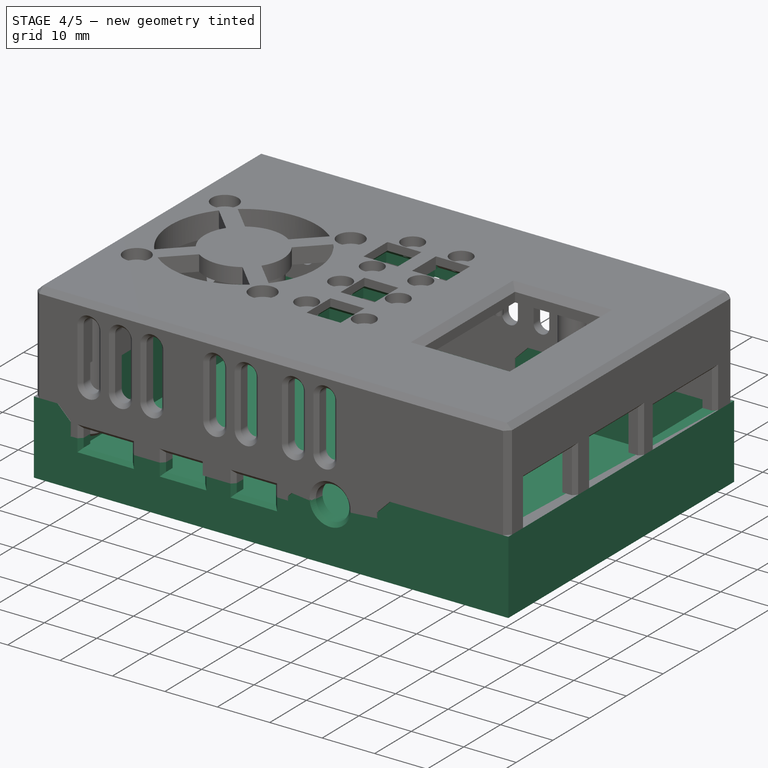
[diagram: stage 4 of 5 — iso view after this stage's code; geometry added in this stage tinted green]
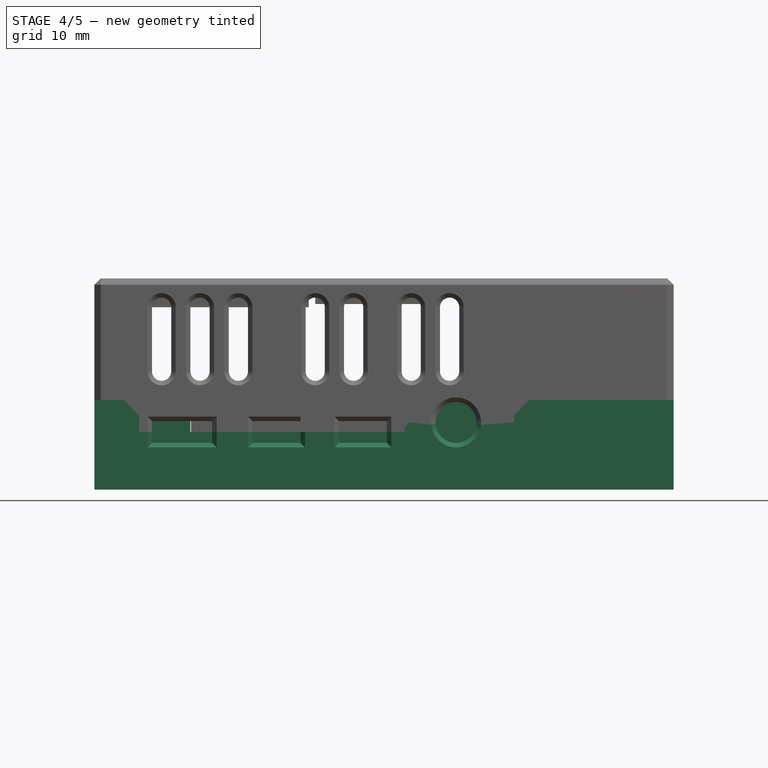
[diagram: stage 4 of 5 — front view after this stage's code; geometry added in this stage tinted green]
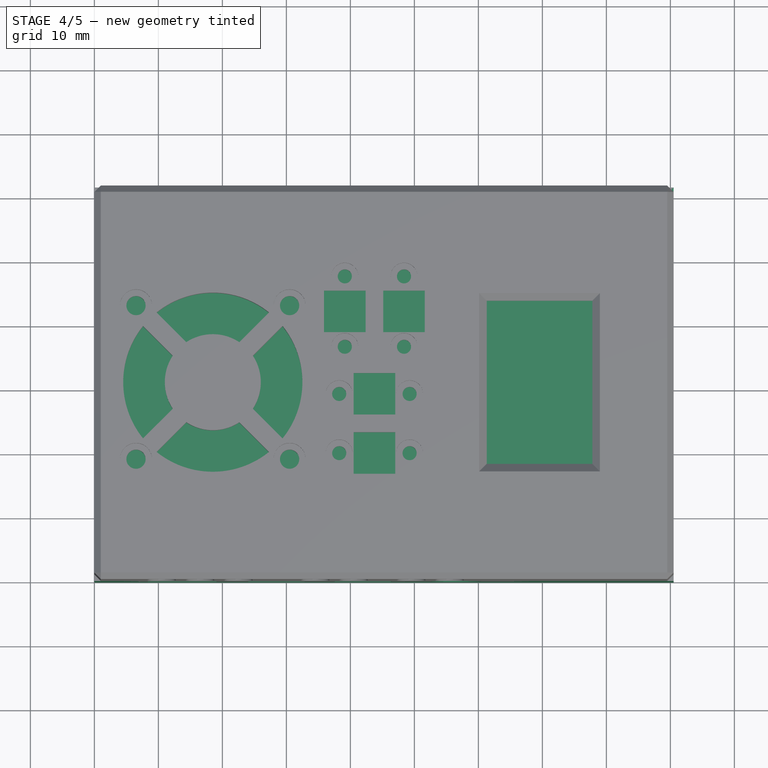
[diagram: stage 4 of 5 — top view after this stage's code; geometry added in this stage tinted green]
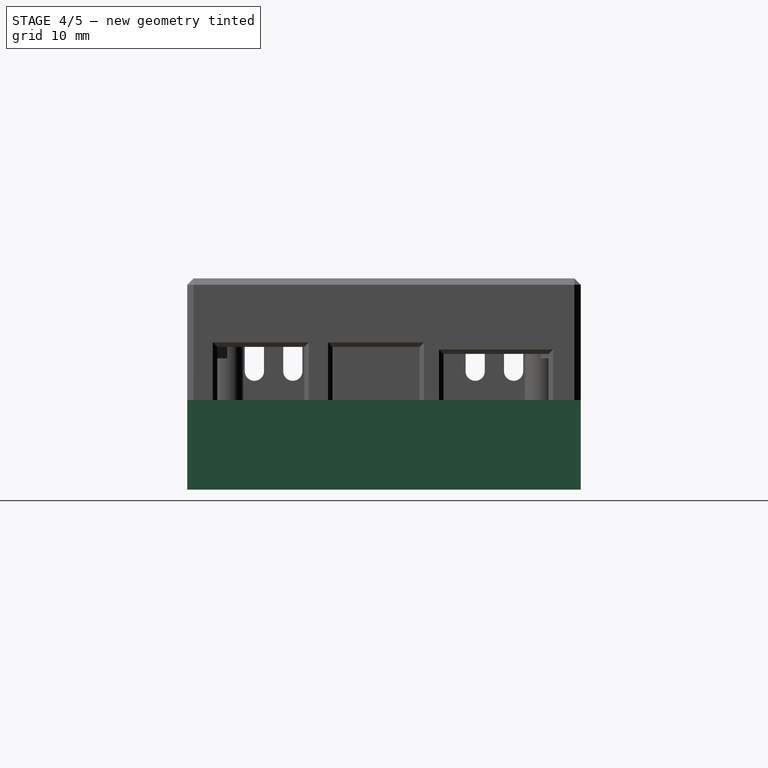
[diagram: stage 4 of 5 — right view after this stage's code; geometry added in this stage tinted green]
FEATURE [App::Part] Part  label="Rpi4 case"
  Origin = -> Origin
FEATURE [Spreadsheet::Sheet] Spreadsheet  label="dim"
  cells = A1=bold=; B1=prim. values; D1=standard=; E1=calculated values; A3=Raspberry Pi 4; C3=rpi_width; D3=rpi_length; E3=rpi_board_height; F3=rpi_space; J3=Construction levels; C4(rpi_width)=56; D4(rpi_length)=85; E4(rpi_board_height)=1.3; F4(rpi_space)=0.25; K4=Bottom; C6=rpi_holes_diam; D6=rpi_dist_hole_border; E6=rpi_holes_dist_y; F6=rpi_holes_dist_x; L6=base; M6(b_cl_bottom_base)=0; C7(rpi_holes_diam)=3; D7(rpi_dist_hole_border)=3.5; E7(rpi_holes_dist_y)=49; F7(rpi_holes_dist_x)=58; L7=box_top; M7(b_cl_box_top)==b_cl_bottom_base + bottom_height; L8=box_length; M8(cl_box_length)==box_length; A9=Case; B9=Basics; C9=wall_width; D9=box_width; E9=box_length; F9=bottom_height*; G9=top_height*; H9=box_spacing; L9=box_ground_inner; M9(cl_bottom_ground_inner)==wall_width; C10(wall_width)=2.5; D10(box_width)==rpi_width + 2 * rpi_space + 2 * wall_width; E10(box_length)==rpi_length + 2 * rpi_space + 2 * wall_width; F10(bottom_height)=9; G10(top_height)=19; H10(box_spacing)=0.1; L10=box_socket1; M10(cl_bottom_socket1)==cl_bottom_ground_inner + bottom_socket1_height; F11=*Full height=Bottom+Top+interlocking!; L11=box_socket2; M11(cl_bottom_socket2)==cl_bottom_socket1 + bottom_socket2_height; B12=Interlocking; C12=box_interlocking_height; D12=box_interlocking_audio_left_width; E12=box_interlocking_audio_right_width; F12=box_interlocking_empty_left_width; G12=box_interlocking_empty_right_width; C13(box_interlocking_height)=5; D13(box_interlocking_audio_left_width)=7; E13(box_interlocking_audio_right_width)=25; F13(box_interlocking_empty_left_width)=15; G13(box_interlocking_empty_right_width)=40; K13=Top; L14=base; M14(cl_top_base)==bottom_height + box_interlocking_height; B15=Chamfers; C15=chamfer_interlocking; D15=chamfer_audio; E15=champfer_plugs; F15=chamfer_body; L15=audio4; M15(cl_top_audio4)==cl_top_base - box_interlocking_height / 2; C16(chamfer_interlocking)==box_interlocking_height / 2 - 0.01; D16(chamfer_audio)==audio_level_height / 2 - 0.01; E16(champfer_plugs)=0.7; F16(chamfer_body)=1; L16=audio3; M16(cl_top_audio3)==cl_top_audio4 - audio3_level_height; L17=audio2; M17(cl_top_audio2)==cl_top_audio3 - audio_level_height / 2; A18=Elements; B18=USB-C; C18=usbc_width; D18=usbc_height; E18=usbc_x; F18=usbc_z; L18=audio1; M18(cl_top_audio1)==cl_top_audio3 - audio_level_height; C19(usbc_width)=9.4; D19(usbc_height)=3.4; E19(usbc_x)=9; F19(usbc_z)==bottom_height - usbc_height / 2; L19=box_top_inner; M19(cl_top_inner)==cl_top_base + top_height - wall_width; L20=box_top_outer; M20(cl_top_outer)==bottom_height + box_interlocking_height + top_height; B21=HDMI 1; C21=hdmi_width; D21=hdmi_height; E21=hdmi1_x; F21=hdmi_z; C22(hdmi_width)=7.5; D22(hdmi_height)=3.4; E22(hdmi1_x)=24.7; F22(hdmi_z)==bottom_height - hdmi_height / 2; B24=HDMI 2; E24=hdmi2_x; E25(hdmi2_x)=38.2; B27=Audio; C27=audio_level_length; D27=audio_level_height; E27=audio_x; F27=audio_z; G27=audio_diameter; C28(audio_level_length)=17; D28(audio_level_height)=1.5; E28(audio_x)=56.5; F28(audio_z)==bottom_height + audio_level_height; G28(audio_diameter)=6.4; C30=audio3_level_height; D30=audio_level4_height; E30=(audio_level2 is calculated inside the sketch); C31(audio3_level_height)==box_interlocking_height - box_interlocking_height / 2 - audio_level_height; D31(audio_level4_height)==box_interlocking_height - audio3_level_height - audio_level_height; B33=USB2; C33=usb2_width; D33=usb2_height; E33=usb2_x; F33=usb2_above_board; G33=usb2_z; C34(usb2_width)=13.6; D34(usb2_height)=14.4; E34(usb2_x)=4.7; F34(usb2_above_board)=0.6; G34(usb2_z)==usbc_z + usb2_above_board; B36=USB3; C36(usb3_width)=13.6; D36(usb3_height)=14.4; E36(usb3_x)=22.7; F36(usb3_above_board)=0.6; G36(usb3_z)==hdmi_z + usb3_above_board; B38=RJ45; C38=rj45_width; D38=rj45_height; E38=rj45_x; F38=rj_45_z; C39(rj45_width)=16.4; D39(rj45_height)=13.9; E39(rj45_x)=40.05; F39(rj_45_z)==usbc_z; B41=SD; C41=sd_width; D41=sd_length; E41=sd_height; F41=sd_x; C42(sd_width)=12; D42(sd_length)=8; E42(sd_height)==wall_width + bottom_socket1_height + bottom_socket2_height + rpi_board_height / 2; F42(sd_x)==(box_width - sd_width) / 2; B44=LEDs; C44=leds_width; D44=leds_height; E44=leds_y; F44=leds_z; C45(leds_width)=8; D45(leds_height)=2.5; E45(leds_y)==10 - leds_width / 2; F45(leds_z)==hdmi_z; B47=Fan; C47=fan_width; D47=fan_length; E47=fan_socket_height; F47=fan_dist_drill_x; G47=fan_dist_drill_y; H47=fan_drill_diam; I47=fan_diameter_outer; J47=fan_diameter_inner; C48(fan_width)=30; D48(fan_length)=30; E48(fan_socket_height)==sunk_case_height; F48(fan_dist_drill_x)=24; G48(fan_dist_drill_y)=24; H48(fan_drill_diam)=3; I48(fan_diameter_outer)=28; J48(fan_diameter_inner)=15; C50=fan_dist_wall; D50=fan_protection_width; E50=fan_protection_height; C51(fan_dist_wall)=1; D51(fan_protection_width)=3; E51(fan_protection_height)=3; B53=Display; C53=disp_glas_width; D53=disp_visible_length; E53=disp_glas_top_to_board_bottom_length; F53=disp_dist_window_to_case; G53=disp_foil_cable_width; H53=disp_gap_board_to_case; C54(disp_glas_width)=25.5; D54(disp_visible_length)=16.5; E54(disp_glas_top_to_board_bottom_length)=25.7; +90 more cells
FEATURE [Sketcher::SketchObject] Sketch043  label="B_box_full"
  FullyConstrained = true
  MapMode = 5
  Support = -> [XY_Plane003]
  expr: Constraints[8] = <<dim>>.box_length
  expr: Constraints[9] = <<dim>>.box_width
  sketch-geometry (4):
    g0: LineSegment StartX=0 StartY=61.5 StartZ=0 EndX=90.5 EndY=61.5 EndZ=0
    g1: LineSegment StartX=90.5 StartY=61.5 StartZ=0 EndX=90.5 EndY=0 EndZ=0
    g2: LineSegment StartX=90.5 StartY=0 StartZ=0 EndX=0 EndY=0 EndZ=0
    g3: LineSegment StartX=0 StartY=0 StartZ=0 EndX=0 EndY=61.5 EndZ=0
  constraints (11):
    c: Coincident(g0,g1)
    c: Coincident(g1,g2)
    c: Coincident(g2,g3)
    c: Coincident(g3,g0)
    c: Horizontal(g0)
    c: Horizontal(g2)
    c: Vertical(g1)
    c: Vertical(g3)
    c: DistanceX(g0,g0) = 90.5
    c: DistanceY(g1,g1) = 61.5
    c: Coincident(g2,g-1)
FEATURE [PartDesign::Pad] Pad022  label="B_box_full_pad"
  Direction = (0,0,1)
  Length = 9
  Length2 = 10
  Profile = -> Sketch043
  ReferenceAxis = -> Sketch043 [N_Axis]
  Type = 0
  expr: Length = <<dim>>.bottom_height
FEATURE [Sketcher::SketchObject] Sketch  label="b_box_cave"
  AttachmentOffset = pos=(0,0,9) rot=(0,0,1;0rad)
  FullyConstrained = true
  MapMode = 5
  Placement = pos=(0,0,9) rot=(0,0,1;0rad)
  Support = -> [XY_Plane003]
  expr: .AttachmentOffset.Base.z = <<dim>>.b_cl_box_top
  expr: Constraints[10] = <<dim>>.box_length - 2 * <<dim>>.wall_width
  expr: Constraints[11] = <<dim>>.box_width - 2 * <<dim>>.wall_width
  expr: Constraints[8] = <<dim>>.wall_width
  expr: Constraints[9] = <<dim>>.wall_width
  sketch-geometry (4):
    g0: LineSegment StartX=2.5 StartY=59 StartZ=0 EndX=88 EndY=59 EndZ=0
    g1: LineSegment StartX=88 StartY=59 StartZ=0 EndX=88 EndY=2.5 EndZ=0
    g2: LineSegment StartX=88 StartY=2.5 StartZ=0 EndX=2.5 EndY=2.5 EndZ=0
    g3: LineSegment StartX=2.5 StartY=2.5 StartZ=0 EndX=2.5 EndY=59 EndZ=0
  constraints (12):
    c: Coincident(g0,g1)
    c: Coincident(g1,g2)
    c: Coincident(g2,g3)
    c: Coincident(g3,g0)
    c: Horizontal(g0)
    c: Horizontal(g2)
    c: Vertical(g1)
    c: Vertical(g3)
    c: DistanceX(g-1,g2) = 2.5
    c: DistanceY(g-1,g2) = 2.5
    c: DistanceX(g0,g0) = 85.5
    c: DistanceY(g1,g1) = 56.5
FEATURE [PartDesign::Pocket] Pocket  label="b_box_cave_pocket"
  BaseFeature = -> Pad022
  Direction = (0,0,-1)
  Length = 6.5
  Length2 = 5
  Profile = -> Sketch
  ReferenceAxis = -> Sketch [N_Axis]
  Type = 0
  expr: Length = <<dim>>.bottom_height - <<dim>>.wall_width
FEATURE [Sketcher::SketchObject] Sketch044  label="b_box_interlocking"
  AttachmentOffset = pos=(0,0,9) rot=(0,0,1;0rad)
  ExternalGeometry = -> [Pocket]
  FullyConstrained = true
  MapMode = 5
  Placement = pos=(0,0,9) rot=(0,0,1;0rad)
  Support = -> [XY_Plane003]
  expr: .AttachmentOffset.Base.z = <<dim>>.b_cl_box_top
  expr: Constraints[12] = <<dim>>.wall_width
  expr: Constraints[18] = <<dim>>.wall_width
  expr: Constraints[19] = <<dim>>.wall_width
  expr: Constraints[20] = <<dim>>.box_interlocking_audio_left_width
  expr: Constraints[21] = <<dim>>.box_interlocking_empty_left_width
  expr: Constraints[30] = <<dim>>.wall_width
  expr: Constraints[31] = <<dim>>.box_interlocking_empty_right_width
  expr: Constraints[32] = <<dim>>.wall_width
  expr: Constraints[44] = <<dim>>.box_interlocking_audio_right_width
  sketch-geometry (16):
    g0: LineSegment StartX=15 StartY=61.5 StartZ=0 EndX=0 EndY=61.5 EndZ=0
    g1: LineSegment StartX=0 StartY=61.5 StartZ=0 EndX=0 EndY=0 EndZ=0
    g2: LineSegment StartX=0 StartY=0 StartZ=0 EndX=7 EndY=0 EndZ=0
    g3: LineSegment StartX=7 StartY=0 StartZ=0 EndX=7 EndY=2.5 EndZ=0
    g4: LineSegment StartX=7 StartY=2.5 StartZ=0 EndX=2.5 EndY=2.5 EndZ=0
    g5: LineSegment StartX=2.5 StartY=2.5 StartZ=0 EndX=2.5 EndY=59 EndZ=0
    g6: LineSegment StartX=2.5 StartY=59 StartZ=0 EndX=15 EndY=59 EndZ=0
    g7: LineSegment StartX=15 StartY=59 StartZ=0 EndX=15 EndY=61.5 EndZ=0
    g8: LineSegment StartX=50.5 StartY=61.5 StartZ=0 EndX=90.5 EndY=61.5 EndZ=0
    g9: LineSegment StartX=88 StartY=2.5 StartZ=0 EndX=88 EndY=59 EndZ=0
    g10: LineSegment StartX=88 StartY=59 StartZ=0 EndX=50.5 EndY=59 EndZ=0
    g11: LineSegment StartX=50.5 StartY=59 StartZ=0 EndX=50.5 EndY=61.5 EndZ=0
    g12: LineSegment StartX=90.5 StartY=61.5 StartZ=0 EndX=90.5 EndY=0 EndZ=0
    g13: LineSegment StartX=90.5 StartY=0 StartZ=0 EndX=65.5 EndY=0 EndZ=0
    g14: LineSegment StartX=65.5 StartY=0 StartZ=0 EndX=65.5 EndY=2.5 EndZ=0
    g15: LineSegment StartX=65.5 StartY=2.5 StartZ=0 EndX=88 EndY=2.5 EndZ=0
  constraints (45):
    c: Horizontal(g0)
    c: Coincident(g0,g1)
    c: Coincident(g1,g2)
    c: Coincident(g2,g3)
    c: Coincident(g3,g4)
    c: Coincident(g4,g5)
    c: Vertical(g5)
    c: Coincident(g5,g6)
    c: Coincident(g6,g7)
    c: Coincident(g7,g0)
    c: Coincident(g-4,g0)
    c: Coincident(g-1,g1)
    c: DistanceX(g0,g5) = 2.5
    c: Horizontal(g6)
    c: Horizontal(g4)
    c: Horizontal(g2)
    c: Vertical(g7)
    c: Vertical(g3)
    c: DistanceY(g7,g7) = 2.5
    c: DistanceY(g3,g3) = 2.5
    c: DistanceX(g2,g2) = 7
    c: DistanceX(g0,g0) = 15
    c: Horizontal(g8)
    c: Vertical(g9)
    c: Coincident(g9,g10)
    c: Horizontal(g10)
    c: Coincident(g10,g11)
    c: Coincident(g11,g8)
    c: Vertical(g11)
    c: Coincident(g8,g-5)
    c: DistanceY(g11,g11) = 2.5
    c: DistanceX(g8,g8) = 40
    c: DistanceX(g9,g8) = 2.5
    c: Coincident(g8,g12)
    c: PointOnObject(g12,g-1)
    c: Vertical(g12)
    c: Coincident(g12,g13)
    c: PointOnObject(g13,g-1)
    c: Coincident(g13,g14)
    c: Coincident(g14,g15)
    c: Coincident(g15,g9)
    c: Horizontal(g15)
    c: Vertical(g14)
    c: Horizontal(g3,g14)
    c: DistanceX(g13,g13) = 25
FEATURE [PartDesign::Pad] Pad  label="b_box_interlocking_pad"
  BaseFeature = -> Pocket
  Direction = (0,0,1)
  Length = 5
  Length2 = 10
  Profile = -> Sketch044
  ReferenceAxis = -> Sketch044 [N_Axis]
  Type = 0
  expr: Length = Spreadsheet.box_interlocking_height
FEATURE [PartDesign::Chamfer] Chamfer  label="b_box_interlocking_chamfer"
  Angle = 45
  Base = -> Pad [Edge33,Edge31,Edge38,Edge45]
  BaseFeature = -> Pad
  ChamferType = 0
  FlipDirection = false
  Size = 2.49
  Size2 = 1
  SupportTransform = false
  UseAllEdges = false
  expr: Size = <<dim>>.chamfer_interlocking
FEATURE [Sketcher::SketchObject] Sketch045  label="b_box_audio_level"
  AttachmentOffset = pos=(0,0,9) rot=(0,0,1;0rad)
  ExternalGeometry = -> [Chamfer]
  FullyConstrained = true
  MapMode = 5
  Placement = pos=(0,0,9) rot=(0,0,1;0rad)
  Support = -> [XY_Plane003]
  expr: .AttachmentOffset.Base.z = <<dim>>.b_cl_box_top
  expr: Constraints[10] = <<dim>>.audio_level_length
  expr: Constraints[9] = <<dim>>.wall_width
  sketch-geometry (4):
    g0: LineSegment StartX=48.5 StartY=2.5 StartZ=0 EndX=65.5 EndY=2.5 EndZ=0
    g1: LineSegment StartX=65.5 StartY=2.5 StartZ=0 EndX=65.5 EndY=0 EndZ=0
    g2: LineSegment StartX=65.5 StartY=0 StartZ=0 EndX=48.5 EndY=0 EndZ=0
    g3: LineSegment StartX=48.5 StartY=0 StartZ=0 EndX=48.5 EndY=2.5 EndZ=0
  constraints (12):
    c: Coincident(g0,g1)
    c: Coincident(g1,g2)
    c: Coincident(g2,g3)
    c: Coincident(g3,g0)
    c: Horizontal(g0)
    c: Horizontal(g2)
    c: Vertical(g1)
    c: Vertical(g3)
    c: Horizontal(g1,g-3)
    c: DistanceY(g1,g1) = 2.5
    c: DistanceX(g2,g2) = 17
    c: Vertical(g1,g-3)
FEATURE [PartDesign::Pad] Pad023  label="b_box_audio_level_pad"
  BaseFeature = -> Chamfer
  Direction = (0,0,1)
  Length = 1.5
  Length2 = 10
  Profile = -> Sketch045
  ReferenceAxis = -> Sketch045 [N_Axis]
  Type = 0
  expr: Length = <<dim>>.audio_level_height
FEATURE [PartDesign::Chamfer] Chamfer001  label="b_box_audio_level_chamfer"
  Angle = 45
  Base = -> Pad023 [Edge90]
  BaseFeature = -> Pad023
  ChamferType = 0
  FlipDirection = false
  Size = 0.74
  Size2 = 1
  SupportTransform = false
  UseAllEdges = false
  expr: Size = <<dim>>.chamfer_audio
FEATURE [Sketcher::SketchObject] Sketch046  label="b_audio"
  FullyConstrained = true
  MapMode = 5
  Placement = pos=(0,0,0) rot=(1,0,0;1.5708rad)
  Support = -> [XZ_Plane003]
  expr: Constraints[24] = <<dim>>.usbc_height
  expr: Constraints[25] = <<dim>>.hdmi_height
  expr: Constraints[26] = <<dim>>.hdmi_height
  expr: Constraints[27] = <<dim>>.audio_diameter
  expr: Constraints[28] = <<dim>>.usbc_width
  expr: Constraints[29] = <<dim>>.hdmi_width
  expr: Constraints[30] = <<dim>>.hdmi_width
  expr: Constraints[31] = <<dim>>.usbc_x
  expr: Constraints[32] = <<dim>>.hdmi1_x
  expr: Constraints[33] = <<dim>>.hdmi2_x
  expr: Constraints[34] = <<dim>>.audio_x
  expr: Constraints[35] = <<dim>>.audio_z
  expr: Constraints[36] = <<dim>>.usbc_z
  expr: Constraints[37] = <<dim>>.hdmi_z
  expr: Constraints[38] = <<dim>>.hdmi_z
  sketch-geometry (13):
    g0: LineSegment StartX=9 StartY=10.7 StartZ=0 EndX=18.4 EndY=10.7 EndZ=0
    g1: LineSegment StartX=18.4 StartY=10.7 StartZ=0 EndX=18.4 EndY=7.3 EndZ=0
    g2: LineSegment StartX=18.4 StartY=7.3 StartZ=0 EndX=9 EndY=7.3 EndZ=0
    g3: LineSegment StartX=9 StartY=7.3 StartZ=0 EndX=9 EndY=10.7 EndZ=0
    g4: LineSegment StartX=24.7 StartY=10.7 StartZ=0 EndX=32.2 EndY=10.7 EndZ=0
    g5: LineSegment StartX=32.2 StartY=10.7 StartZ=0 EndX=32.2 EndY=7.3 EndZ=0
    g6: LineSegment StartX=32.2 StartY=7.3 StartZ=0 EndX=24.7 EndY=7.3 EndZ=0
    g7: LineSegment StartX=24.7 StartY=7.3 StartZ=0 EndX=24.7 EndY=10.7 EndZ=0
    g8: LineSegment StartX=38.2 StartY=10.7 StartZ=0 EndX=45.7 EndY=10.7 EndZ=0
    g9: LineSegment StartX=45.7 StartY=10.7 StartZ=0 EndX=45.7 EndY=7.3 EndZ=0
    g10: LineSegment StartX=45.7 StartY=7.3 StartZ=0 EndX=38.2 EndY=7.3 EndZ=0
    g11: LineSegment StartX=38.2 StartY=7.3 StartZ=0 EndX=38.2 EndY=10.7 EndZ=0
    g12: Circle CenterX=56.5 CenterY=10.5 CenterZ=0 NormalX=0 NormalY=0 NormalZ=1 AngleXU=0 Radius=3.2
  constraints (39):
    c: Coincident(g0,g1)
    c: Coincident(g1,g2)
    c: Coincident(g2,g3)
    c: Coincident(g3,g0)
    c: Horizontal(g0)
    c: Horizontal(g2)
    c: Vertical(g1)
    c: Vertical(g3)
    c: Coincident(g4,g5)
    c: Coincident(g5,g6)
    c: Coincident(g6,g7)
    c: Coincident(g7,g4)
    c: Horizontal(g4)
    c: Horizontal(g6)
    c: Vertical(g5)
    c: Vertical(g7)
    c: Coincident(g8,g9)
    c: Coincident(g9,g10)
    c: Coincident(g10,g11)
    c: Coincident(g11,g8)
    c: Horizontal(g8)
    c: Horizontal(g10)
    c: Vertical(g9)
    c: Vertical(g11)
    c: DistanceY(g3,g3) = 3.4
    c: DistanceY(g7,g7) = 3.4
    c: DistanceY(g11,g11) = 3.4
    c: Diameter(g12) = 6.4
    c: DistanceX(g2,g2) = 9.4
    c: DistanceX(g4,g4) = 7.5
    c: DistanceX(g8,g8) = 7.5
    c: DistanceX(g-1,g2) = 9
    c: DistanceX(g-1,g6) = 24.7
    c: DistanceX(g-1,g10) = 38.2
    c: DistanceX(g-1,g12) = 56.5
    c: DistanceY(g12) = 10.5
    c: DistanceY(g-1,g2) = 7.3
    c: DistanceY(g-1,g6) = 7.3
    c: DistanceY(g-1,g10) = 7.3
FEATURE [PartDesign::Pocket] Pocket001  label="b_audio_pocket"
  BaseFeature = -> Chamfer001
  Direction = (0,1,2e-16)
  Length = 2.5
  Length2 = 5
  Profile = -> Sketch046
  ReferenceAxis = -> Sketch046 [N_Axis]
  Type = 0
  expr: Length = <<dim>>.wall_width
FEATURE [PartDesign::Chamfer] Chamfer002  label="b_audio_pocket_chamfer"
  Angle = 45
  Base = -> Pocket001 [Edge21,Edge22,Edge23,Edge25,Edge26,Edge27,Edge29,Edge31,Edge30,Edge16]
  BaseFeature = -> Pocket001
  ChamferType = 0
  FlipDirection = false
  Size = 0.7
  Size2 = 1
  SupportTransform = false
  UseAllEdges = false
  expr: Size = <<dim>>.champfer_plugs
FEATURE [Sketcher::SketchObject] Sketch094  label="mounting material_washer_outer"
  FullyConstrained = true
  MapMode = 5
  Support = -> [XY_Plane006]
  expr: Constraints[0] = <<dim>>.sunk_buttons_diam
  expr: Constraints[1] = <<dim>>.sunk_buttons_diam
  expr: Constraints[2] = <<dim>>.sunk_buttons_diam
  sketch-geometry (1):
    g0: Circle CenterX=4.2 CenterY=4.2 CenterZ=0 NormalX=0 NormalY=0 NormalZ=1 AngleXU=0 Radius=2.1
  constraints (3):
    c: Diameter(g0) = 4.2
    c: DistanceY(g-1,g0) = 4.2
    c: DistanceX(g-1,g0) = 4.2
FEATURE [PartDesign::Pad] Pad040  label="mounting material_washer_pad"
  Direction = (0,0,1)
  Length = 0.6
  Length2 = 10
  Profile = -> Sketch094
  ReferenceAxis = -> Sketch094 [N_Axis]
  Type = 0
  expr: Length = <<dim>>.button_washers_height
FEATURE [Sketcher::SketchObject] Sketch095  label="mounting material_washer_inner"
  FullyConstrained = true
  MapMode = 5
  Support = -> [XY_Plane006]
  expr: Constraints[0] = <<dim>>.button_base_drill_diam
  expr: Constraints[1] = Sketch094.Constraints[1]
  expr: Constraints[2] = Sketch094.Constraints[2]
  sketch-geometry (1):
    g0: Circle CenterX=4.2 CenterY=4.2 CenterZ=0 NormalX=0 NormalY=0 NormalZ=1 AngleXU=0 Radius=1.1
  constraints (3):
    c: Diameter(g0) = 2.2
    c: DistanceY(g-1,g0) = 4.2
    c: DistanceX(g-1,g0) = 4.2
FEATURE [PartDesign::Pocket] Pocket021  label="mounting material_washer_pocket"
  BaseFeature = -> Pad040
  Direction = (0,0,-1)
  Length = 0.6
  Length2 = 5
  Profile = -> Sketch095
  ReferenceAxis = -> Sketch095 [N_Axis]
  Reversed = true
  Type = 0
  expr: Length = <<dim>>.button_washers_height
FEATURE [PartDesign::Body] Body  label="mounting material washer x8"
  Group = -> [Sketch094,Pad040,Sketch095,Pocket021]
  Origin = -> Origin006
  Tip = -> Pocket021
FEATURE [Sketcher::SketchObject] Sketch096  label="T_buttons_spacing_inner"
  AttachmentOffset = pos=(0,0,28.78) rot=(0,0,1;0rad)
  FullyConstrained = true
  MapMode = 5
  Placement = pos=(0,0,28.78) rot=(0,0,1;0rad)
  Support = -> [XY_Plane005]
  expr: .AttachmentOffset.Base.z = <<dim>>.cl_top_inner - <<dim>>.sunk_buttons_height
  expr: Constraints[124] = Sketch090.Constraints[124]
  expr: Constraints[125] = Sketch090.Constraints[125]
  expr: Constraints[159] = <<dim>>.button_length + 2 * <<dim>>.button_socket_spacing_xy
  expr: Constraints[160] = <<dim>>.button_width + 2 * <<dim>>.button_socket_spacing_xy
  expr: Constraints[171] = <<dim>>.button_base_solder_diam
  expr: Constraints[187] = <<dim>>.button_base_solder_dist_length
  expr: Constraints[199] = <<dim>>.button_base_solder_dist_width
  expr: Constraints[200] = <<dim>>.button_base_solder_dist_width
  expr: Constraints[201] = <<dim>>.button_base_solder_dist_width
  expr: Constraints[202] = <<dim>>.button_base_solder_dist_width
  expr: Constraints[213] = <<dim>>.button_base_solder_dist_length
  expr: Constraints[215] = <<dim>>.button_base_solder_dist_width / 2
  expr: Constraints[216] = <<dim>>.button_base_solder_dist_width / 2
  expr: Constraints[34] = Sketch090.Constraints[34]
  expr: Constraints[35] = Sketch090.Constraints[35]
  expr: Constraints[38] = Sketch090.Constraints[38]
  expr: Constraints[39] = Sketch090.Constraints[39]
  expr: Constraints[48] = Sketch090.Constraints[48]
  expr: Constraints[58] = Sketch090.Constraints[58]
  sketch-geometry (83):
    g0: LineSegment StartX=34.5 StartY=50.0625 StartZ=0 EndX=43.75 EndY=50.0625 EndZ=0
    g1: LineSegment StartX=43.75 StartY=50.0625 StartZ=0 EndX=43.75 EndY=33.5625 EndZ=0
    g2: LineSegment StartX=43.75 StartY=33.5625 StartZ=0 EndX=34.5 EndY=33.5625 EndZ=0
    g3: LineSegment StartX=34.5 StartY=33.5625 StartZ=0 EndX=34.5 EndY=50.0625 EndZ=0
    g4: LineSegment StartX=35.5 StartY=33.5625 StartZ=0 EndX=52 EndY=33.5625 EndZ=0
    g5: LineSegment StartX=52 StartY=33.5625 StartZ=0 EndX=52 EndY=24.3125 EndZ=0
    g6: LineSegment StartX=52 StartY=24.3125 StartZ=0 EndX=35.5 EndY=24.3125 EndZ=0
    g7: LineSegment StartX=35.5 StartY=24.3125 StartZ=0 EndX=35.5 EndY=33.5625 EndZ=0
    g8: GeomPoint X=39.125 Y=41.8125 Z=0
    g9: GeomPoint X=43.75 Y=28.9375 Z=0
    g10: LineSegment StartX=35.875 StartY=45.0625 StartZ=0 EndX=42.375 EndY=45.0625 EndZ=0
    g11: LineSegment StartX=42.375 StartY=45.0625 StartZ=0 EndX=42.375 EndY=38.5625 EndZ=0
    g12: LineSegment StartX=42.375 StartY=38.5625 StartZ=0 EndX=35.875 EndY=38.5625 EndZ=0
    g13: LineSegment StartX=35.875 StartY=38.5625 StartZ=0 EndX=35.875 EndY=45.0625 EndZ=0
    g14: LineSegment StartX=40.5 StartY=32.1875 StartZ=0 EndX=47 EndY=32.1875 EndZ=0
    g15: LineSegment StartX=47 StartY=32.1875 StartZ=0 EndX=47 EndY=25.6875 EndZ=0
    g16: LineSegment StartX=47 StartY=25.6875 StartZ=0 EndX=40.5 EndY=25.6875 EndZ=0
    g17: LineSegment StartX=40.5 StartY=25.6875 StartZ=0 EndX=40.5 EndY=32.1875 EndZ=0
    g18: LineSegment StartX=39.125 StartY=47.3125 StartZ=0 EndX=39.125 EndY=36.3125 EndZ=0
    g19: LineSegment StartX=38.25 StartY=28.9375 StartZ=0 EndX=49.25 EndY=28.9375 EndZ=0
    g20: Circle CenterX=39.125 CenterY=47.3125 CenterZ=0 NormalX=0 NormalY=0 NormalZ=1 AngleXU=0 Radius=0
    g21: Circle CenterX=39.125 CenterY=36.3125 CenterZ=0 NormalX=0 NormalY=0 NormalZ=1 AngleXU=0 Radius=1.1
    g22: Circle CenterX=38.25 CenterY=28.9375 CenterZ=0 NormalX=0 NormalY=0 NormalZ=1 AngleXU=0 Radius=1.1
    g23: Circle CenterX=49.25 CenterY=28.9375 CenterZ=0 NormalX=0 NormalY=0 NormalZ=1 AngleXU=0 Radius=1.1
    g24: Circle CenterX=39.125 CenterY=47.3125 CenterZ=0 NormalX=0 NormalY=0 NormalZ=1 AngleXU=0 Radius=1.1
    g25: LineSegment StartX=43.75 StartY=50.0625 StartZ=0 EndX=53 EndY=50.0625 EndZ=0
    g26: LineSegment StartX=53 StartY=50.0625 StartZ=0 EndX=53 EndY=33.5625 EndZ=0
    g27: LineSegment StartX=53 StartY=33.5625 StartZ=0 EndX=43.75 EndY=33.5625 EndZ=0
    g28: LineSegment StartX=43.75 StartY=33.5625 StartZ=0 EndX=43.75 EndY=50.0625 EndZ=0
    g29: GeomPoint X=48.375 Y=41.8125 Z=0
    g30: LineSegment StartX=45.125 StartY=45.0625 StartZ=0 EndX=51.625 EndY=45.0625 EndZ=0
    g31: LineSegment StartX=51.625 StartY=45.0625 StartZ=0 EndX=51.625 EndY=38.5625 EndZ=0
    g32: LineSegment StartX=51.625 StartY=38.5625 StartZ=0 EndX=45.125 EndY=38.5625 EndZ=0
    g33: LineSegment StartX=45.125 StartY=38.5625 StartZ=0 EndX=45.125 EndY=45.0625 EndZ=0
    g34: LineSegment StartX=48.375 StartY=47.3125 StartZ=0 EndX=48.375 EndY=36.3125 EndZ=0
    g35: Circle CenterX=48.375 CenterY=47.3125 CenterZ=0 NormalX=0 NormalY=0 NormalZ=1 AngleXU=0 Radius=4.13e-14
    g36: Circle CenterX=48.375 CenterY=36.3125 CenterZ=0 NormalX=0 NormalY=0 NormalZ=1 AngleXU=0 Radius=1.1
    g37: Circle CenterX=48.375 CenterY=47.3125 CenterZ=0 NormalX=0 NormalY=0 NormalZ=1 AngleXU=0 Radius=1.1
    g38: LineSegment StartX=35.5 StartY=24.3125 StartZ=0 EndX=52 EndY=24.3125 EndZ=0
    g39: LineSegment StartX=52 StartY=24.3125 StartZ=0 EndX=52 EndY=15.0625 EndZ=0
    g40: LineSegment StartX=52 StartY=15.0625 StartZ=0 EndX=35.5 EndY=15.0625 EndZ=0
    g41: LineSegment StartX=35.5 StartY=15.0625 StartZ=0 EndX=35.5 EndY=24.3125 EndZ=0
    g42: GeomPoint X=43.75 Y=19.6875 Z=0
    g43: LineSegment StartX=40.5 StartY=22.9375 StartZ=0 EndX=47 EndY=22.9375 EndZ=0
    g44: LineSegment StartX=47 StartY=22.9375 StartZ=0 EndX=47 EndY=16.4375 EndZ=0
    g45: LineSegment StartX=47 StartY=16.4375 StartZ=0 EndX=40.5 EndY=16.4375 EndZ=0
    g46: LineSegment StartX=40.5 StartY=16.4375 StartZ=0 EndX=40.5 EndY=22.9375 EndZ=0
    g47: LineSegment StartX=38.25 StartY=19.6875 StartZ=0 EndX=49.25 EndY=19.6875 EndZ=0
    g48: Circle CenterX=38.25 CenterY=19.6875 CenterZ=0 NormalX=0 NormalY=0 NormalZ=1 AngleXU=0 Radius=1.1
    g49: Circle CenterX=49.25 CenterY=19.6875 CenterZ=0 NormalX=0 NormalY=0 NormalZ=1 AngleXU=0 Radius=1.1
    g50: GeomPoint X=46.0625 Y=30.75 Z=0
    g51: LineSegment StartX=39.75 StartY=15.6875 StartZ=0 EndX=47.75 EndY=15.6875 EndZ=0
    g52: LineSegment StartX=47.75 StartY=15.6875 StartZ=0 EndX=47.75 EndY=23.6875 EndZ=0
    g53: LineSegment StartX=47.75 StartY=23.6875 StartZ=0 EndX=39.75 EndY=23.6875 EndZ=0
    g54: LineSegment StartX=39.75 StartY=23.6875 StartZ=0 EndX=39.75 EndY=15.6875 EndZ=0
    g55: LineSegment StartX=39.75 StartY=24.9375 StartZ=0 EndX=47.75 EndY=24.9375 EndZ=0
    g56: LineSegment StartX=47.75 StartY=24.9375 StartZ=0 EndX=47.75 EndY=32.9375 EndZ=0
    g57: LineSegment StartX=47.75 StartY=32.9375 StartZ=0 EndX=39.75 EndY=32.9375 EndZ=0
    g58: LineSegment StartX=39.75 StartY=32.9375 StartZ=0 EndX=39.75 EndY=24.9375 EndZ=0
    g59: LineSegment StartX=35.125 StartY=37.8125 StartZ=0 EndX=43.125 EndY=37.8125 EndZ=0
    g60: LineSegment StartX=43.125 StartY=37.8125 StartZ=0 EndX=43.125 EndY=45.8125 EndZ=0
    g61: LineSegment StartX=43.125 StartY=45.8125 StartZ=0 EndX=35.125 EndY=45.8125 EndZ=0
    g62: LineSegment StartX=35.125 StartY=45.8125 StartZ=0 EndX=35.125 EndY=37.8125 EndZ=0
    g63: LineSegment StartX=44.375 StartY=37.8125 StartZ=0 EndX=52.375 EndY=37.8125 EndZ=0
    g64: LineSegment StartX=52.375 StartY=37.8125 StartZ=0 EndX=52.375 EndY=45.8125 EndZ=0
    g65: LineSegment StartX=52.375 StartY=45.8125 StartZ=0 EndX=44.375 EndY=45.8125 EndZ=0
    g66: LineSegment StartX=44.375 StartY=45.8125 StartZ=0 EndX=44.375 EndY=37.8125 EndZ=0
    g67: Circle CenterX=35.925 CenterY=48.5625 CenterZ=0 NormalX=0 NormalY=0 NormalZ=1 AngleXU=0 Radius=1
    g68: Circle CenterX=42.325 CenterY=48.5625 CenterZ=0 NormalX=0 NormalY=0 NormalZ=1 AngleXU=0 Radius=1
    g69: Circle CenterX=45.175 CenterY=48.5625 CenterZ=0 NormalX=0 NormalY=0 NormalZ=1 AngleXU=0 Radius=1
    g70: Circle CenterX=51.575 CenterY=48.5625 CenterZ=0 NormalX=0 NormalY=0 NormalZ=1 AngleXU=0 Radius=1
    g71: Circle CenterX=35.925 CenterY=35.0625 CenterZ=0 NormalX=0 NormalY=0 NormalZ=1 AngleXU=0 Radius=1
    g72: Circle CenterX=42.325 CenterY=35.0625 CenterZ=0 NormalX=0 NormalY=0 NormalZ=1 AngleXU=0 Radius=1
    g73: Circle CenterX=45.175 CenterY=35.0625 CenterZ=0 NormalX=0 NormalY=0 NormalZ=1 AngleXU=0 Radius=1
    g74: Circle CenterX=51.575 CenterY=35.0625 CenterZ=0 NormalX=0 NormalY=0 NormalZ=1 AngleXU=0 Radius=1
    g75: Circle CenterX=50.5 CenterY=32.1375 CenterZ=0 NormalX=0 NormalY=0 NormalZ=1 AngleXU=0 Radius=1
    g76: Circle CenterX=50.5 CenterY=25.7375 CenterZ=0 NormalX=0 NormalY=0 NormalZ=1 AngleXU=0 Radius=1
    g77: Circle CenterX=37 CenterY=32.1375 CenterZ=0 NormalX=0 NormalY=0 NormalZ=1 AngleXU=0 Radius=1
    g78: Circle CenterX=37 CenterY=25.7375 CenterZ=0 NormalX=0 NormalY=0 NormalZ=1 AngleXU=0 Radius=1
    g79: Circle CenterX=37 CenterY=22.8875 CenterZ=0 NormalX=0 NormalY=0 NormalZ=1 AngleXU=0 Radius=1
    g80: Circle CenterX=50.5 CenterY=22.8875 CenterZ=0 NormalX=0 NormalY=0 NormalZ=1 AngleXU=0 Radius=1
    g81: Circle CenterX=50.5 CenterY=16.4875 CenterZ=0 NormalX=0 NormalY=0 NormalZ=1 AngleXU=0 Radius=1
    g82: Circle CenterX=37 CenterY=16.4875 CenterZ=0 NormalX=0 NormalY=0 NormalZ=1 AngleXU=0 Radius=1
  constraints (217):
    c: Coincident(g0,g1)
    c: Coincident(g1,g2)
    c: Coincident(g2,g3)
    c: Coincident(g3,g0)
    c: Horizontal(g0)
    c: Horizontal(g2)
    c: Vertical(g1)
    c: Vertical(g3)
    c: Coincident(g4,g5)
    c: Coincident(g5,g6)
    c: Coincident(g6,g7)
    c: Coincident(g7,g4)
    c: Horizontal(g4)
    c: Horizontal(g6)
    c: Vertical(g5)
    c: Vertical(g7)
    c: Symmetric(g0,g1,g8)
    c: Symmetric(g4,g5,g9)
    c: Coincident(g10,g11)
    c: Coincident(g11,g12)
    c: Coincident(g12,g13)
    c: Coincident(g13,g10)
    c: Horizontal(g10)
    c: Horizontal(g12)
    c: Vertical(g11)
    c: Vertical(g13)
    c: Coincident(g14,g15)
    c: Coincident(g15,g16)
    c: Coincident(g16,g17)
    c: Coincident(g17,g14)
    c: Horizontal(g14)
    c: Horizontal(g16)
    c: Vertical(g15)
    c: Vertical(g17)
    c: DistanceX(g10,g10) = 6.5
    c: DistanceY(g13,g13) = 6.5
    c: Symmetric(g10,g11,g8)
    c: Symmetric(g14,g15,g9)
    c: DistanceY(g3,g3) = 16.5
    c: DistanceX(g0,g0) = 9.25
    c: Equal(g0,g7)
    c: Equal(g3,g4)
    c: Equal(g13,g14)
    c: Vertical(g18)
    c: Symmetric(g18,g18,g8)
    c: Horizontal(g19)
    c: Symmetric(g19,g19,g9)
    c: Equal(g18,g19)
    c: DistanceY(g18,g18) = 11
    c: Coincident(g20,g18)
    c: Tangent(g20,g18)
    c: Coincident(g21,g18)
    c: Coincident(g22,g19)
    c: Coincident(g23,g19)
    c: Coincident(g24,g18)
    c: Equal(g24,g21)
    c: Equal(g24,g22)
    c: Equal(g22,g23)
    c: Diameter(g22) = 2.2
    c: Coincident(g25,g26)
    c: Coincident(g26,g27)
    c: Coincident(g27,g28)
    c: Coincident(g28,g25)
    c: Horizontal(g25)
    c: Horizontal(g27)
    c: Vertical(g26)
    c: Vertical(g28)
    c: Symmetric(g25,g26,g29)
    c: Coincident(g30,g31)
    c: Coincident(g31,g32)
    c: Coincident(g32,g33)
    c: Coincident(g33,g30)
    c: Horizontal(g30)
    c: Horizontal(g32)
    c: Vertical(g31)
    c: Vertical(g33)
    c: Equal(g10,g30) = 6.5
    c: Equal(g13,g33) = 6.5
    c: Symmetric(g30,g31,g29)
    c: Equal(g3,g28) = 16.5
    c: Equal(g0,g25) = 9.25
    c: Vertical(g34)
    c: Symmetric(g34,g34,g29)
    c: Equal(g18,g34) = 11
    c: Coincident(g35,g34)
    c: Tangent(g35,g34)
    c: Coincident(g36,g34)
    c: Coincident(g37,g34)
    c: Equal(g37,g36)
    c: Coincident(g38,g39)
    c: Coincident(g39,g40)
    c: Coincident(g40,g41)
    c: Coincident(g41,g38)
    c: Horizontal(g38)
    c: Horizontal(g40)
    c: Vertical(g39)
    c: Vertical(g41)
    c: Symmetric(g38,g39,g42)
    c: Coincident(g43,g44)
    c: Coincident(g44,g45)
    c: Coincident(g45,g46)
    c: Coincident(g46,g43)
    c: Horizontal(g43)
    c: Horizontal(g45)
    c: Vertical(g44)
    c: Vertical(g46)
    c: Symmetric(g43,g44,g42)
    c: Horizontal(g47)
    c: Symmetric(g47,g47,g42)
    c: Coincident(g48,g47)
    c: Coincident(g49,g47)
    c: Equal(g48,g49)
    c: Equal(g22,g48) = 2.5
    c: Equal(g4,g38)
    c: Equal(g5,g39)
    c: Equal(g15,g44)
    c: Equal(g14,g43)
    c: Equal(g19,g47)
    c: Coincident(g6,g38)
    c: Coincident(g0,g25)
    c: Vertical(g1,g9)
    c: Horizontal(g2,g4)
    c: Equal(g30,g15)
    c: Symmetric(g29,g42,g50)
    c: DistanceY(g-1,g50) = 30.75
    c: DistanceX(g-1,g2) = 34.5
    c: Equal(g24,g37)
    c: Coincident(g51,g52)
    c: Coincident(g52,g53)
    c: Coincident(g53,g54)
    c: Coincident(g54,g51)
    c: Horizontal(g51)
    c: Horizontal(g53)
    c: Vertical(g52)
    c: Vertical(g54)
    c: Coincident(g55,g56)
    c: Coincident(g56,g57)
    c: Coincident(g57,g58)
    c: Coincident(g58,g55)
    c: Horizontal(g55)
    c: Horizontal(g57)
    c: Vertical(g56)
    c: Vertical(g58)
    c: Coincident(g59,g60)
    c: Coincident(g60,g61)
    c: Coincident(g61,g62)
    c: Coincident(g62,g59)
    c: Horizontal(g59)
    c: Horizontal(g61)
    c: Vertical(g60)
    c: Vertical(g62)
    c: Coincident(g63,g64)
    c: Coincident(g64,g65)
    c: Coincident(g65,g66)
    c: Coincident(g66,g63)
    c: Horizontal(g63)
    c: Horizontal(g65)
    c: Vertical(g64)
    c: Vertical(g66)
    c: DistanceX(g51,g51) = 8
    c: DistanceY(g52,g52) = 8
    c: Symmetric(g51,g52,g42)
    c: Symmetric(g55,g56,g9)
    c: Symmetric(g60,g59,g8)
    c: Symmetric(g64,g63,g29)
    c: Equal(g52,g56)
    c: Equal(g53,g55)
    c: Equal(g56,g63)
    c: Equal(g63,g59)
    c: Equal(g57,g60)
    c: Equal(g60,g64)
    c: Diameter(g82) = 2
    c: Equal(g81,g82)
    c: Equal(g82,g79)
    c: Equal(g79,g80)
    c: Equal(g80,g76)
    c: Equal(g76,g78)
    c: Equal(g78,g77)
    c: Equal(g77,g75)
    c: Equal(g75,g74)
    c: Equal(g74,g73)
    c: Equal(g73,g70)
    c: Equal(g70,g69)
    c: Equal(g69,g68)
    c: Equal(g68,g72)
    c: Equal(g72,g71)
    c: Equal(g71,g67)
    c: DistanceX(g82,g81) = 13.5
    c: Vertical(g82,g79)
    c: Vertical(g79,g78)
    c: Vertical(g78,g77)
    c: Vertical(g81,g80)
    c: Vertical(g80,g76)
    c: Vertical(g76,g75)
    c: Symmetric(g79,g81,g42)
    c: Horizontal(g82,g81)
    c: Horizontal(g79,g80)
    c: Horizontal(g78,g76)
    c: Horizontal(g77,g75)
    c: DistanceY(g78,g77) = 6.4
    c: DistanceY(g82,g79) = 6.4
    c: DistanceX(g69,g70) = 6.4
    c: DistanceX(g67,g68) = 6.4
    c: Vertical(g67,g71)
    c: Vertical(g68,g72)
    c: Vertical(g69,g73)
    c: Vertical(g70,g74)
    c: Horizontal(g67,g68)
    c: Horizontal(g68,g69)
    c: Horizontal(g69,g70)
    c: Horizontal(g71,g72)
    c: Horizontal(g72,g73)
    c: Horizontal(g73,g74)
    c: DistanceY(g74,g70) = 13.5
    c: Symmetric(g67,g72,g8)
    c: DistanceX(g34,g70) = 3.2
    c: DistanceY(g9,g75) = 3.2
FEATURE [PartDesign::Pocket] Pocket022  label="T_buttons_spacing_inner_pocket"
  BaseFeature = -> Pocket020
  Direction = (0,0,-1)
  Length = 2
  Length2 = 5
  Profile = -> Sketch096
  ReferenceAxis = -> Sketch096 [N_Axis]
  Reversed = true
  Type = 0
  expr: Length = <<dim>>.button_socket_spacing_height
FEATURE [PartDesign::Chamfer] Chamfer018  label="T_buttons_spacing_inner_chamfer"
  Angle = 45
  Base = -> Pocket022 [Edge117,Edge121,Edge120,Edge110,Edge111,Edge107,Edge153,Edge157,Edge156,Edge144,Edge145,Edge141,Edge139,Edge115,Edge105]
  BaseFeature = -> Pocket022
  ChamferType = 0
  FlipDirection = false
  Size = 0.74
  Size2 = 1
  SupportTransform = false
  UseAllEdges = false
  expr: Size = <<dim>>.button_socket_spacing_xy - 0.01
FEATURE [PartDesign::Body] Body003  label="Top"
  Group = -> [Sketch064,Pad026,Sketch065,Pocket007,Sketch066,Pad027,Chamfer009,Sketch067,Pad028,Sketch068,Pad029,Chamfer010,Sketch069,Pad030,Sketch070,Pad031,Chamfer011,Sketch071,Pad032,Chamfer012,Sketch072,Pocket008,Chamfer013,Sketch073,Pocket009,Chamfer014,Sketch074,Pad033,Sketch075,Pocket010,Sketch076,Pocket011,Sketch077,Pad034,Sketch078,Pad035,Sketch079,Pad036,Sketch080,Pocket012,Chamfer015,Sketch081,+28 more]
  Origin = -> Origin005
  Tip = -> Chamfer018
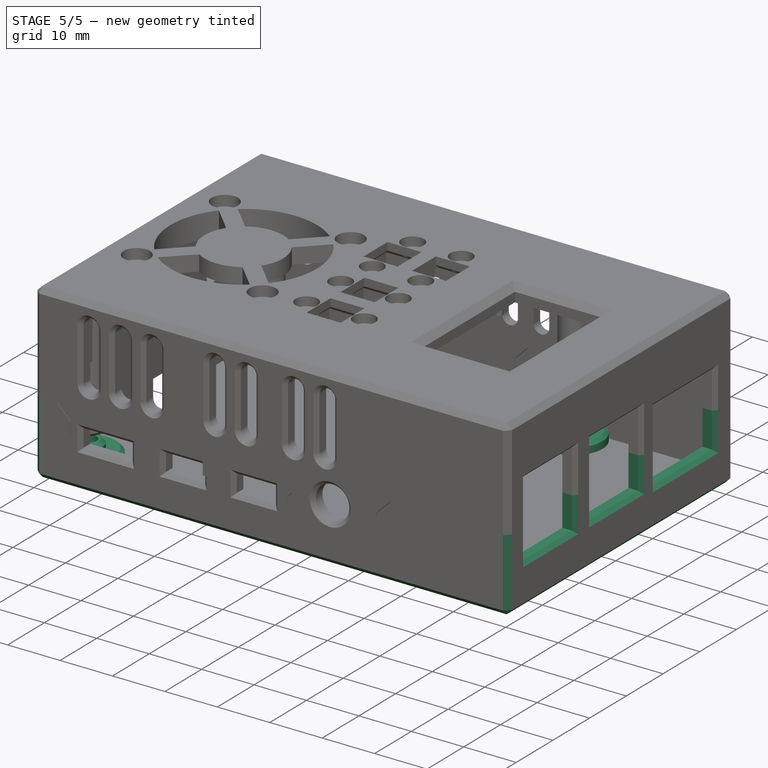
[diagram: stage 5 of 5 — iso view after this stage's code; geometry added in this stage tinted green]
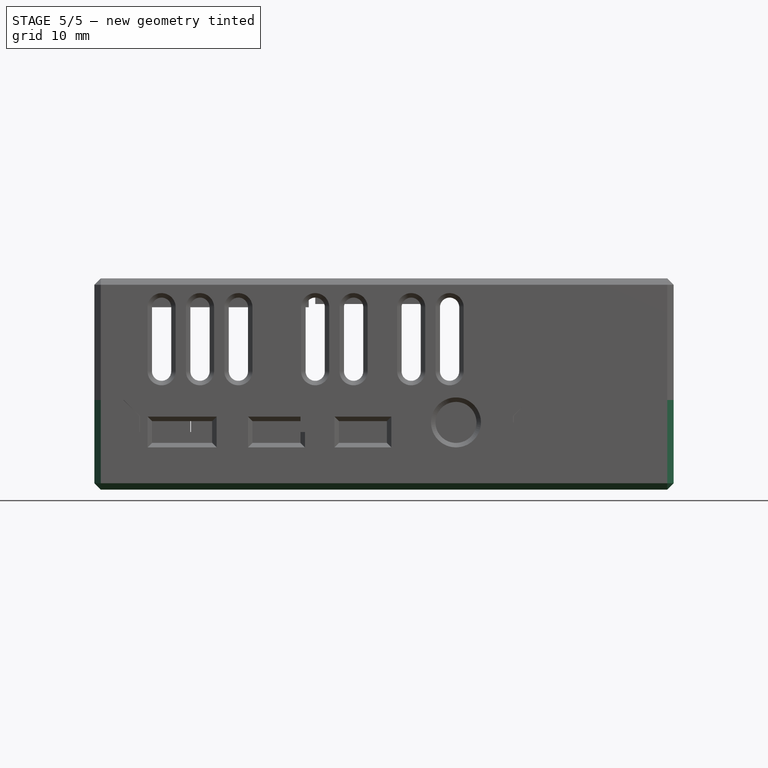
[diagram: stage 5 of 5 — front view after this stage's code; geometry added in this stage tinted green]
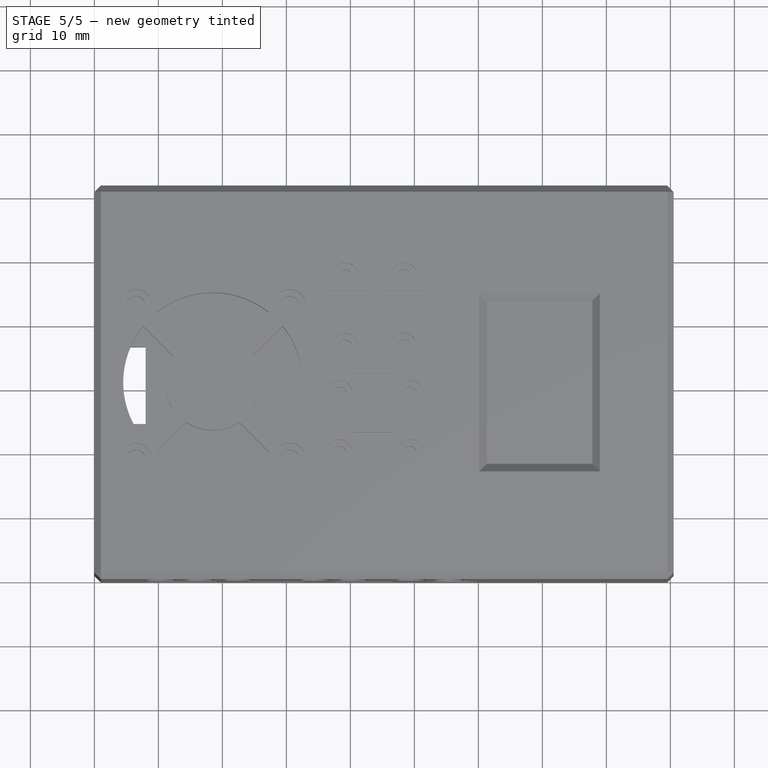
[diagram: stage 5 of 5 — top view after this stage's code; geometry added in this stage tinted green]
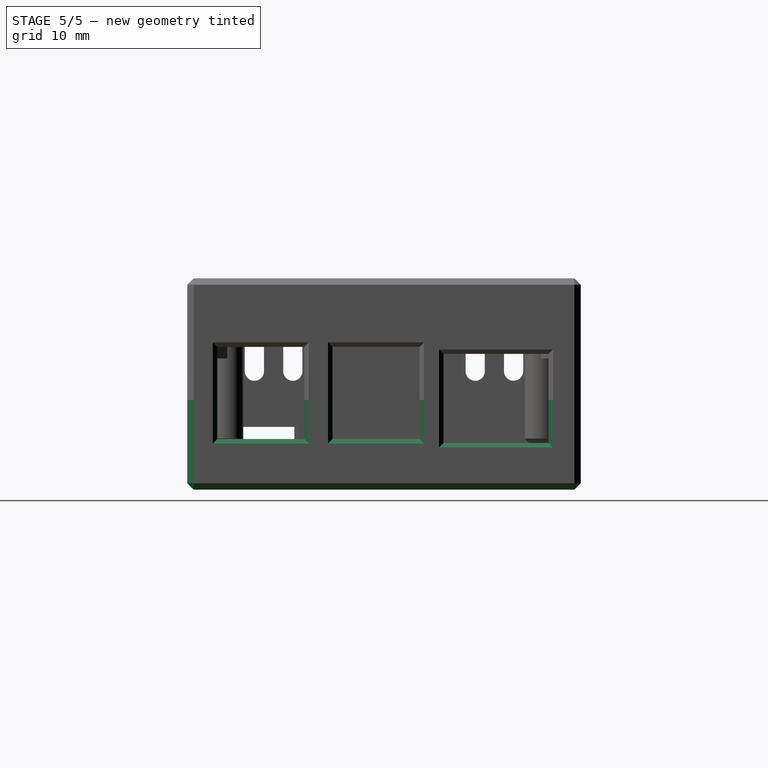
[diagram: stage 5 of 5 — right view after this stage's code; geometry added in this stage tinted green]
FEATURE [Sketcher::SketchObject] Sketch047  label="b_rj45"
  AttachmentOffset = pos=(0,0,90.5) rot=(0,0,1;0rad)
  FullyConstrained = true
  MapMode = 5
  Placement = pos=(90.5,-2.01e-14,2.01e-14) rot=(0.57735,0.57735,0.57735;2.0944rad)
  Support = -> [YZ_Plane003]
  expr: .AttachmentOffset.Base.z = <<dim>>.cl_box_length
  expr: Constraints[24] = <<dim>>.usb2_z
  expr: Constraints[25] = <<dim>>.usb3_z
  expr: Constraints[26] = <<dim>>.rj_45_z
  expr: Constraints[27] = <<dim>>.usb2_x
  expr: Constraints[28] = <<dim>>.usb3_x
  expr: Constraints[29] = <<dim>>.rj45_x
  expr: Constraints[30] = <<dim>>.usb2_width
  expr: Constraints[31] = <<dim>>.usb3_width
  expr: Constraints[32] = <<dim>>.rj45_width
  expr: Constraints[33] = <<dim>>.usb2_height
  expr: Constraints[34] = <<dim>>.usb3_height
  expr: Constraints[35] = <<dim>>.rj45_height
  sketch-geometry (12):
    g0: LineSegment StartX=4.7 StartY=22.3 StartZ=0 EndX=18.3 EndY=22.3 EndZ=0
    g1: LineSegment StartX=18.3 StartY=22.3 StartZ=0 EndX=18.3 EndY=7.9 EndZ=0
    g2: LineSegment StartX=18.3 StartY=7.9 StartZ=0 EndX=4.7 EndY=7.9 EndZ=0
    g3: LineSegment StartX=4.7 StartY=7.9 StartZ=0 EndX=4.7 EndY=22.3 EndZ=0
    g4: LineSegment StartX=22.7 StartY=22.3 StartZ=0 EndX=36.3 EndY=22.3 EndZ=0
    g5: LineSegment StartX=36.3 StartY=22.3 StartZ=0 EndX=36.3 EndY=7.9 EndZ=0
    g6: LineSegment StartX=36.3 StartY=7.9 StartZ=0 EndX=22.7 EndY=7.9 EndZ=0
    g7: LineSegment StartX=22.7 StartY=7.9 StartZ=0 EndX=22.7 EndY=22.3 EndZ=0
    g8: LineSegment StartX=40.05 StartY=21.2 StartZ=0 EndX=56.45 EndY=21.2 EndZ=0
    g9: LineSegment StartX=56.45 StartY=21.2 StartZ=0 EndX=56.45 EndY=7.3 EndZ=0
    g10: LineSegment StartX=56.45 StartY=7.3 StartZ=0 EndX=40.05 EndY=7.3 EndZ=0
    g11: LineSegment StartX=40.05 StartY=7.3 StartZ=0 EndX=40.05 EndY=21.2 EndZ=0
  constraints (36):
    c: Coincident(g0,g1)
    c: Coincident(g1,g2)
    c: Coincident(g2,g3)
    c: Coincident(g3,g0)
    c: Horizontal(g0)
    c: Horizontal(g2)
    c: Vertical(g1)
    c: Vertical(g3)
    c: Coincident(g4,g5)
    c: Coincident(g5,g6)
    c: Coincident(g6,g7)
    c: Coincident(g7,g4)
    c: Horizontal(g4)
    c: Horizontal(g6)
    c: Vertical(g5)
    c: Vertical(g7)
    c: Coincident(g8,g9)
    c: Coincident(g9,g10)
    c: Coincident(g10,g11)
    c: Coincident(g11,g8)
    c: Horizontal(g8)
    c: Horizontal(g10)
    c: Vertical(g9)
    c: Vertical(g11)
    c: DistanceY(g-1,g2) = 7.9
    c: DistanceY(g-1,g6) = 7.9
    c: DistanceY(g-1,g10) = 7.3
    c: DistanceX(g-1,g2) = 4.7
    c: DistanceX(g-1,g6) = 22.7
    c: DistanceX(g-1,g10) = 40.05
    c: DistanceX(g0,g0) = 13.6
    c: DistanceX(g4,g4) = 13.6
    c: DistanceX(g8,g8) = 16.4
    c: DistanceY(g3,g3) = 14.4
    c: DistanceY(g7,g7) = 14.4
    c: DistanceY(g11,g11) = 13.9
FEATURE [PartDesign::Pocket] Pocket002  label="b_rj45_pocket"
  BaseFeature = -> Chamfer002
  Direction = (-1,2e-16,-3e-16)
  Length = 2.5
  Length2 = 5
  Profile = -> Sketch047
  ReferenceAxis = -> Sketch047 [N_Axis]
  Type = 0
  expr: Length = <<dim>>.wall_width
FEATURE [PartDesign::Chamfer] Chamfer003  label="b_rj45_pocket_chamfer"
  Angle = 45
  Base = -> Pocket002 [Edge143,Edge69,Edge150,Edge155,Edge73,Edge162,Edge167,Edge77,Edge174]
  BaseFeature = -> Pocket002
  ChamferType = 0
  FlipDirection = false
  Size = 0.7
  Size2 = 1
  SupportTransform = false
  UseAllEdges = false
  expr: Size = <<dim>>.champfer_plugs
FEATURE [Sketcher::SketchObject] Sketch048  label="b_sd"
  FullyConstrained = true
  MapMode = 5
  Placement = pos=(0,0,0) rot=(0.57735,0.57735,0.57735;2.0944rad)
  Support = -> [YZ_Plane003]
  expr: Constraints[11] = <<dim>>.sd_x
  expr: Constraints[8] = <<dim>>.sd_width
  expr: Constraints[9] = <<dim>>.sd_height
  sketch-geometry (4):
    g0: LineSegment StartX=24.75 StartY=0 StartZ=0 EndX=36.75 EndY=0 EndZ=0
    g1: LineSegment StartX=36.75 StartY=0 StartZ=0 EndX=36.75 EndY=6.65 EndZ=0
    g2: LineSegment StartX=36.75 StartY=6.65 StartZ=0 EndX=24.75 EndY=6.65 EndZ=0
    g3: LineSegment StartX=24.75 StartY=6.65 StartZ=0 EndX=24.75 EndY=0 EndZ=0
  constraints (12):
    c: Coincident(g0,g1)
    c: Coincident(g1,g2)
    c: Coincident(g2,g3)
    c: Coincident(g3,g0)
    c: Horizontal(g0)
    c: Horizontal(g2)
    c: Vertical(g1)
    c: Vertical(g3)
    c: DistanceX(g0,g0) = 12
    c: DistanceY(g1,g1) = 6.65
    c: Horizontal(g0,g-1)
    c: DistanceX(g-1,g2) = 24.75
FEATURE [PartDesign::Pocket] Pocket003  label="b_sd_pocket"
  BaseFeature = -> Chamfer003
  Direction = (-1,2e-16,-3e-16)
  Length = 8
  Length2 = 5
  Profile = -> Sketch048
  ReferenceAxis = -> Sketch048 [N_Axis]
  Reversed = true
  Type = 0
  expr: Length = <<dim>>.sd_length
FEATURE [Sketcher::SketchObject] Sketch049  label="b_led"
  FullyConstrained = true
  MapMode = 5
  Placement = pos=(0,0,0) rot=(0.57735,0.57735,0.57735;2.0944rad)
  Support = -> [YZ_Plane003]
  expr: Constraints[10] = <<dim>>.leds_height
  expr: Constraints[11] = <<dim>>.leds_z
  expr: Constraints[8] = <<dim>>.wall_width + <<dim>>.rpi_space + <<dim>>.leds_y
  expr: Constraints[9] = <<dim>>.leds_width
  sketch-geometry (4):
    g0: LineSegment StartX=16.75 StartY=9.8 StartZ=0 EndX=8.75 EndY=9.8 EndZ=0
    g1: LineSegment StartX=8.75 StartY=9.8 StartZ=0 EndX=8.75 EndY=7.3 EndZ=0
    g2: LineSegment StartX=8.75 StartY=7.3 StartZ=0 EndX=16.75 EndY=7.3 EndZ=0
    g3: LineSegment StartX=16.75 StartY=7.3 StartZ=0 EndX=16.75 EndY=9.8 EndZ=0
  constraints (12):
    c: Coincident(g0,g1)
    c: Coincident(g1,g2)
    c: Coincident(g2,g3)
    c: Coincident(g3,g0)
    c: Horizontal(g0)
    c: Horizontal(g2)
    c: Vertical(g1)
    c: Vertical(g3)
    c: DistanceX(g-1,g1) = 8.75
    c: DistanceX(g2,g2) = 8
    c: DistanceY(g1,g1) = 2.5
    c: DistanceY(g-1,g1) = 7.3
FEATURE [PartDesign::Pocket] Pocket004  label="b_led_pocket"
  BaseFeature = -> Pocket003
  Direction = (-1,2e-16,-3e-16)
  Length = 5
  Length2 = 5
  Profile = -> Sketch049
  ReferenceAxis = -> Sketch049 [N_Axis]
  Reversed = true
  Type = 0
FEATURE [PartDesign::Chamfer] Chamfer005  label="b_led_pocket_chamfer"
  Angle = 45
  Base = -> Pocket004 [Edge107,Edge105,Edge109,Edge111,Edge110,Edge244,Edge106]
  BaseFeature = -> Pocket004
  ChamferType = 0
  FlipDirection = false
  Size = 0.7
  Size2 = 1
  SupportTransform = false
  UseAllEdges = false
  expr: Size = <<dim>>.champfer_plugs
FEATURE [PartDesign::Chamfer] Chamfer006  label="b_body_chamfer"
  Angle = 45
  Base = -> Chamfer005 [Edge9,Edge107,Edge160,Edge7,Edge5,Edge1,Edge3,Edge76,Edge72]
  BaseFeature = -> Chamfer005
  ChamferType = 0
  FlipDirection = false
  Size = 1
  Size2 = 1
  SupportTransform = false
  UseAllEdges = false
  expr: Size = <<dim>>.chamfer_body
FEATURE [Sketcher::SketchObject] Sketch050  label="b_socket1"
  AttachmentOffset = pos=(0,0,2.5) rot=(0,0,1;0rad)
  FullyConstrained = true
  MapMode = 5
  Placement = pos=(0,0,2.5) rot=(0,0,1;0rad)
  Support = -> [XY_Plane003]
  expr: .AttachmentOffset.Base.z = <<dim>>.cl_bottom_ground_inner
  expr: Constraints[10] = <<dim>>.rpi_holes_dist_y
  expr: Constraints[11] = <<dim>>.socket1_diam
  expr: Constraints[7] = <<dim>>.wall_width + <<dim>>.rpi_space + <<dim>>.rpi_dist_hole_border
  expr: Constraints[8] = <<dim>>.wall_width + <<dim>>.rpi_space + <<dim>>.rpi_dist_hole_border
  expr: Constraints[9] = <<dim>>.rpi_holes_dist_x
  sketch-geometry (4):
    g0: Circle CenterX=6.25 CenterY=55.25 CenterZ=0 NormalX=0 NormalY=0 NormalZ=1 AngleXU=0 Radius=5.5
    g1: Circle CenterX=6.25 CenterY=6.25 CenterZ=0 NormalX=0 NormalY=0 NormalZ=1 AngleXU=0 Radius=5.5
    g2: Circle CenterX=64.25 CenterY=55.25 CenterZ=0 NormalX=0 NormalY=0 NormalZ=1 AngleXU=0 Radius=5.5
    g3: Circle CenterX=64.25 CenterY=6.25 CenterZ=0 NormalX=0 NormalY=0 NormalZ=1 AngleXU=0 Radius=5.5
  constraints (12):
    c: Equal(g0,g2)
    c: Equal(g0,g3)
    c: Equal(g0,g1)
    c: Horizontal(g0,g2)
    c: Vertical(g0,g1)
    c: Vertical(g2,g3)
    c: Horizontal(g1,g3)
    c: DistanceX(g-1,g1) = 6.25
    c: DistanceY(g-1,g1) = 6.25
    c: DistanceX(g1,g3) = 58
    c: DistanceY(g1,g0) = 49
    c: Diameter(g0) = 11
FEATURE [PartDesign::Pad] Pad024  label="b_socket1_pad"
  BaseFeature = -> Chamfer006
  Direction = (0,0,1)
  Length = 2
  Length2 = 10
  Profile = -> Sketch050
  ReferenceAxis = -> Sketch050 [N_Axis]
  Type = 0
  expr: Length = <<dim>>.bottom_socket1_height
FEATURE [PartDesign::Chamfer] Chamfer007  label="b_socket1_chamfer"
  Angle = 45
  Base = -> Pad024 [Edge177,Edge131,Edge172,Edge175]
  BaseFeature = -> Pad024
  ChamferType = 0
  FlipDirection = false
  Size = 0.675
  Size2 = 1
  SupportTransform = false
  UseAllEdges = false
  expr: Size = <<dim>>.socket_chamfer
FEATURE [Sketcher::SketchObject] Sketch051  label="b_socket2"
  AttachmentOffset = pos=(0,0,4.5) rot=(0,0,1;0rad)
  FullyConstrained = true
  MapMode = 5
  Placement = pos=(0,0,4.5) rot=(0,0,1;0rad)
  Support = -> [XY_Plane003]
  expr: .AttachmentOffset.Base.z = <<dim>>.cl_bottom_socket1
  expr: Constraints[10] = Sketch050.Constraints[10]
  expr: Constraints[11] = <<dim>>.socket2_diam
  expr: Constraints[7] = Sketch050.Constraints[7]
  expr: Constraints[8] = Sketch050.Constraints[8]
  expr: Constraints[9] = Sketch050.Constraints[9]
  sketch-geometry (4):
    g0: Circle CenterX=6.25 CenterY=55.25 CenterZ=0 NormalX=0 NormalY=0 NormalZ=1 AngleXU=0 Radius=2.5
    g1: Circle CenterX=6.25 CenterY=6.25 CenterZ=0 NormalX=0 NormalY=0 NormalZ=1 AngleXU=0 Radius=2.5
    g2: Circle CenterX=64.25 CenterY=55.25 CenterZ=0 NormalX=0 NormalY=0 NormalZ=1 AngleXU=0 Radius=2.5
    g3: Circle CenterX=64.25 CenterY=6.25 CenterZ=0 NormalX=0 NormalY=0 NormalZ=1 AngleXU=0 Radius=2.5
  constraints (12):
    c: Equal(g0,g2)
    c: Equal(g0,g3)
    c: Equal(g0,g1)
    c: Horizontal(g0,g2)
    c: Vertical(g0,g1)
    c: Vertical(g2,g3)
    c: Horizontal(g1,g3)
    c: DistanceX(g-1,g1) = 6.25
    c: DistanceY(g-1,g1) = 6.25
    c: DistanceX(g1,g3) = 58
    c: DistanceY(g1,g0) = 49
    c: Diameter(g0) = 5
FEATURE [PartDesign::Pad] Pad025  label="b_socket2_pad"
  BaseFeature = -> Chamfer007
  Direction = (0,0,1)
  Length = 1.5
  Length2 = 10
  Profile = -> Sketch051
  ReferenceAxis = -> Sketch051 [N_Axis]
  Type = 0
  expr: Length = <<dim>>.bottom_socket2_height
FEATURE [PartDesign::Chamfer] Chamfer008  label="b_socket2_chamfer"
  Angle = 45
  Base = -> Pad025 [Edge244,Edge114,Edge341,Edge242]
  BaseFeature = -> Pad025
  ChamferType = 0
  FlipDirection = false
  Size = 0.675
  Size2 = 1
  SupportTransform = false
  UseAllEdges = false
  expr: Size = <<dim>>.socket_chamfer
FEATURE [Sketcher::SketchObject] Sketch052  label="b_socket_drills"
  AttachmentOffset = pos=(0,0,6) rot=(0,0,1;0rad)
  FullyConstrained = true
  MapMode = 5
  Placement = pos=(0,0,6) rot=(0,0,1;0rad)
  Support = -> [XY_Plane003]
  expr: .AttachmentOffset.Base.z = <<dim>>.cl_bottom_socket2
  expr: Constraints[10] = Sketch050.Constraints[10]
  expr: Constraints[11] = <<dim>>.socket2_drill_diam
  expr: Constraints[7] = Sketch050.Constraints[7]
  expr: Constraints[8] = Sketch050.Constraints[8]
  expr: Constraints[9] = Sketch050.Constraints[9]
  sketch-geometry (4):
    g0: Circle CenterX=6.25 CenterY=55.25 CenterZ=0 NormalX=0 NormalY=0 NormalZ=1 AngleXU=0 Radius=1.35
    g1: Circle CenterX=6.25 CenterY=6.25 CenterZ=0 NormalX=0 NormalY=0 NormalZ=1 AngleXU=0 Radius=1.35
    g2: Circle CenterX=64.25 CenterY=55.25 CenterZ=0 NormalX=0 NormalY=0 NormalZ=1 AngleXU=0 Radius=1.35
    g3: Circle CenterX=64.25 CenterY=6.25 CenterZ=0 NormalX=0 NormalY=0 NormalZ=1 AngleXU=0 Radius=1.35
  constraints (12):
    c: Equal(g0,g2)
    c: Equal(g0,g3)
    c: Equal(g0,g1)
    c: Horizontal(g0,g2)
    c: Vertical(g0,g1)
    c: Vertical(g2,g3)
    c: Horizontal(g1,g3)
    c: DistanceX(g-1,g1) = 6.25
    c: DistanceY(g-1,g1) = 6.25
    c: DistanceX(g1,g3) = 58
    c: DistanceY(g1,g0) = 49
    c: Diameter(g0) = 2.7
FEATURE [PartDesign::Pocket] Pocket005  label="b_socket_drills_pocket"
  BaseFeature = -> Chamfer008
  Direction = (0,0,-1)
  Length = 5
  Length2 = 5
  Profile = -> Sketch052
  ReferenceAxis = -> Sketch052 [N_Axis]
  Type = 1
FEATURE [Sketcher::SketchObject] Sketch053  label="b_drills_sunk"
  FullyConstrained = true
  MapMode = 5
  Support = -> [XY_Plane003]
  expr: Constraints[10] = Sketch050.Constraints[10]
  expr: Constraints[11] = Spreadsheet.sunk_case_diam
  expr: Constraints[7] = Sketch050.Constraints[7]
  expr: Constraints[8] = Sketch050.Constraints[8]
  expr: Constraints[9] = Sketch050.Constraints[9]
  sketch-geometry (4):
    g0: Circle CenterX=6.25 CenterY=55.25 CenterZ=0 NormalX=0 NormalY=0 NormalZ=1 AngleXU=0 Radius=2.5
    g1: Circle CenterX=6.25 CenterY=6.25 CenterZ=0 NormalX=0 NormalY=0 NormalZ=1 AngleXU=0 Radius=2.5
    g2: Circle CenterX=64.25 CenterY=55.25 CenterZ=0 NormalX=0 NormalY=0 NormalZ=1 AngleXU=0 Radius=2.5
    g3: Circle CenterX=64.25 CenterY=6.25 CenterZ=0 NormalX=0 NormalY=0 NormalZ=1 AngleXU=0 Radius=2.5
  constraints (12):
    c: Equal(g0,g2)
    c: Equal(g0,g3)
    c: Equal(g0,g1)
    c: Horizontal(g0,g2)
    c: Vertical(g0,g1)
    c: Vertical(g2,g3)
    c: Horizontal(g1,g3)
    c: DistanceX(g-1,g1) = 6.25
    c: DistanceY(g-1,g1) = 6.25
    c: DistanceX(g1,g3) = 58
    c: DistanceY(g1,g0) = 49
    c: Diameter(g0) = 5
FEATURE [PartDesign::Pocket] Pocket006  label="b_socket_drills_sunk_pocket"
  BaseFeature = -> Pocket005
  Direction = (0,0,-1)
  Length = 2
  Length2 = 5
  Profile = -> Sketch053
  ReferenceAxis = -> Sketch053 [N_Axis]
  Reversed = true
  Type = 0
  expr: Length = Spreadsheet.sunk_case_height
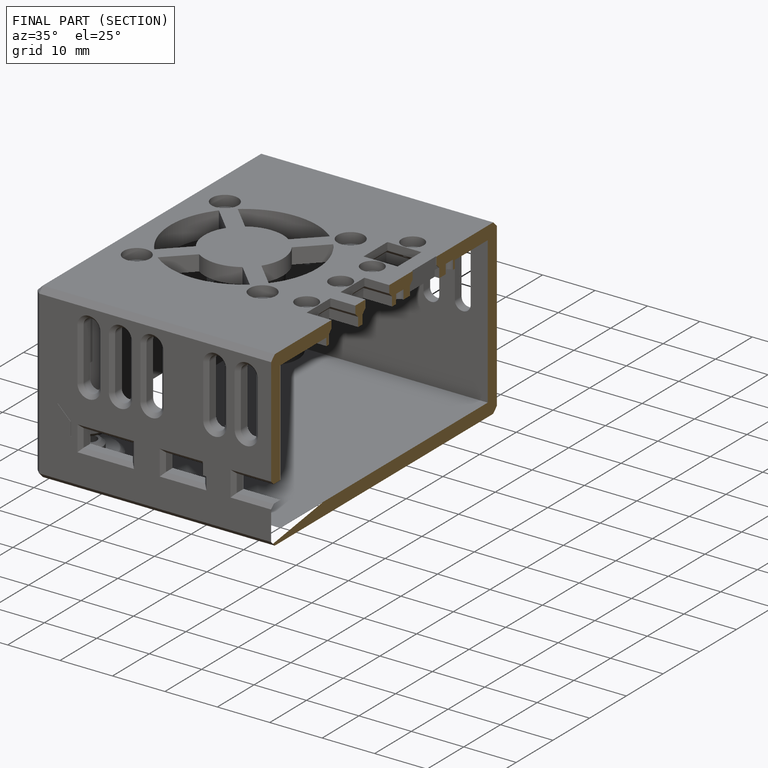
[diagram: finished part — half-section view (interior)]
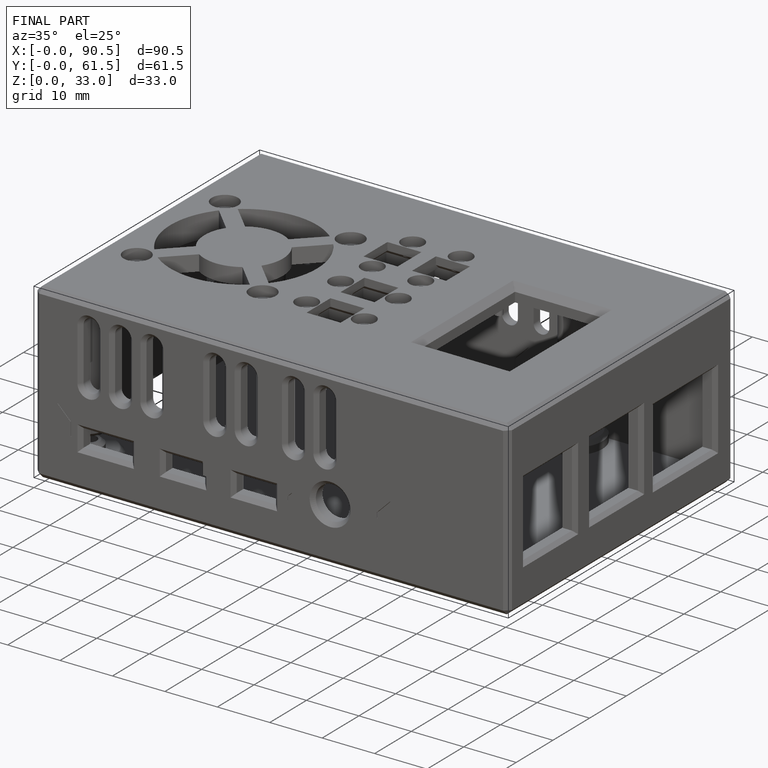
[diagram: finished part — iso view with bounding-box wireframe]
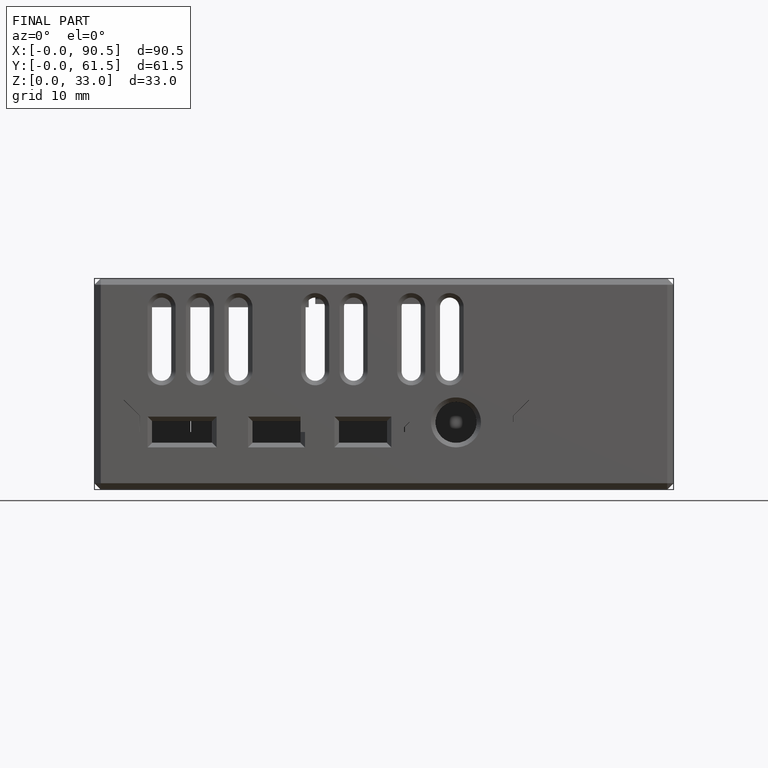
[diagram: finished part — front view with bounding-box wireframe]
